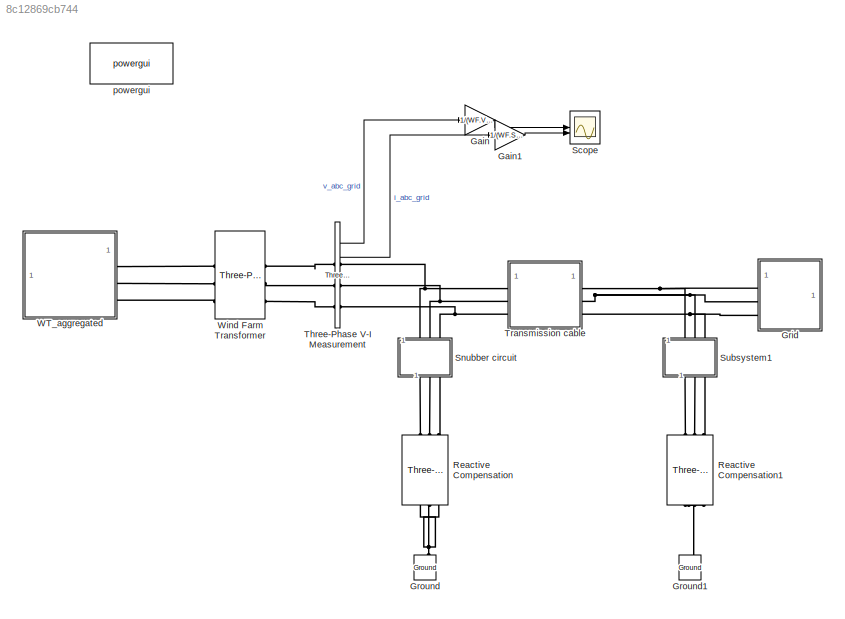
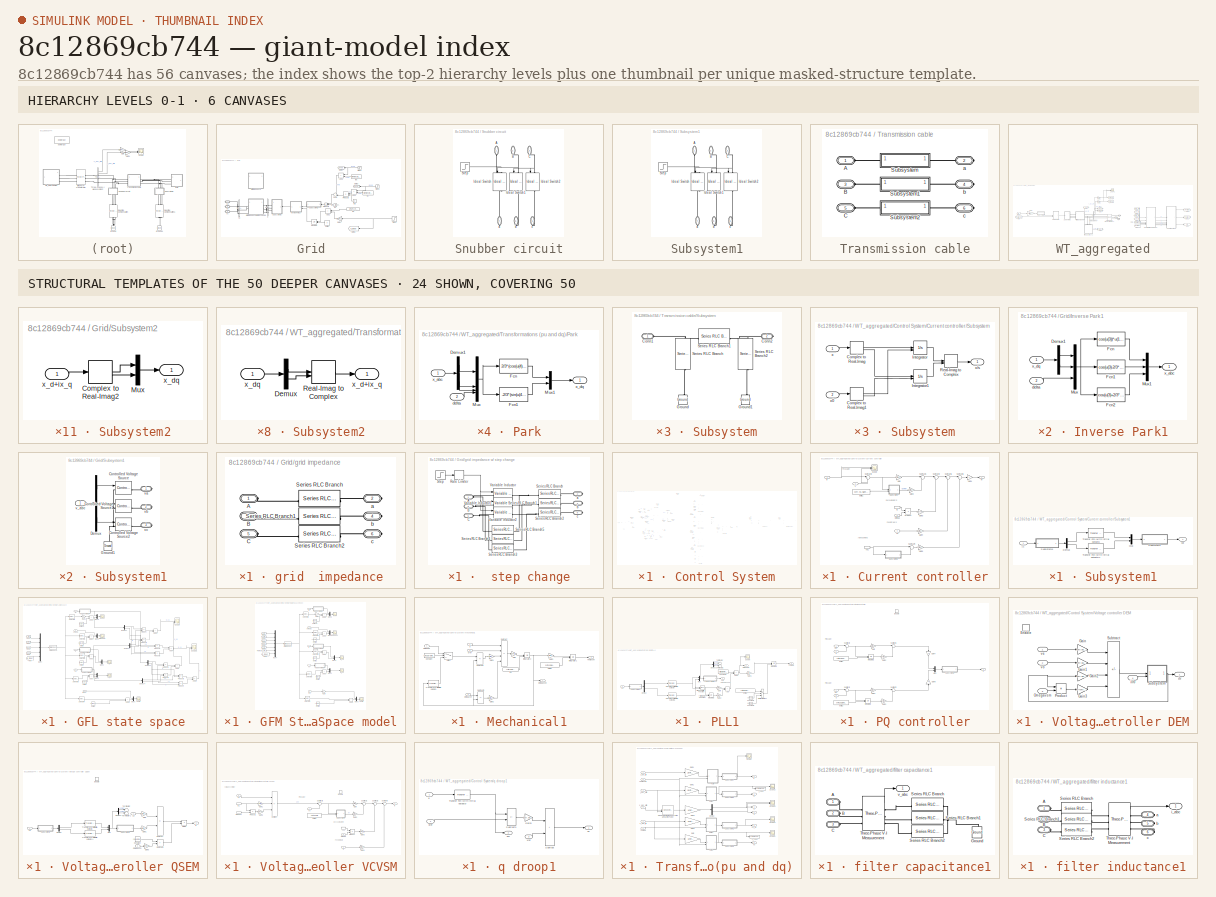
[diagram: thumbnail index - top-2 hierarchy levels (6 canvases) + 24 structural-template representatives of the remaining 50 canvases]
MODEL slx_8c12869cb744
KIND model
CONFIG AbsTol = auto
CONFIG EnableMultiTasking = off
CONFIG FixedStep = auto
CONFIG MaxStep = auto
CONFIG MinStep = auto
CONFIG RelTol = 1e-3
CONFIG SampleTimeConstraint = Unconstrained
CONFIG SolverName = VariableStepAuto
CONFIG StartTime = 0
CONFIG StopTime = 1
BLOCK [Gain] Gain
  Gain = 1/(WF.V_trans*sqrt(2/3))
BLOCK [Gain] Gain1
  Gain = 1/(WF.Sb_WF/(WF.V_trans*sqrt(3/2)))
BLOCK [SubSystem] Grid
  NameLocation = top
BLOCK [Reference] Grid/1  REF=spsThreePhaseVIMeasurementLib/Three-Phase
V-I Measurement
  SourceBlock = spsThreePhaseVIMeasurementLib/Three-Phase\nV-I Measurement
  SourceType = Three-Phase VI Measurement
BLOCK [Reference] Grid/40  REF=spsThreePhaseVIMeasurementLib/Three-Phase
V-I Measurement
  SourceBlock = spsThreePhaseVIMeasurementLib/Three-Phase\nV-I Measurement
  SourceType = Three-Phase VI Measurement
BLOCK [Sum] Grid/Add2
  IconShape = rectangular
BLOCK [Sum] Grid/Add4
  IconShape = rectangular
  NameLocation = top
BLOCK [Sum] Grid/Add5
  IconShape = rectangular
  NameLocation = top
BLOCK [Gain] Grid/Gain1
  Gain = WF.WT.cvtr_agg.pu.Omegab
BLOCK [Goto] Grid/Goto1
  Commented = on
  GotoTag = d_input
  NameLocation = top
  TagVisibility = global
BLOCK [Goto] Grid/Goto3
  Commented = on
  GotoTag = dvnq
  NameLocation = top
  TagVisibility = global
BLOCK [Goto] Grid/Goto4
  Commented = on
  GotoTag = dvnd
  NameLocation = top
  TagVisibility = global
BLOCK [Integrator] Grid/Integrator2
  InitialConditionSource = external
BLOCK [SubSystem] Grid/Inverse Park1
BLOCK [Demux] Grid/Inverse Park1/Demux1
  Outputs = 2
BLOCK [Fcn] Grid/Inverse Park1/Fcn
  Expr = cos(u(3))*u(1)-sin(u(3))*u(2)
BLOCK [Fcn] Grid/Inverse Park1/Fcn1
  Expr = cos(u(3)-2/3*pi)*u(1)-sin(u(3)-2/3*pi)*u(2)
BLOCK [Fcn] Grid/Inverse Park1/Fcn2
  Expr = cos(u(3)+2/3*pi)*u(1)-sin(u(3)+2/3*pi)*u(2)
BLOCK [Mux] Grid/Inverse Park1/Mux
  DisplayOption = bar
  Inputs = 3
BLOCK [Mux] Grid/Inverse Park1/Mux1
  DisplayOption = bar
  Inputs = 3
BLOCK [Inport] Grid/Inverse Park1/delta
  Port = 2
BLOCK [Outport] Grid/Inverse Park1/x_abc
BLOCK [Inport] Grid/Inverse Park1/x_dq
BLOCK [Product] Grid/Product2
  NameLocation = top
BLOCK [Product] Grid/Product3
  NameLocation = top
BLOCK [Step] Grid/Step1
  After = 1e-4
  Commented = on
  NameLocation = top
  SampleTime = 0
  Time = 0.1
BLOCK [Step] Grid/Step2
  After = 0.01
  Commented = on
  NameLocation = top
  SampleTime = 0
  Time = 0.1
BLOCK [Step] Grid/Step3
  After = 0.01
  Commented = on
  NameLocation = top
  SampleTime = 0
  Time = 0.1
BLOCK [SubSystem] Grid/Subsystem1
BLOCK [Reference] Grid/Subsystem1/Controlled Voltage Source  REF=spsControlledVoltageSourceLib/Controlled Voltage Source
  SourceBlock = spsControlledVoltageSourceLib/Controlled Voltage Source
  SourceType = Controlled Voltage Source
BLOCK [Reference] Grid/Subsystem1/Controlled Voltage Source1  REF=spsControlledVoltageSourceLib/Controlled Voltage Source
  SourceBlock = spsControlledVoltageSourceLib/Controlled Voltage Source
  SourceType = Controlled Voltage Source
BLOCK [Reference] Grid/Subsystem1/Controlled Voltage Source2  REF=spsControlledVoltageSourceLib/Controlled Voltage Source
  SourceBlock = spsControlledVoltageSourceLib/Controlled Voltage Source
  SourceType = Controlled Voltage Source
BLOCK [Demux] Grid/Subsystem1/Demux
  Outputs = 3
BLOCK [Reference] Grid/Subsystem1/Ground1  REF=spsGroundLib/Ground
  NameLocation = right
  SourceBlock = spsGroundLib/Ground
  SourceType = Ground
BLOCK [Inport] Grid/Subsystem1/v_abc
BLOCK [PMIOPort] Grid/Subsystem1/va
  Side = Right
BLOCK [PMIOPort] Grid/Subsystem1/vb
  Port = 2
  Side = Right
BLOCK [PMIOPort] Grid/Subsystem1/vc
  Port = 3
  Side = Right
BLOCK [SubSystem] Grid/Subsystem2
BLOCK [ComplexToRealImag] Grid/Subsystem2/Complex to Real-Imag2
BLOCK [Mux] Grid/Subsystem2/Mux
  DisplayOption = bar
  Inputs = 2
BLOCK [Inport] Grid/Subsystem2/x_d+ix_q
BLOCK [Outport] Grid/Subsystem2/x_dq
BLOCK [Sum] Grid/Sum2
  Inputs = ++|
  NameLocation = top
BLOCK [Constant] Grid/delta1
  Value = 0
BLOCK [SubSystem] Grid/grid  impedance
  Commented = on
BLOCK [PMIOPort] Grid/grid  impedance/A
  Side = Left
BLOCK [PMIOPort] Grid/grid  impedance/B
  Port = 3
  Side = Left
BLOCK [PMIOPort] Grid/grid  impedance/C
  Port = 5
  Side = Left
BLOCK [Reference] Grid/grid  impedance/Series RLC Branch  REF=spsSeriesRLCBranchLib/Series RLC Branch
  SourceBlock = spsSeriesRLCBranchLib/Series RLC Branch
  SourceType = Series RLC Branch
BLOCK [Reference] Grid/grid  impedance/Series RLC Branch1  REF=spsSeriesRLCBranchLib/Series RLC Branch
  SourceBlock = spsSeriesRLCBranchLib/Series RLC Branch
  SourceType = Series RLC Branch
BLOCK [Reference] Grid/grid  impedance/Series RLC Branch2  REF=spsSeriesRLCBranchLib/Series RLC Branch
  SourceBlock = spsSeriesRLCBranchLib/Series RLC Branch
  SourceType = Series RLC Branch
BLOCK [PMIOPort] Grid/grid  impedance/a
  Port = 2
  Side = Right
BLOCK [PMIOPort] Grid/grid  impedance/b
  Port = 4
  Side = Right
BLOCK [PMIOPort] Grid/grid  impedance/c
  Port = 6
  Side = Right
BLOCK [SubSystem] Grid/grid impedance w// step change
BLOCK [PMIOPort] Grid/grid impedance w// step change/A
  Side = Left
BLOCK [PMIOPort] Grid/grid impedance w// step change/B
  Port = 3
  Side = Left
BLOCK [PMIOPort] Grid/grid impedance w// step change/C
  Port = 5
  Side = Left
BLOCK [RateLimiter] Grid/grid impedance w// step change/Rate Limiter
  SampleTimeMode = inherited
BLOCK [Reference] Grid/grid impedance w// step change/Series RLC Branch  REF=spsSeriesRLCBranchLib/Series RLC Branch
  SourceBlock = spsSeriesRLCBranchLib/Series RLC Branch
  SourceType = Series RLC Branch
BLOCK [Reference] Grid/grid impedance w// step change/Series RLC Branch1  REF=spsSeriesRLCBranchLib/Series RLC Branch
  SourceBlock = spsSeriesRLCBranchLib/Series RLC Branch
  SourceType = Series RLC Branch
BLOCK [Reference] Grid/grid impedance w// step change/Series RLC Branch2  REF=spsSeriesRLCBranchLib/Series RLC Branch
  SourceBlock = spsSeriesRLCBranchLib/Series RLC Branch
  SourceType = Series RLC Branch
BLOCK [Reference] Grid/grid impedance w// step change/Series RLC Branch3  REF=spsSeriesRLCBranchLib/Series RLC Branch
  SourceBlock = spsSeriesRLCBranchLib/Series RLC Branch
  SourceType = Series RLC Branch
BLOCK [Reference] Grid/grid impedance w// step change/Series RLC Branch4  REF=spsSeriesRLCBranchLib/Series RLC Branch
  SourceBlock = spsSeriesRLCBranchLib/Series RLC Branch
  SourceType = Series RLC Branch
BLOCK [Reference] Grid/grid impedance w// step change/Series RLC Branch5  REF=spsSeriesRLCBranchLib/Series RLC Branch
  SourceBlock = spsSeriesRLCBranchLib/Series RLC Branch
  SourceType = Series RLC Branch
BLOCK [Step] Grid/grid impedance w// step change/Step
  After = WF.Trans.lg*(WF.Imp.Z_b_G/(2*pi*WF.f1))
  Before = WF.Trans.lg*0.5*(WF.Imp.Z_b_G/(2*pi*WF.f1))
  SampleTime = 0
  Time = 0.2
BLOCK [Reference] Grid/grid impedance w// step change/Variable Inductor  REF=spsVariableInductorLib/Variable Inductor
  LibrarySourceBlock = sps_lib/Passives/Variable Inductor
  SourceBlock = spsVariableInductorLib/Variable Inductor
  SourceType = Variable Inductor
BLOCK [Reference] Grid/grid impedance w// step change/Variable Inductor1  REF=spsVariableInductorLib/Variable Inductor
  LibrarySourceBlock = sps_lib/Passives/Variable Inductor
  SourceBlock = spsVariableInductorLib/Variable Inductor
  SourceType = Variable Inductor
BLOCK [Reference] Grid/grid impedance w// step change/Variable Inductor2  REF=spsVariableInductorLib/Variable Inductor
  LibrarySourceBlock = sps_lib/Passives/Variable Inductor
  SourceBlock = spsVariableInductorLib/Variable Inductor
  SourceType = Variable Inductor
BLOCK [PMIOPort] Grid/grid impedance w// step change/a
  Port = 2
  Side = Right
BLOCK [PMIOPort] Grid/grid impedance w// step change/b
  Port = 4
  Side = Right
BLOCK [PMIOPort] Grid/grid impedance w// step change/c
  Port = 6
  Side = Right
BLOCK [Constant] Grid/io5
  Value = WF.WT.cvtr_agg.ss.vnd0
BLOCK [Constant] Grid/io6
  Value = WF.V_trans*sqrt(2/3)
BLOCK [Constant] Grid/io7
  Value = WF.WT.cvtr_agg.ss.vnq0
BLOCK [Constant] Grid/io8
  Value = 1i
BLOCK [PMIOPort] Grid/va
  Side = Right
BLOCK [PMIOPort] Grid/vb
  Port = 2
  Side = Right
BLOCK [PMIOPort] Grid/vc
  Port = 3
  Side = Right
BLOCK [Constant] Grid/w1
  Value = WF.WT.cvtr_agg.parameters.Omegag*WF.WT.cvtr_agg.pu.Omegab
BLOCK [Reference] Ground  REF=spsGroundLib/Ground
  LibrarySourceBlock = sps_lib/Utilities/Ground
  NameLocation = right
  SourceBlock = spsGroundLib/Ground
  SourceType = Ground
BLOCK [Reference] Ground1  REF=spsGroundLib/Ground
  LibrarySourceBlock = sps_lib/Utilities/Ground
  NameLocation = right
  SourceBlock = spsGroundLib/Ground
  SourceType = Ground
BLOCK [Reference] Reactive Compensation  REF=spsThreePhaseSeriesRLCBranchLib/Three-Phase
Series RLC Branch
  AttributesFormatString = \n
  LibrarySourceBlock = sps_lib/Passives/Three-Phase\nSeries RLC Branch
  NameLocation = right
  SourceBlock = spsThreePhaseSeriesRLCBranchLib/Three-Phase\nSeries RLC Branch
  SourceType = Three-Phase Series RLC Branch
BLOCK [Reference] Reactive Compensation1  REF=spsThreePhaseSeriesRLCBranchLib/Three-Phase
Series RLC Branch
  AttributesFormatString = \n
  LibrarySourceBlock = sps_lib/Passives/Three-Phase\nSeries RLC Branch
  NameLocation = right
  SourceBlock = spsThreePhaseSeriesRLCBranchLib/Three-Phase\nSeries RLC Branch
  SourceType = Three-Phase Series RLC Branch
BLOCK [Scope] Scope
  Floating = off
  NumInputPorts = 2
  ScopeSpecificationString = Simulink.scopes.TimeScopeBlockCfg('CurrentConfiguration', extmgr.ConfigurationSet(extmgr.Configuration('Core','General UI',true,'FigureColor',[1 1 1]),extmgr.Configuration('Core','Source UI',true),extmgr.Configuration('Sources','WiredSimulink',true,'DataLoggingVariableName','ScopeData1'),extmgr.Configuration('Visuals','Time Domain',true,'SerializedDisplays',{struct('MinYLimReal','-1.76808','MaxYLi...<+2845ch>
BLOCK [SubSystem] Snubber circuit
  NameLocation = left
BLOCK [PMIOPort] Snubber circuit/  a
  NameLocation = left
  Port = 4
  Side = Right
BLOCK [PMIOPort] Snubber circuit/  b
  NameLocation = left
  Port = 5
  Side = Right
BLOCK [PMIOPort] Snubber circuit/  c
  NameLocation = left
  Port = 6
  Side = Right
BLOCK [PMIOPort] Snubber circuit/ A
  NameLocation = left
  Side = Left
BLOCK [PMIOPort] Snubber circuit/ B
  NameLocation = left
  Port = 2
  Side = Left
BLOCK [PMIOPort] Snubber circuit/ C
  NameLocation = left
  Port = 3
  Side = Left
BLOCK [Reference] Snubber circuit/Ideal Switch  REF=spsIdealSwitchLib/Ideal Switch
  LibrarySourceBlock = sps_lib/Power Electronics/Ideal Switch
  NameLocation = left
  SourceBlock = spsIdealSwitchLib/Ideal Switch
  SourceType = Ideal Switch
BLOCK [Reference] Snubber circuit/Ideal Switch1  REF=spsIdealSwitchLib/Ideal Switch
  LibrarySourceBlock = sps_lib/Power Electronics/Ideal Switch
  NameLocation = left
  SourceBlock = spsIdealSwitchLib/Ideal Switch
  SourceType = Ideal Switch
BLOCK [Reference] Snubber circuit/Ideal Switch2  REF=spsIdealSwitchLib/Ideal Switch
  LibrarySourceBlock = sps_lib/Power Electronics/Ideal Switch
  NameLocation = left
  SourceBlock = spsIdealSwitchLib/Ideal Switch
  SourceType = Ideal Switch
BLOCK [Step] Snubber circuit/Step
  SampleTime = 0
  Time = 0.5
BLOCK [SubSystem] Subsystem1
  NameLocation = left
BLOCK [PMIOPort] Subsystem1/  a
  NameLocation = left
  Port = 4
  Side = Right
BLOCK [PMIOPort] Subsystem1/  b
  NameLocation = left
  Port = 5
  Side = Right
BLOCK [PMIOPort] Subsystem1/  c
  NameLocation = left
  Port = 6
  Side = Right
BLOCK [PMIOPort] Subsystem1/ A
  NameLocation = left
  Side = Left
BLOCK [PMIOPort] Subsystem1/ B
  NameLocation = left
  Port = 2
  Side = Left
BLOCK [PMIOPort] Subsystem1/ C
  NameLocation = left
  Port = 3
  Side = Left
BLOCK [Reference] Subsystem1/Ideal Switch  REF=spsIdealSwitchLib/Ideal Switch
  LibrarySourceBlock = sps_lib/Power Electronics/Ideal Switch
  NameLocation = left
  SourceBlock = spsIdealSwitchLib/Ideal Switch
  SourceType = Ideal Switch
BLOCK [Reference] Subsystem1/Ideal Switch1  REF=spsIdealSwitchLib/Ideal Switch
  LibrarySourceBlock = sps_lib/Power Electronics/Ideal Switch
  NameLocation = left
  SourceBlock = spsIdealSwitchLib/Ideal Switch
  SourceType = Ideal Switch
BLOCK [Reference] Subsystem1/Ideal Switch2  REF=spsIdealSwitchLib/Ideal Switch
  LibrarySourceBlock = sps_lib/Power Electronics/Ideal Switch
  NameLocation = left
  SourceBlock = spsIdealSwitchLib/Ideal Switch
  SourceType = Ideal Switch
BLOCK [Step] Subsystem1/Step
  SampleTime = 0
  Time = 0.5
BLOCK [Reference] Three-Phase V-I Measurement  REF=spsThreePhaseVIMeasurementLib/Three-Phase
V-I Measurement
  SourceBlock = spsThreePhaseVIMeasurementLib/Three-Phase\nV-I Measurement
  SourceType = Three-Phase VI Measurement
BLOCK [SubSystem] Transmission cable
BLOCK [PMIOPort] Transmission cable/A
  Side = Left
BLOCK [PMIOPort] Transmission cable/B
  Port = 3
  Side = Left
BLOCK [PMIOPort] Transmission cable/C
  Port = 5
  Side = Left
BLOCK [SubSystem] Transmission cable/Subsystem
BLOCK [PMIOPort] Transmission cable/Subsystem/Conn1
  Side = Left
BLOCK [PMIOPort] Transmission cable/Subsystem/Conn2
  NameLocation = top
  Port = 2
  Side = Right
BLOCK [Reference] Transmission cable/Subsystem/Ground  REF=spsGroundLib/Ground
  LibrarySourceBlock = sps_lib/Utilities/Ground
  NameLocation = right
  SourceBlock = spsGroundLib/Ground
  SourceType = Ground
BLOCK [Reference] Transmission cable/Subsystem/Ground1  REF=spsGroundLib/Ground
  LibrarySourceBlock = sps_lib/Utilities/Ground
  NameLocation = right
  SourceBlock = spsGroundLib/Ground
  SourceType = Ground
BLOCK [Reference] Transmission cable/Subsystem/Series RLC Branch  REF=spsSeriesRLCBranchLib/Series RLC Branch
  LibrarySourceBlock = sps_lib/Passives/Series RLC Branch
  NameLocation = left
  SourceBlock = spsSeriesRLCBranchLib/Series RLC Branch
  SourceType = Series RLC Branch
BLOCK [Reference] Transmission cable/Subsystem/Series RLC Branch1  REF=spsSeriesRLCBranchLib/Series RLC Branch
  LibrarySourceBlock = sps_lib/Passives/Series RLC Branch
  NameLocation = top
  SourceBlock = spsSeriesRLCBranchLib/Series RLC Branch
  SourceType = Series RLC Branch
BLOCK [Reference] Transmission cable/Subsystem/Series RLC Branch2  REF=spsSeriesRLCBranchLib/Series RLC Branch
  LibrarySourceBlock = sps_lib/Passives/Series RLC Branch
  NameLocation = left
  SourceBlock = spsSeriesRLCBranchLib/Series RLC Branch
  SourceType = Series RLC Branch
BLOCK [SubSystem] Transmission cable/Subsystem1
BLOCK [PMIOPort] Transmission cable/Subsystem1/Conn1
  Side = Left
BLOCK [PMIOPort] Transmission cable/Subsystem1/Conn2
  NameLocation = top
  Port = 2
  Side = Right
BLOCK [Reference] Transmission cable/Subsystem1/Ground  REF=spsGroundLib/Ground
  LibrarySourceBlock = sps_lib/Utilities/Ground
  NameLocation = right
  SourceBlock = spsGroundLib/Ground
  SourceType = Ground
BLOCK [Reference] Transmission cable/Subsystem1/Ground1  REF=spsGroundLib/Ground
  LibrarySourceBlock = sps_lib/Utilities/Ground
  NameLocation = right
  SourceBlock = spsGroundLib/Ground
  SourceType = Ground
BLOCK [Reference] Transmission cable/Subsystem1/Series RLC Branch  REF=spsSeriesRLCBranchLib/Series RLC Branch
  LibrarySourceBlock = sps_lib/Passives/Series RLC Branch
  NameLocation = left
  SourceBlock = spsSeriesRLCBranchLib/Series RLC Branch
  SourceType = Series RLC Branch
BLOCK [Reference] Transmission cable/Subsystem1/Series RLC Branch1  REF=spsSeriesRLCBranchLib/Series RLC Branch
  LibrarySourceBlock = sps_lib/Passives/Series RLC Branch
  NameLocation = top
  SourceBlock = spsSeriesRLCBranchLib/Series RLC Branch
  SourceType = Series RLC Branch
BLOCK [Reference] Transmission cable/Subsystem1/Series RLC Branch2  REF=spsSeriesRLCBranchLib/Series RLC Branch
  LibrarySourceBlock = sps_lib/Passives/Series RLC Branch
  NameLocation = left
  SourceBlock = spsSeriesRLCBranchLib/Series RLC Branch
  SourceType = Series RLC Branch
BLOCK [SubSystem] Transmission cable/Subsystem2
BLOCK [PMIOPort] Transmission cable/Subsystem2/Conn1
  Side = Left
BLOCK [PMIOPort] Transmission cable/Subsystem2/Conn2
  NameLocation = top
  Port = 2
  Side = Right
BLOCK [Reference] Transmission cable/Subsystem2/Ground  REF=spsGroundLib/Ground
  LibrarySourceBlock = sps_lib/Utilities/Ground
  NameLocation = right
  SourceBlock = spsGroundLib/Ground
  SourceType = Ground
BLOCK [Reference] Transmission cable/Subsystem2/Ground1  REF=spsGroundLib/Ground
  LibrarySourceBlock = sps_lib/Utilities/Ground
  NameLocation = right
  SourceBlock = spsGroundLib/Ground
  SourceType = Ground
BLOCK [Reference] Transmission cable/Subsystem2/Series RLC Branch  REF=spsSeriesRLCBranchLib/Series RLC Branch
  LibrarySourceBlock = sps_lib/Passives/Series RLC Branch
  NameLocation = left
  SourceBlock = spsSeriesRLCBranchLib/Series RLC Branch
  SourceType = Series RLC Branch
BLOCK [Reference] Transmission cable/Subsystem2/Series RLC Branch1  REF=spsSeriesRLCBranchLib/Series RLC Branch
  LibrarySourceBlock = sps_lib/Passives/Series RLC Branch
  NameLocation = top
  SourceBlock = spsSeriesRLCBranchLib/Series RLC Branch
  SourceType = Series RLC Branch
BLOCK [Reference] Transmission cable/Subsystem2/Series RLC Branch2  REF=spsSeriesRLCBranchLib/Series RLC Branch
  LibrarySourceBlock = sps_lib/Passives/Series RLC Branch
  NameLocation = left
  SourceBlock = spsSeriesRLCBranchLib/Series RLC Branch
  SourceType = Series RLC Branch
BLOCK [PMIOPort] Transmission cable/a
  Port = 2
  Side = Right
BLOCK [PMIOPort] Transmission cable/b
  Port = 4
  Side = Right
BLOCK [PMIOPort] Transmission cable/c
  Port = 6
  Side = Right
BLOCK [SubSystem] WT_aggregated
  NameLocation = left
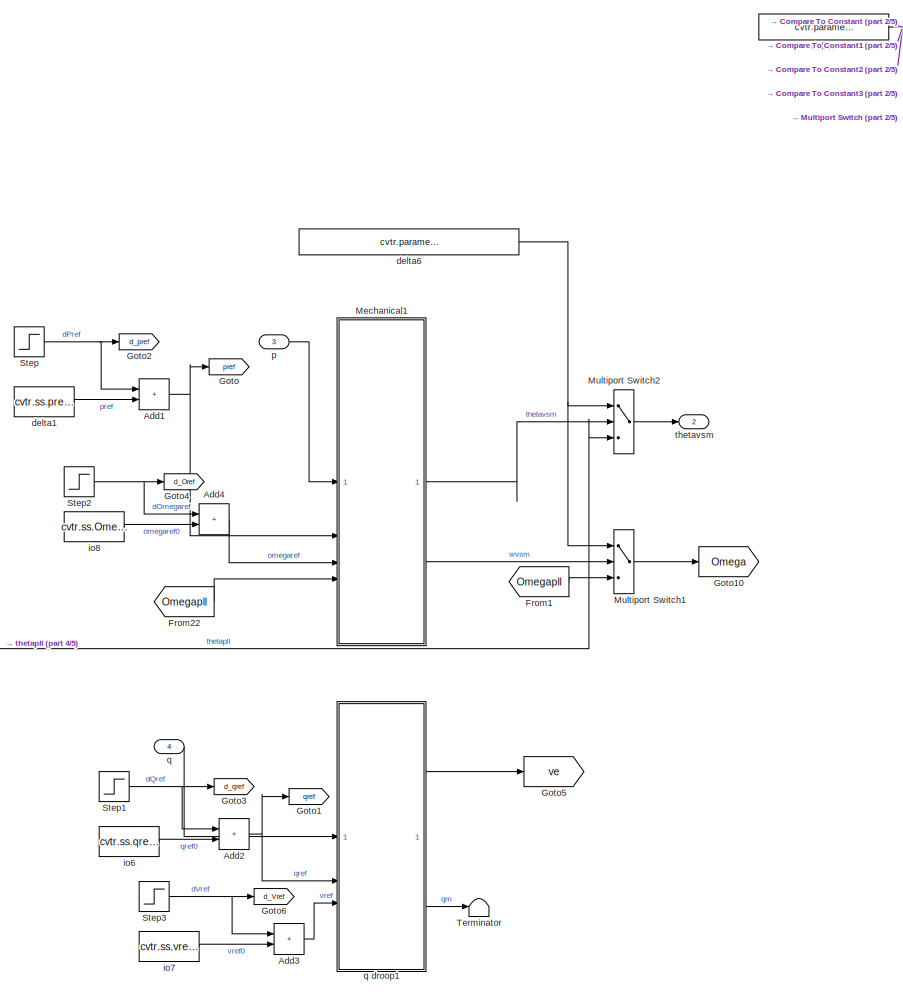
[diagram: WT_aggregated/Control System - part 1/5, middle left region]
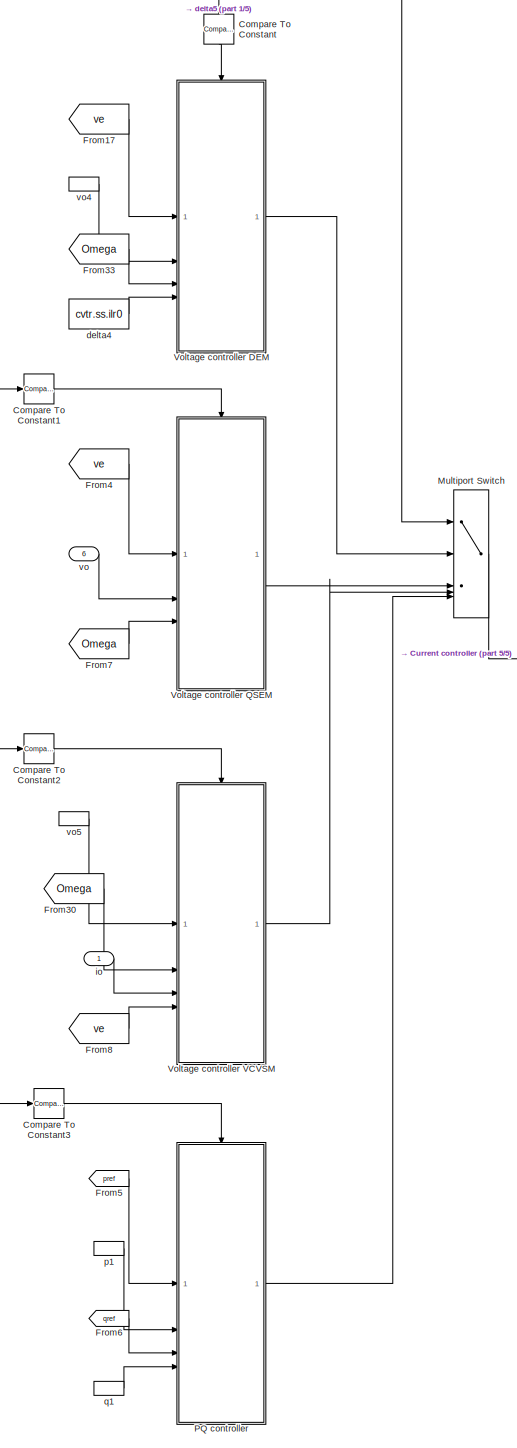
[diagram: WT_aggregated/Control System - part 2/5, center side, full height]
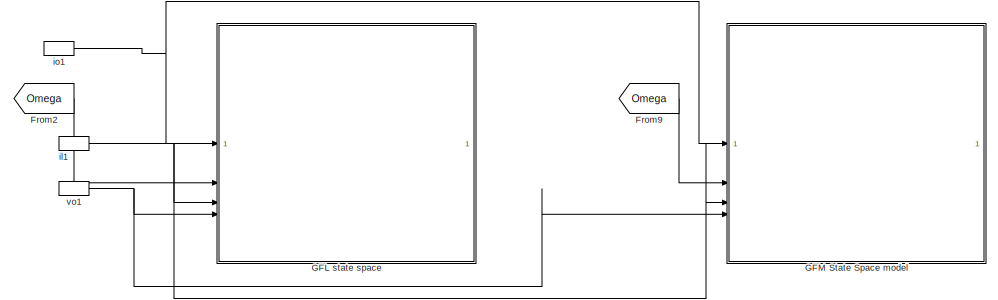
[diagram: WT_aggregated/Control System - part 3/5, middle right region]
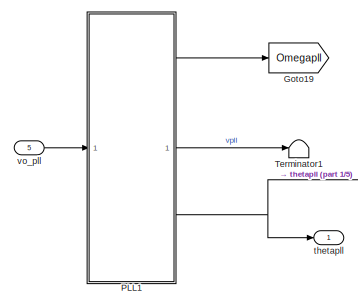
[diagram: WT_aggregated/Control System - part 4/5, middle left region]
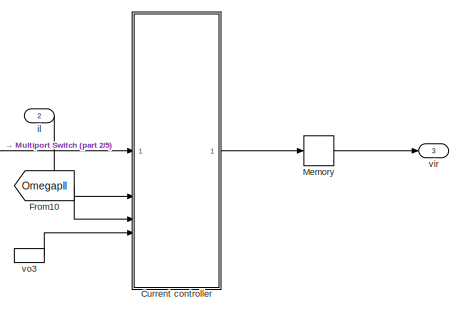
[diagram: WT_aggregated/Control System - part 5/5, central region]
BLOCK [SubSystem] WT_aggregated/Control System
BLOCK [Sum] WT_aggregated/Control System/Add1
  IconShape = rectangular
BLOCK [Sum] WT_aggregated/Control System/Add2
  IconShape = rectangular
BLOCK [Sum] WT_aggregated/Control System/Add3
  IconShape = rectangular
BLOCK [Sum] WT_aggregated/Control System/Add4
  IconShape = rectangular
BLOCK [Reference] WT_aggregated/Control System/Compare To Constant  REF=simulink/Logic and Bit
Operations/Compare
To Constant
  NameLocation = left
  SourceBlock = simulink/Logic and Bit\nOperations/Compare\nTo Constant
  SourceType = Compare To Constant
BLOCK [Reference] WT_aggregated/Control System/Compare To Constant1  REF=simulink/Logic and Bit
Operations/Compare
To Constant
  SourceBlock = simulink/Logic and Bit\nOperations/Compare\nTo Constant
  SourceType = Compare To Constant
BLOCK [Reference] WT_aggregated/Control System/Compare To Constant2  REF=simulink/Logic and Bit
Operations/Compare
To Constant
  SourceBlock = simulink/Logic and Bit\nOperations/Compare\nTo Constant
  SourceType = Compare To Constant
BLOCK [Reference] WT_aggregated/Control System/Compare To Constant3  REF=simulink/Logic and Bit
Operations/Compare
To Constant
  SourceBlock = simulink/Logic and Bit\nOperations/Compare\nTo Constant
  SourceType = Compare To Constant
BLOCK [SubSystem] WT_aggregated/Control System/Current controller
BLOCK [Gain] WT_aggregated/Control System/Current controller/Gain
  Gain = cvtr.parameters.kpc
BLOCK [Gain] WT_aggregated/Control System/Current controller/Gain1
BLOCK [Gain] WT_aggregated/Control System/Current controller/Gain2
  Gain = cvtr.parameters.kic
BLOCK [Gain] WT_aggregated/Control System/Current controller/Gain3
  Gain = 1i*cvtr.parameters.lf
BLOCK [Gain] WT_aggregated/Control System/Current controller/Gain4
  Gain = cvtr.parameters.kffv
BLOCK [Gain] WT_aggregated/Control System/Current controller/Gain5
  Gain = cvtr.parameters.kad
BLOCK [Inport] WT_aggregated/Control System/Current controller/Omega
  Port = 3
BLOCK [Product] WT_aggregated/Control System/Current controller/Product
  RndMeth = Zero
BLOCK [Scope] WT_aggregated/Control System/Current controller/Scope
  Commented = on
  Floating = off
  NumInputPorts = 2
  ScopeSpecificationString = Simulink.scopes.TimeScopeBlockCfg('CurrentConfiguration', extmgr.ConfigurationSet(extmgr.Configuration('Core','General UI',true),extmgr.Configuration('Core','Source UI',true),extmgr.Configuration('Sources','WiredSimulink',true,'DataLoggingVariableName','ScopeData5'),extmgr.Configuration('Visuals','Time Domain',true,'SerializedDisplays',{struct('MinYLimReal','-0.81284','MaxYLimReal','1.77353','YLab...<+1687ch>
BLOCK [SubSystem] WT_aggregated/Control System/Current controller/Subsystem
BLOCK [ComplexToRealImag] WT_aggregated/Control System/Current controller/Subsystem/Complex to Real-Imag
BLOCK [ComplexToRealImag] WT_aggregated/Control System/Current controller/Subsystem/Complex to Real-Imag1
BLOCK [Integrator] WT_aggregated/Control System/Current controller/Subsystem/Integrator
  AbsoluteTolerance = 1e-10
  InitialConditionSource = external
BLOCK [Integrator] WT_aggregated/Control System/Current controller/Subsystem/Integrator1
  AbsoluteTolerance = 1e-15
  InitialConditionSource = external
BLOCK [RealImagToComplex] WT_aggregated/Control System/Current controller/Subsystem/Real-Imag to Complex
BLOCK [Inport] WT_aggregated/Control System/Current controller/Subsystem/x
BLOCK [Outport] WT_aggregated/Control System/Current controller/Subsystem/x//s
BLOCK [Inport] WT_aggregated/Control System/Current controller/Subsystem/x0
  Port = 2
BLOCK [SubSystem] WT_aggregated/Control System/Current controller/Subsystem1
BLOCK [Demux] WT_aggregated/Control System/Current controller/Subsystem1/Demux
  Outputs = 2
BLOCK [Mux] WT_aggregated/Control System/Current controller/Subsystem1/Mux
  DisplayOption = bar
  Inputs = 2
BLOCK [SubSystem] WT_aggregated/Control System/Current controller/Subsystem1/Subsystem3
BLOCK [Demux] WT_aggregated/Control System/Current controller/Subsystem1/Subsystem3/Demux
  Outputs = 2
BLOCK [RealImagToComplex] WT_aggregated/Control System/Current controller/Subsystem1/Subsystem3/Real-Imag to Complex
BLOCK [Outport] WT_aggregated/Control System/Current controller/Subsystem1/Subsystem3/x_d+ix_q
BLOCK [Inport] WT_aggregated/Control System/Current controller/Subsystem1/Subsystem3/x_dq
BLOCK [SubSystem] WT_aggregated/Control System/Current controller/Subsystem1/Subsystem6
BLOCK [ComplexToRealImag] WT_aggregated/Control System/Current controller/Subsystem1/Subsystem6/Complex to Real-Imag2
BLOCK [Mux] WT_aggregated/Control System/Current controller/Subsystem1/Subsystem6/Mux
  DisplayOption = bar
  Inputs = 2
BLOCK [Inport] WT_aggregated/Control System/Current controller/Subsystem1/Subsystem6/x_d+ix_q
BLOCK [Outport] WT_aggregated/Control System/Current controller/Subsystem1/Subsystem6/x_dq
BLOCK [Reference] WT_aggregated/Control System/Current controller/Subsystem1/Transfer Fcn (with initial outputs)  REF=simulink_extras/Additional
Linear/Transfer Fcn
(with initial outputs)
  SourceBlock = simulink_extras/Additional\nLinear/Transfer Fcn\n(with initial outputs)
  SourceType = Transfer Function with Initial Outputs
BLOCK [Reference] WT_aggregated/Control System/Current controller/Subsystem1/Transfer Fcn (with initial outputs)1  REF=simulink_extras/Additional
Linear/Transfer Fcn
(with initial outputs)
  SourceBlock = simulink_extras/Additional\nLinear/Transfer Fcn\n(with initial outputs)
  SourceType = Transfer Function with Initial Outputs
BLOCK [Inport] WT_aggregated/Control System/Current controller/Subsystem1/in
BLOCK [Outport] WT_aggregated/Control System/Current controller/Subsystem1/out
BLOCK [Sum] WT_aggregated/Control System/Current controller/Subtract1
  Inputs = |++
BLOCK [Sum] WT_aggregated/Control System/Current controller/Subtract2
  Inputs = |++
BLOCK [Sum] WT_aggregated/Control System/Current controller/Subtract3
  Inputs = |+-
BLOCK [Sum] WT_aggregated/Control System/Current controller/Subtract4
  Inputs = |+-
BLOCK [Sum] WT_aggregated/Control System/Current controller/Subtract5
  Inputs = |++
BLOCK [Sum] WT_aggregated/Control System/Current controller/Subtract6
  Inputs = |+-
BLOCK [Constant] WT_aggregated/Control System/Current controller/delta1
  Value = cvtr.ss.Gamma0
BLOCK [Inport] WT_aggregated/Control System/Current controller/il
  Port = 2
BLOCK [InportShadow] WT_aggregated/Control System/Current controller/il1
  Port = 2
BLOCK [Inport] WT_aggregated/Control System/Current controller/ilr
BLOCK [Outport] WT_aggregated/Control System/Current controller/vir
BLOCK [Inport] WT_aggregated/Control System/Current controller/vo
  Port = 4
BLOCK [InportShadow] WT_aggregated/Control System/Current controller/vo1
  Port = 4
BLOCK [From] WT_aggregated/Control System/From1
  GotoTag = Omegapll
BLOCK [From] WT_aggregated/Control System/From10
  GotoTag = Omegapll
BLOCK [From] WT_aggregated/Control System/From17
  GotoTag = ve
BLOCK [From] WT_aggregated/Control System/From2
  GotoTag = Omega
BLOCK [From] WT_aggregated/Control System/From22
  GotoTag = Omegapll
BLOCK [From] WT_aggregated/Control System/From30
  GotoTag = Omega
BLOCK [From] WT_aggregated/Control System/From33
  GotoTag = Omega
BLOCK [From] WT_aggregated/Control System/From4
  GotoTag = ve
BLOCK [From] WT_aggregated/Control System/From5
  GotoTag = pref
BLOCK [From] WT_aggregated/Control System/From6
  GotoTag = qref
BLOCK [From] WT_aggregated/Control System/From7
  GotoTag = Omega
BLOCK [From] WT_aggregated/Control System/From8
  GotoTag = ve
BLOCK [From] WT_aggregated/Control System/From9
  GotoTag = Omega
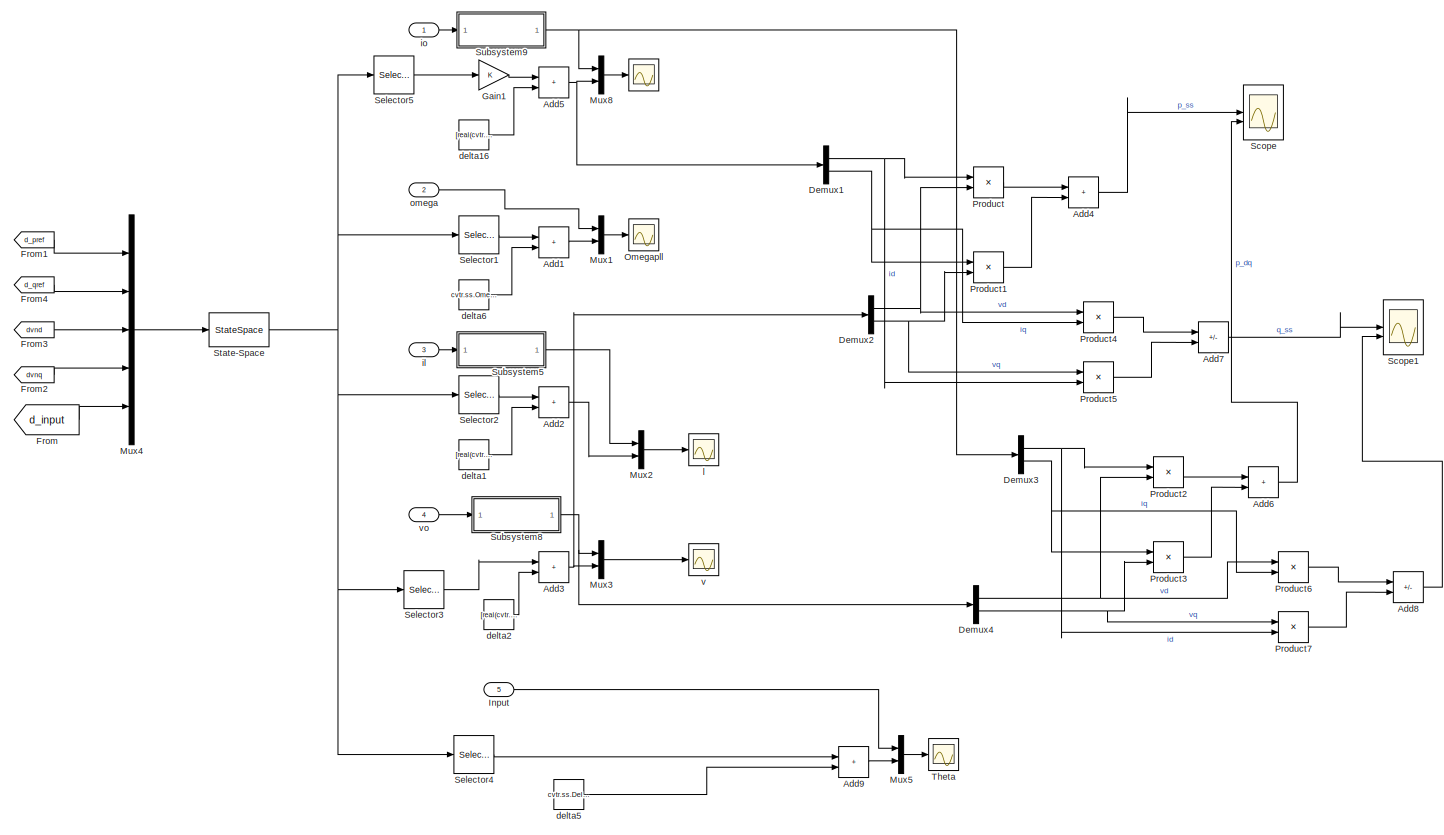
[diagram: WT_aggregated/Control System/GFL state space - part 1/2, most of the canvas]
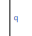
[diagram: WT_aggregated/Control System/GFL state space - part 2/2, middle right region]
BLOCK [SubSystem] WT_aggregated/Control System/GFL state space
  Commented = on
BLOCK [Scope] WT_aggregated/Control System/GFL state space/ 
  Floating = off
  NumInputPorts = 1
  ScopeSpecificationString = Simulink.scopes.TimeScopeBlockCfg('CurrentConfiguration', extmgr.ConfigurationSet(extmgr.Configuration('Core','General UI',true,'FigureColor',[1 1 1]),extmgr.Configuration('Core','Source UI',true),extmgr.Configuration('Sources','WiredSimulink',true,'DataLoggingVariableName','io','DataLoggingSaveFormat','StructureWithTime','DataLoggingDecimation','1','DataLoggingDecimateData',true),extmgr.Configura...<+2353ch>
BLOCK [Scope] WT_aggregated/Control System/GFL state space/ l
  Floating = off
  NumInputPorts = 1
  ScopeSpecificationString = Simulink.scopes.TimeScopeBlockCfg('CurrentConfiguration', extmgr.ConfigurationSet(extmgr.Configuration('Core','General UI',true),extmgr.Configuration('Core','Source UI',true),extmgr.Configuration('Sources','WiredSimulink',true,'DataLoggingVariableName','ScopeData23','DataLoggingSaveFormat','StructureWithTime','DataLoggingDecimation','1','DataLoggingDecimateData',true),extmgr.Configuration('Visuals...<+1796ch>
BLOCK [Sum] WT_aggregated/Control System/GFL state space/Add1
  IconShape = rectangular
BLOCK [Sum] WT_aggregated/Control System/GFL state space/Add2
  IconShape = rectangular
BLOCK [Sum] WT_aggregated/Control System/GFL state space/Add3
  IconShape = rectangular
BLOCK [Sum] WT_aggregated/Control System/GFL state space/Add4
  IconShape = rectangular
BLOCK [Sum] WT_aggregated/Control System/GFL state space/Add5
  IconShape = rectangular
BLOCK [Sum] WT_aggregated/Control System/GFL state space/Add6
  IconShape = rectangular
BLOCK [Sum] WT_aggregated/Control System/GFL state space/Add7
  IconShape = rectangular
  Inputs = -+
BLOCK [Sum] WT_aggregated/Control System/GFL state space/Add8
  IconShape = rectangular
  Inputs = -+
BLOCK [Sum] WT_aggregated/Control System/GFL state space/Add9
  IconShape = rectangular
BLOCK [Demux] WT_aggregated/Control System/GFL state space/Demux1
  Outputs = 2
BLOCK [Demux] WT_aggregated/Control System/GFL state space/Demux2
  Outputs = 2
BLOCK [Demux] WT_aggregated/Control System/GFL state space/Demux3
  Outputs = 2
BLOCK [Demux] WT_aggregated/Control System/GFL state space/Demux4
  Outputs = 2
BLOCK [From] WT_aggregated/Control System/GFL state space/From
  GotoTag = d_input
  NameLocation = top
  TagVisibility = global
BLOCK [From] WT_aggregated/Control System/GFL state space/From1
  GotoTag = d_pref
BLOCK [From] WT_aggregated/Control System/GFL state space/From2
  GotoTag = dvnq
  NameLocation = top
  TagVisibility = global
BLOCK [From] WT_aggregated/Control System/GFL state space/From3
  GotoTag = dvnd
  NameLocation = top
  TagVisibility = global
BLOCK [From] WT_aggregated/Control System/GFL state space/From4
  GotoTag = d_qref
BLOCK [Gain] WT_aggregated/Control System/GFL state space/Gain1
BLOCK [Inport] WT_aggregated/Control System/GFL state space/Input
  Port = 5
BLOCK [Mux] WT_aggregated/Control System/GFL state space/Mux1
  DisplayOption = bar
  Inputs = 2
BLOCK [Mux] WT_aggregated/Control System/GFL state space/Mux2
  DisplayOption = bar
  Inputs = 2
BLOCK [Mux] WT_aggregated/Control System/GFL state space/Mux3
  DisplayOption = bar
  Inputs = 2
BLOCK [Mux] WT_aggregated/Control System/GFL state space/Mux4
  DisplayOption = bar
  Inputs = 5
BLOCK [Mux] WT_aggregated/Control System/GFL state space/Mux5
  DisplayOption = bar
  Inputs = 2
BLOCK [Mux] WT_aggregated/Control System/GFL state space/Mux8
  DisplayOption = bar
  Inputs = 2
BLOCK [Scope] WT_aggregated/Control System/GFL state space/Omegapll
  Floating = off
  NumInputPorts = 1
  ScopeSpecificationString = Simulink.scopes.TimeScopeBlockCfg('CurrentConfiguration', extmgr.ConfigurationSet(extmgr.Configuration('Core','General UI',true),extmgr.Configuration('Core','Source UI',true),extmgr.Configuration('Sources','WiredSimulink',true,'DataLoggingVariableName','ScopeData9','DataLoggingSaveFormat','StructureWithTime','DataLoggingDecimation','1','DataLoggingDecimateData',true),extmgr.Configuration('Visuals'...<+1897ch>
BLOCK [Product] WT_aggregated/Control System/GFL state space/Product
BLOCK [Product] WT_aggregated/Control System/GFL state space/Product1
BLOCK [Product] WT_aggregated/Control System/GFL state space/Product2
BLOCK [Product] WT_aggregated/Control System/GFL state space/Product3
BLOCK [Product] WT_aggregated/Control System/GFL state space/Product4
BLOCK [Product] WT_aggregated/Control System/GFL state space/Product5
BLOCK [Product] WT_aggregated/Control System/GFL state space/Product6
BLOCK [Product] WT_aggregated/Control System/GFL state space/Product7
BLOCK [Scope] WT_aggregated/Control System/GFL state space/Scope
  Floating = off
  NumInputPorts = 2
  ScopeSpecificationString = Simulink.scopes.TimeScopeBlockCfg('CurrentConfiguration', extmgr.ConfigurationSet(extmgr.Configuration('Core','General UI',true,'FigureColor',[1 1 1]),extmgr.Configuration('Core','Source UI',true),extmgr.Configuration('Sources','WiredSimulink',true,'DataLoggingVariableName','ScopeData2'),extmgr.Configuration('Visuals','Time Domain',true,'SerializedDisplays',{struct('MinYLimReal','0.9611','MaxYLimR...<+1853ch>
BLOCK [Scope] WT_aggregated/Control System/GFL state space/Scope1
  Floating = off
  NumInputPorts = 2
  ScopeSpecificationString = Simulink.scopes.TimeScopeBlockCfg('CurrentConfiguration', extmgr.ConfigurationSet(extmgr.Configuration('Core','General UI',true),extmgr.Configuration('Core','Source UI',true),extmgr.Configuration('Sources','WiredSimulink',true,'DataLoggingVariableName','ScopeData1'),extmgr.Configuration('Visuals','Time Domain',true,'SerializedDisplays',{struct('MinYLimReal','-0.01165','MaxYLimReal','0.02305','YLab...<+1533ch>
BLOCK [Selector] WT_aggregated/Control System/GFL state space/Selector1
  IndexOptions = Index vector (dialog)
  Indices = 15
  OutputSizes = 1
BLOCK [Selector] WT_aggregated/Control System/GFL state space/Selector2
  IndexOptions = Index vector (dialog)
  Indices = [1,2]
  OutputSizes = 1
BLOCK [Selector] WT_aggregated/Control System/GFL state space/Selector3
  IndexOptions = Index vector (dialog)
  Indices = [3,4]
  OutputSizes = 1
BLOCK [Selector] WT_aggregated/Control System/GFL state space/Selector4
  IndexOptions = Index vector (dialog)
  Indices = 16
  OutputSizes = 1
BLOCK [Selector] WT_aggregated/Control System/GFL state space/Selector5
  IndexOptions = Index vector (dialog)
  Indices = [5,6]
  OutputSizes = 1
BLOCK [StateSpace] WT_aggregated/Control System/GFL state space/State-Space
  A = cvtr.A
  B = cvtr.B
  C = eye(size(cvtr.A))
  D = zeros(size(cvtr.B))
  InitialCondition = 0
BLOCK [SubSystem] WT_aggregated/Control System/GFL state space/Subsystem5
BLOCK [ComplexToRealImag] WT_aggregated/Control System/GFL state space/Subsystem5/Complex to Real-Imag2
BLOCK [Mux] WT_aggregated/Control System/GFL state space/Subsystem5/Mux
  DisplayOption = bar
  Inputs = 2
BLOCK [Inport] WT_aggregated/Control System/GFL state space/Subsystem5/x_d+ix_q
BLOCK [Outport] WT_aggregated/Control System/GFL state space/Subsystem5/x_dq
BLOCK [SubSystem] WT_aggregated/Control System/GFL state space/Subsystem8
BLOCK [ComplexToRealImag] WT_aggregated/Control System/GFL state space/Subsystem8/Complex to Real-Imag2
BLOCK [Mux] WT_aggregated/Control System/GFL state space/Subsystem8/Mux
  DisplayOption = bar
  Inputs = 2
BLOCK [Inport] WT_aggregated/Control System/GFL state space/Subsystem8/x_d+ix_q
BLOCK [Outport] WT_aggregated/Control System/GFL state space/Subsystem8/x_dq
BLOCK [SubSystem] WT_aggregated/Control System/GFL state space/Subsystem9
BLOCK [ComplexToRealImag] WT_aggregated/Control System/GFL state space/Subsystem9/Complex to Real-Imag2
BLOCK [Mux] WT_aggregated/Control System/GFL state space/Subsystem9/Mux
  DisplayOption = bar
  Inputs = 2
BLOCK [Inport] WT_aggregated/Control System/GFL state space/Subsystem9/x_d+ix_q
BLOCK [Outport] WT_aggregated/Control System/GFL state space/Subsystem9/x_dq
BLOCK [Scope] WT_aggregated/Control System/GFL state space/Theta
  Floating = off
  NumInputPorts = 1
  ScopeSpecificationString = Simulink.scopes.TimeScopeBlockCfg('CurrentConfiguration', extmgr.ConfigurationSet(extmgr.Configuration('Core','General UI',true),extmgr.Configuration('Core','Source UI',true),extmgr.Configuration('Sources','WiredSimulink',true,'DataLoggingVariableName','ScopeData9','DataLoggingSaveFormat','StructureWithTime','DataLoggingDecimation','1','DataLoggingDecimateData',true),extmgr.Configuration('Visuals'...<+1796ch>
BLOCK [Constant] WT_aggregated/Control System/GFL state space/delta1
  Value = [real(cvtr.ss.il0),imag(cvtr.ss.il0)]
BLOCK [Constant] WT_aggregated/Control System/GFL state space/delta16
  Value = [real(cvtr.ss.io0),imag(cvtr.ss.io0)]
BLOCK [Constant] WT_aggregated/Control System/GFL state space/delta2
  Value = [real(cvtr.ss.vo0),imag(cvtr.ss.vo0)]
BLOCK [Constant] WT_aggregated/Control System/GFL state space/delta5
  Value = cvtr.ss.DeltaThetapll0
BLOCK [Constant] WT_aggregated/Control System/GFL state space/delta6
  Value = cvtr.ss.Omegapll0
BLOCK [Inport] WT_aggregated/Control System/GFL state space/il
  Port = 3
BLOCK [Inport] WT_aggregated/Control System/GFL state space/io
BLOCK [Inport] WT_aggregated/Control System/GFL state space/omega
  Port = 2
BLOCK [Scope] WT_aggregated/Control System/GFL state space/v
  Floating = off
  NumInputPorts = 1
  ScopeSpecificationString = Simulink.scopes.TimeScopeBlockCfg('CurrentConfiguration', extmgr.ConfigurationSet(extmgr.Configuration('Core','General UI',true),extmgr.Configuration('Core','Source UI',true),extmgr.Configuration('Sources','WiredSimulink',true,'DataLoggingVariableName','ScopeData22','DataLoggingSaveFormat','StructureWithTime','DataLoggingDecimation','1','DataLoggingDecimateData',true),extmgr.Configuration('Visuals...<+2261ch>
BLOCK [Inport] WT_aggregated/Control System/GFL state space/vo
  Port = 4
BLOCK [SubSystem] WT_aggregated/Control System/GFM State Space model
  Commented = on
BLOCK [Scope] WT_aggregated/Control System/GFM State Space model/ 
  Floating = off
  NumInputPorts = 1
  ScopeSpecificationString = Simulink.scopes.TimeScopeBlockCfg('CurrentConfiguration', extmgr.ConfigurationSet(extmgr.Configuration('Core','General UI',true),extmgr.Configuration('Core','Source UI',true),extmgr.Configuration('Sources','WiredSimulink',true,'DataLoggingVariableName','io','DataLoggingSaveFormat','StructureWithTime','DataLoggingDecimation','1','DataLoggingDecimateData',true,'DataLogging',true),extmgr.Configuratio...<+1812ch>
BLOCK [Scope] WT_aggregated/Control System/GFM State Space model/ l
  Floating = off
  NumInputPorts = 1
  ScopeSpecificationString = Simulink.scopes.TimeScopeBlockCfg('CurrentConfiguration', extmgr.ConfigurationSet(extmgr.Configuration('Core','General UI',true),extmgr.Configuration('Core','Source UI',true),extmgr.Configuration('Sources','WiredSimulink',true,'DataLoggingVariableName','ScopeData23','DataLoggingSaveFormat','StructureWithTime','DataLoggingDecimation','1','DataLoggingDecimateData',true),extmgr.Configuration('Visuals...<+1796ch>
BLOCK [Sum] WT_aggregated/Control System/GFM State Space model/Add1
  IconShape = rectangular
BLOCK [Sum] WT_aggregated/Control System/GFM State Space model/Add2
  IconShape = rectangular
BLOCK [Sum] WT_aggregated/Control System/GFM State Space model/Add3
  IconShape = rectangular
BLOCK [Sum] WT_aggregated/Control System/GFM State Space model/Add5
  IconShape = rectangular
BLOCK [Sum] WT_aggregated/Control System/GFM State Space model/Add9
  IconShape = rectangular
BLOCK [From] WT_aggregated/Control System/GFM State Space model/From
  GotoTag = d_input
  NameLocation = top
  TagVisibility = global
BLOCK [From] WT_aggregated/Control System/GFM State Space model/From1
  GotoTag = d_pref
BLOCK [From] WT_aggregated/Control System/GFM State Space model/From2
  GotoTag = dvnq
  NameLocation = top
  TagVisibility = global
BLOCK [From] WT_aggregated/Control System/GFM State Space model/From3
  GotoTag = dvnd
  NameLocation = top
  TagVisibility = global
BLOCK [From] WT_aggregated/Control System/GFM State Space model/From4
  GotoTag = d_qref
BLOCK [From] WT_aggregated/Control System/GFM State Space model/From5
  GotoTag = d_Oref
  NameLocation = top
BLOCK [From] WT_aggregated/Control System/GFM State Space model/From6
  GotoTag = d_Vref
  NameLocation = top
BLOCK [Gain] WT_aggregated/Control System/GFM State Space model/Gain
  Gain = -1
BLOCK [Gain] WT_aggregated/Control System/GFM State Space model/Gain1
BLOCK [Inport] WT_aggregated/Control System/GFM State Space model/In5
  Port = 5
BLOCK [Mux] WT_aggregated/Control System/GFM State Space model/Mux1
  DisplayOption = bar
  Inputs = 2
BLOCK [Mux] WT_aggregated/Control System/GFM State Space model/Mux2
  DisplayOption = bar
  Inputs = 2
BLOCK [Mux] WT_aggregated/Control System/GFM State Space model/Mux3
  DisplayOption = bar
  Inputs = 2
BLOCK [Mux] WT_aggregated/Control System/GFM State Space model/Mux4
  DisplayOption = bar
  Inputs = 7
BLOCK [Mux] WT_aggregated/Control System/GFM State Space model/Mux5
  DisplayOption = bar
  Inputs = 2
BLOCK [Mux] WT_aggregated/Control System/GFM State Space model/Mux8
  DisplayOption = bar
  Inputs = 2
BLOCK [Scope] WT_aggregated/Control System/GFM State Space model/Omegapll
  Floating = off
  NumInputPorts = 1
  ScopeSpecificationString = Simulink.scopes.TimeScopeBlockCfg('CurrentConfiguration', extmgr.ConfigurationSet(extmgr.Configuration('Core','General UI',true),extmgr.Configuration('Core','Source UI',true),extmgr.Configuration('Sources','WiredSimulink',true,'DataLoggingVariableName','ScopeData9','DataLoggingSaveFormat','StructureWithTime','DataLoggingDecimation','1','DataLoggingDecimateData',true),extmgr.Configuration('Visuals'...<+1897ch>
BLOCK [Selector] WT_aggregated/Control System/GFM State Space model/Selector1
  IndexOptions = Index vector (dialog)
  Indices = 12
  OutputSizes = 1
BLOCK [Selector] WT_aggregated/Control System/GFM State Space model/Selector2
  IndexOptions = Index vector (dialog)
  Indices = [1,2]
  OutputSizes = 1
BLOCK [Selector] WT_aggregated/Control System/GFM State Space model/Selector3
  IndexOptions = Index vector (dialog)
  Indices = [3,4]
  OutputSizes = 1
BLOCK [Selector] WT_aggregated/Control System/GFM State Space model/Selector4
  IndexOptions = Index vector (dialog)
  Indices = 13
  OutputSizes = 1
BLOCK [Selector] WT_aggregated/Control System/GFM State Space model/Selector5
  IndexOptions = Index vector (dialog)
  Indices = [5,6]
  OutputSizes = 1
BLOCK [StateSpace] WT_aggregated/Control System/GFM State Space model/State-Space
  A = cvtr.A
  B = cvtr.B
  C = eye(size(cvtr.A))
  D = zeros(size(cvtr.B))
  InitialCondition = 0
BLOCK [SubSystem] WT_aggregated/Control System/GFM State Space model/Subsystem5
BLOCK [ComplexToRealImag] WT_aggregated/Control System/GFM State Space model/Subsystem5/Complex to Real-Imag2
BLOCK [Mux] WT_aggregated/Control System/GFM State Space model/Subsystem5/Mux
  DisplayOption = bar
  Inputs = 2
BLOCK [Inport] WT_aggregated/Control System/GFM State Space model/Subsystem5/x_d+ix_q
BLOCK [Outport] WT_aggregated/Control System/GFM State Space model/Subsystem5/x_dq
BLOCK [SubSystem] WT_aggregated/Control System/GFM State Space model/Subsystem8
BLOCK [ComplexToRealImag] WT_aggregated/Control System/GFM State Space model/Subsystem8/Complex to Real-Imag2
BLOCK [Mux] WT_aggregated/Control System/GFM State Space model/Subsystem8/Mux
  DisplayOption = bar
  Inputs = 2
BLOCK [Inport] WT_aggregated/Control System/GFM State Space model/Subsystem8/x_d+ix_q
BLOCK [Outport] WT_aggregated/Control System/GFM State Space model/Subsystem8/x_dq
BLOCK [SubSystem] WT_aggregated/Control System/GFM State Space model/Subsystem9
BLOCK [ComplexToRealImag] WT_aggregated/Control System/GFM State Space model/Subsystem9/Complex to Real-Imag2
BLOCK [Mux] WT_aggregated/Control System/GFM State Space model/Subsystem9/Mux
  DisplayOption = bar
  Inputs = 2
BLOCK [Inport] WT_aggregated/Control System/GFM State Space model/Subsystem9/x_d+ix_q
BLOCK [Outport] WT_aggregated/Control System/GFM State Space model/Subsystem9/x_dq
BLOCK [Scope] WT_aggregated/Control System/GFM State Space model/Theta
  Floating = off
  NumInputPorts = 1
  ScopeSpecificationString = Simulink.scopes.TimeScopeBlockCfg('CurrentConfiguration', extmgr.ConfigurationSet(extmgr.Configuration('Core','General UI',true),extmgr.Configuration('Core','Source UI',true),extmgr.Configuration('Sources','WiredSimulink',true,'DataLoggingVariableName','ScopeData9','DataLoggingSaveFormat','StructureWithTime','DataLoggingDecimation','1','DataLoggingDecimateData',true),extmgr.Configuration('Visuals'...<+1797ch>
BLOCK [Constant] WT_aggregated/Control System/GFM State Space model/delta1
  Value = [real(cvtr.ss.il0),imag(cvtr.ss.il0)]
BLOCK [Constant] WT_aggregated/Control System/GFM State Space model/delta16
  Value = [real(cvtr.ss.io0),imag(cvtr.ss.io0)]
BLOCK [Constant] WT_aggregated/Control System/GFM State Space model/delta2
  Value = [real(cvtr.ss.vo0),imag(cvtr.ss.vo0)]
BLOCK [Constant] WT_aggregated/Control System/GFM State Space model/delta5
  Value = cvtr.ss.DeltaThetavsm0
BLOCK [Constant] WT_aggregated/Control System/GFM State Space model/delta6
  Value = cvtr.ss.Omegapll0
BLOCK [Inport] WT_aggregated/Control System/GFM State Space model/il
  Port = 3
BLOCK [Inport] WT_aggregated/Control System/GFM State Space model/io
BLOCK [Inport] WT_aggregated/Control System/GFM State Space model/omega
  Port = 2
BLOCK [Scope] WT_aggregated/Control System/GFM State Space model/v
  Floating = off
  NumInputPorts = 1
  ScopeSpecificationString = Simulink.scopes.TimeScopeBlockCfg('CurrentConfiguration', extmgr.ConfigurationSet(extmgr.Configuration('Core','General UI',true),extmgr.Configuration('Core','Source UI',true),extmgr.Configuration('Sources','WiredSimulink',true,'DataLoggingVariableName','ScopeData22','DataLoggingSaveFormat','StructureWithTime','DataLoggingDecimation','1','DataLoggingDecimateData',true),extmgr.Configuration('Visuals...<+1905ch>
BLOCK [Inport] WT_aggregated/Control System/GFM State Space model/vo
  Port = 4
BLOCK [Goto] WT_aggregated/Control System/Goto
  GotoTag = pref
BLOCK [Goto] WT_aggregated/Control System/Goto1
  GotoTag = qref
BLOCK [Goto] WT_aggregated/Control System/Goto10
  GotoTag = Omega
BLOCK [Goto] WT_aggregated/Control System/Goto19
  GotoTag = Omegapll
BLOCK [Goto] WT_aggregated/Control System/Goto2
  Commented = on
  GotoTag = d_pref
  TagVisibility = global
BLOCK [Goto] WT_aggregated/Control System/Goto3
  Commented = on
  GotoTag = d_qref
  TagVisibility = global
BLOCK [Goto] WT_aggregated/Control System/Goto4
  Commented = on
  GotoTag = d_Oref
  TagVisibility = global
BLOCK [Goto] WT_aggregated/Control System/Goto5
  GotoTag = ve
BLOCK [Goto] WT_aggregated/Control System/Goto6
  Commented = on
  GotoTag = d_Vref
  TagVisibility = global
BLOCK [SubSystem] WT_aggregated/Control System/Mechanical1
BLOCK [Constant] WT_aggregated/Control System/Mechanical1/Constant
  Value = cvtr.parameters.enable_pll
BLOCK [Gain] WT_aggregated/Control System/Mechanical1/Gain
  Gain = 1/cvtr.parameters.ta
BLOCK [Gain] WT_aggregated/Control System/Mechanical1/Gain1
  Gain = cvtr.parameters.kd
BLOCK [Gain] WT_aggregated/Control System/Mechanical1/Gain2
  Gain = cvtr.parameters.kdrpOmega
BLOCK [Gain] WT_aggregated/Control System/Mechanical1/Gain3
  Gain = cvtr.pu.Omegab
BLOCK [Integrator] WT_aggregated/Control System/Mechanical1/Integrator1
  InitialConditionSource = external
  NameLocation = top
BLOCK [Integrator] WT_aggregated/Control System/Mechanical1/Integrator2
  InitialConditionSource = external
  NameLocation = top
BLOCK [Inport] WT_aggregated/Control System/Mechanical1/Omegapll
  Port = 4
BLOCK [Inport] WT_aggregated/Control System/Mechanical1/Omegaref
  Port = 3
BLOCK [Outport] WT_aggregated/Control System/Mechanical1/Omegavsm
  Port = 2
BLOCK [Sum] WT_aggregated/Control System/Mechanical1/Subtract
  IconShape = rectangular
  Inputs = -+--
BLOCK [Sum] WT_aggregated/Control System/Mechanical1/Subtract1
  IconShape = rectangular
  Inputs = -+
BLOCK [Sum] WT_aggregated/Control System/Mechanical1/Subtract2
  IconShape = rectangular
  Inputs = -+
BLOCK [Switch] WT_aggregated/Control System/Mechanical1/Switch
  Criteria = u2 > Threshold
  InputSameDT = off
  SaturateOnIntegerOverflow = off
BLOCK [Outport] WT_aggregated/Control System/Mechanical1/Thetavsm
BLOCK [Reference] WT_aggregated/Control System/Mechanical1/Transfer Fcn (with initial outputs)  REF=simulink_extras/Additional
Linear/Transfer Fcn
(with initial outputs)
  SourceBlock = simulink_extras/Additional\nLinear/Transfer Fcn\n(with initial outputs)
  SourceType = Transfer Function with Initial Outputs
BLOCK [Constant] WT_aggregated/Control System/Mechanical1/delta2
  Value = cvtr.ss.DeltaThetavsm_mech0
BLOCK [Constant] WT_aggregated/Control System/Mechanical1/io5
  Value = cvtr.ss.Omegavsm0
BLOCK [Inport] WT_aggregated/Control System/Mechanical1/p
BLOCK [Inport] WT_aggregated/Control System/Mechanical1/pref
  Port = 2
BLOCK [Memory] WT_aggregated/Control System/Memory
  InitialCondition = cvtr.ss.vir0
BLOCK [MultiPortSwitch] WT_aggregated/Control System/Multiport Switch
  DataPortOrder = Zero-based contiguous
  InputSameDT = off
  Inputs = 4
  SaturateOnIntegerOverflow = off
  zeroidx = on
BLOCK [MultiPortSwitch] WT_aggregated/Control System/Multiport Switch1
  DataPortOrder = Zero-based contiguous
  InputSameDT = off
  Inputs = 2
  SaturateOnIntegerOverflow = off
  zeroidx = on
BLOCK [MultiPortSwitch] WT_aggregated/Control System/Multiport Switch2
  DataPortOrder = Zero-based contiguous
  InputSameDT = off
  Inputs = 2
  SaturateOnIntegerOverflow = off
  zeroidx = on
BLOCK [SubSystem] WT_aggregated/Control System/PLL1
BLOCK [Sum] WT_aggregated/Control System/PLL1/Add
  IconShape = rectangular
BLOCK [Sum] WT_aggregated/Control System/PLL1/Add3
  IconShape = rectangular
BLOCK [Constant] WT_aggregated/Control System/PLL1/Constant
  Value = cvtr.ss.Epsilonpll0
BLOCK [Constant] WT_aggregated/Control System/PLL1/Constant1
  Value = cvtr.ss.DeltaThetapll0
BLOCK [Constant] WT_aggregated/Control System/PLL1/Constant3
  Value = -cvtr.ss.DeltaThetapll0
BLOCK [Constant] WT_aggregated/Control System/PLL1/Constant4
  Value = cvtr.parameters.Omegan
BLOCK [Demux] WT_aggregated/Control System/PLL1/Demux
  Outputs = 2
BLOCK [Demux] WT_aggregated/Control System/PLL1/Demux1
  Outputs = 2
BLOCK [Gain] WT_aggregated/Control System/PLL1/Gain
  Gain = cvtr.parameters.kppll
BLOCK [Gain] WT_aggregated/Control System/PLL1/Gain1
  Gain = cvtr.pu.Omegab
BLOCK [Gain] WT_aggregated/Control System/PLL1/Gain2
  Gain = cvtr.parameters.kipll
BLOCK [Integrator] WT_aggregated/Control System/PLL1/Integrator1
  InitialConditionSource = external
  NameLocation = top
BLOCK [Integrator] WT_aggregated/Control System/PLL1/Integrator2
  InitialConditionSource = external
  NameLocation = top
BLOCK [MultiPortSwitch] WT_aggregated/Control System/PLL1/Multiport Switch1
  DataPortOrder = Zero-based contiguous
  InputSameDT = off
  Inputs = 2
  SaturateOnIntegerOverflow = off
  zeroidx = on
BLOCK [Mux] WT_aggregated/Control System/PLL1/Mux
  DisplayOption = bar
  Inputs = 2
BLOCK [Outport] WT_aggregated/Control System/PLL1/Omegapll
BLOCK [Scope] WT_aggregated/Control System/PLL1/Scope
  Commented = on
  Floating = off
  NumInputPorts = 1
  ScopeSpecificationString = Simulink.scopes.TimeScopeBlockCfg('CurrentConfiguration', extmgr.ConfigurationSet(extmgr.Configuration('Core','General UI',true),extmgr.Configuration('Core','Source UI',true),extmgr.Configuration('Sources','WiredSimulink',true,'DataLoggingVariableName','ScopeData6'),extmgr.Configuration('Visuals','Time Domain',true,'SerializedDisplays',{struct('MinYLimReal','0.97139','MaxYLimReal','1.04992','YLabe...<+1855ch>
BLOCK [SubSystem] WT_aggregated/Control System/PLL1/Subsystem1
BLOCK [ComplexToRealImag] WT_aggregated/Control System/PLL1/Subsystem1/Complex to Real-Imag2
BLOCK [Mux] WT_aggregated/Control System/PLL1/Subsystem1/Mux
  DisplayOption = bar
  Inputs = 2
BLOCK [Inport] WT_aggregated/Control System/PLL1/Subsystem1/x_d+ix_q
BLOCK [Outport] WT_aggregated/Control System/PLL1/Subsystem1/x_dq
BLOCK [SubSystem] WT_aggregated/Control System/PLL1/Subsystem3
BLOCK [Demux] WT_aggregated/Control System/PLL1/Subsystem3/Demux
  Outputs = 2
BLOCK [RealImagToComplex] WT_aggregated/Control System/PLL1/Subsystem3/Real-Imag to Complex
BLOCK [Outport] WT_aggregated/Control System/PLL1/Subsystem3/x_d+ix_q
BLOCK [Inport] WT_aggregated/Control System/PLL1/Subsystem3/x_dq
BLOCK [Terminator] WT_aggregated/Control System/PLL1/Terminator
BLOCK [Terminator] WT_aggregated/Control System/PLL1/Terminator1
BLOCK [Outport] WT_aggregated/Control System/PLL1/Thetapll
  Port = 3
BLOCK [Reference] WT_aggregated/Control System/PLL1/Transfer Fcn (with initial outputs)  REF=simulink_extras/Additional
Linear/Transfer Fcn
(with initial outputs)
  SourceBlock = simulink_extras/Additional\nLinear/Transfer Fcn\n(with initial outputs)
  SourceType = Transfer Function with Initial Outputs
BLOCK [Reference] WT_aggregated/Control System/PLL1/Transfer Fcn (with initial outputs)1  REF=simulink_extras/Additional
Linear/Transfer Fcn
(with initial outputs)
  SourceBlock = simulink_extras/Additional\nLinear/Transfer Fcn\n(with initial outputs)
  SourceType = Transfer Function with Initial Outputs
BLOCK [Trigonometry] WT_aggregated/Control System/PLL1/Trigonometric Function
  Operator = atan2
BLOCK [Constant] WT_aggregated/Control System/PLL1/delta6
  Value = cvtr.parameters.selector_omega_reference
BLOCK [Inport] WT_aggregated/Control System/PLL1/vo
BLOCK [Outport] WT_aggregated/Control System/PLL1/vpll
  Port = 2
BLOCK [SubSystem] WT_aggregated/Control System/PQ controller
BLOCK [EnablePort] WT_aggregated/Control System/PQ controller/Enable
BLOCK [Gain] WT_aggregated/Control System/PQ controller/Gain
  Gain = cvtr.parameters.kpp
BLOCK [Gain] WT_aggregated/Control System/PQ controller/Gain1
  Gain = cvtr.parameters.kpq
BLOCK [Gain] WT_aggregated/Control System/PQ controller/Gain2
  Gain = cvtr.parameters.kip
BLOCK [Gain] WT_aggregated/Control System/PQ controller/Gain3
  Gain = cvtr.parameters.kiq
BLOCK [Gain] WT_aggregated/Control System/PQ controller/Gain4
  NameLocation = left
BLOCK [Gain] WT_aggregated/Control System/PQ controller/Gain5
  Gain = -1
  NameLocation = right
BLOCK [Integrator] WT_aggregated/Control System/PQ controller/Integrator1
  InitialConditionSource = external
BLOCK [Integrator] WT_aggregated/Control System/PQ controller/Integrator2
  InitialConditionSource = external
BLOCK [Mux] WT_aggregated/Control System/PQ controller/Mux
  DisplayOption = bar
  Inputs = 2
BLOCK [SubSystem] WT_aggregated/Control System/PQ controller/Subsystem3
BLOCK [Demux] WT_aggregated/Control System/PQ controller/Subsystem3/Demux
  Outputs = 2
BLOCK [RealImagToComplex] WT_aggregated/Control System/PQ controller/Subsystem3/Real-Imag to Complex
BLOCK [Outport] WT_aggregated/Control System/PQ controller/Subsystem3/x_d+ix_q
BLOCK [Inport] WT_aggregated/Control System/PQ controller/Subsystem3/x_dq
BLOCK [Sum] WT_aggregated/Control System/PQ controller/Subtract1
  Inputs = |++
BLOCK [Sum] WT_aggregated/Control System/PQ controller/Subtract2
  Inputs = |++
BLOCK [Sum] WT_aggregated/Control System/PQ controller/Subtract3
  Inputs = |+-
BLOCK [Sum] WT_aggregated/Control System/PQ controller/Subtract4
  Inputs = |+-
BLOCK [Constant] WT_aggregated/Control System/PQ controller/delta1
  Value = cvtr.ss.GammaSd0
BLOCK [Constant] WT_aggregated/Control System/PQ controller/delta2
  Value = cvtr.ss.GammaSq0
BLOCK [Outport] WT_aggregated/Control System/PQ controller/ir
BLOCK [Inport] WT_aggregated/Control System/PQ controller/p
  Port = 2
BLOCK [Inport] WT_aggregated/Control System/PQ controller/pref
BLOCK [Inport] WT_aggregated/Control System/PQ controller/q
  Port = 4
BLOCK [Inport] WT_aggregated/Control System/PQ controller/qref
  Port = 3
BLOCK [Step] WT_aggregated/Control System/Step
  After = -0.05
  Commented = on
  SampleTime = 0
  Time = 2
BLOCK [Step] WT_aggregated/Control System/Step1
  After = 0.03
  Commented = on
  SampleTime = 0
  Time = 1.5
BLOCK [Step] WT_aggregated/Control System/Step2
  After = 0.001
  Commented = on
  SampleTime = 0
  Time = 2
BLOCK [Step] WT_aggregated/Control System/Step3
  After = 0.001
  Commented = on
  SampleTime = 0
  Time = 2
BLOCK [Terminator] WT_aggregated/Control System/Terminator
BLOCK [Terminator] WT_aggregated/Control System/Terminator1
BLOCK [SubSystem] WT_aggregated/Control System/Voltage controller DEM
BLOCK [EnablePort] WT_aggregated/Control System/Voltage controller DEM/Enable
BLOCK [Gain] WT_aggregated/Control System/Voltage controller DEM/Gain
  Gain = cvtr.pu.Omegab/cvtr.parameters.ls
BLOCK [Gain] WT_aggregated/Control System/Voltage controller DEM/Gain1
  Gain = cvtr.pu.Omegab/cvtr.parameters.ls
BLOCK [Gain] WT_aggregated/Control System/Voltage controller DEM/Gain2
  Gain = cvtr.pu.Omegab*cvtr.parameters.rs/cvtr.parameters.ls
BLOCK [Gain] WT_aggregated/Control System/Voltage controller DEM/Gain3
  Gain = 1i*cvtr.pu.Omegab
BLOCK [Inport] WT_aggregated/Control System/Voltage controller DEM/Omegavsm
  Port = 3
BLOCK [Product] WT_aggregated/Control System/Voltage controller DEM/Product
  RndMeth = Zero
BLOCK [SubSystem] WT_aggregated/Control System/Voltage controller DEM/Subsystem
BLOCK [ComplexToRealImag] WT_aggregated/Control System/Voltage controller DEM/Subsystem/Complex to Real-Imag
BLOCK [ComplexToRealImag] WT_aggregated/Control System/Voltage controller DEM/Subsystem/Complex to Real-Imag1
BLOCK [Integrator] WT_aggregated/Control System/Voltage controller DEM/Subsystem/Integrator
  InitialConditionSource = external
BLOCK [Integrator] WT_aggregated/Control System/Voltage controller DEM/Subsystem/Integrator1
  InitialConditionSource = external
BLOCK [RealImagToComplex] WT_aggregated/Control System/Voltage controller DEM/Subsystem/Real-Imag to Complex
BLOCK [Inport] WT_aggregated/Control System/Voltage controller DEM/Subsystem/x
BLOCK [Outport] WT_aggregated/Control System/Voltage controller DEM/Subsystem/x//s
BLOCK [Inport] WT_aggregated/Control System/Voltage controller DEM/Subsystem/x0
  Port = 2
BLOCK [Sum] WT_aggregated/Control System/Voltage controller DEM/Subtract
  IconShape = rectangular
  Inputs = +---
BLOCK [Outport] WT_aggregated/Control System/Voltage controller DEM/ilr
BLOCK [Inport] WT_aggregated/Control System/Voltage controller DEM/ilr0
  Port = 4
BLOCK [Inport] WT_aggregated/Control System/Voltage controller DEM/ve
BLOCK [Inport] WT_aggregated/Control System/Voltage controller DEM/vo
  Port = 2
BLOCK [SubSystem] WT_aggregated/Control System/Voltage controller QSEM
BLOCK [Constant] WT_aggregated/Control System/Voltage controller QSEM/Constant
  Value = cvtr.pu.Omegab*cvtr.parameters.rs/cvtr.parameters.ls
BLOCK [Demux] WT_aggregated/Control System/Voltage controller QSEM/Demux
  Outputs = 2
BLOCK [Demux] WT_aggregated/Control System/Voltage controller QSEM/Demux1
  Outputs = 2
BLOCK [Product] WT_aggregated/Control System/Voltage controller QSEM/Divide
  Inputs = */
BLOCK [EnablePort] WT_aggregated/Control System/Voltage controller QSEM/Enable
BLOCK [Gain] WT_aggregated/Control System/Voltage controller QSEM/Gain
  Gain = cvtr.pu.Omegab/cvtr.parameters.ls
BLOCK [Gain] WT_aggregated/Control System/Voltage controller QSEM/Gain1
  Gain = cvtr.pu.Omegab/cvtr.parameters.ls
BLOCK [Gain] WT_aggregated/Control System/Voltage controller QSEM/Gain3
  Gain = 1i*cvtr.pu.Omegab
BLOCK [Mux] WT_aggregated/Control System/Voltage controller QSEM/Mux
  DisplayOption = bar
  Inputs = 2
BLOCK [Inport] WT_aggregated/Control System/Voltage controller QSEM/Omegavsm
  Port = 3
BLOCK [SubSystem] WT_aggregated/Control System/Voltage controller QSEM/Subsystem2
BLOCK [ComplexToRealImag] WT_aggregated/Control System/Voltage controller QSEM/Subsystem2/Complex to Real-Imag2
BLOCK [Mux] WT_aggregated/Control System/Voltage controller QSEM/Subsystem2/Mux
  DisplayOption = bar
  Inputs = 2
BLOCK [Inport] WT_aggregated/Control System/Voltage controller QSEM/Subsystem2/x_d+ix_q
BLOCK [Outport] WT_aggregated/Control System/Voltage controller QSEM/Subsystem2/x_dq
BLOCK [SubSystem] WT_aggregated/Control System/Voltage controller QSEM/Subsystem3
BLOCK [Demux] WT_aggregated/Control System/Voltage controller QSEM/Subsystem3/Demux
  Outputs = 2
BLOCK [RealImagToComplex] WT_aggregated/Control System/Voltage controller QSEM/Subsystem3/Real-Imag to Complex
BLOCK [Outport] WT_aggregated/Control System/Voltage controller QSEM/Subsystem3/x_d+ix_q
BLOCK [Inport] WT_aggregated/Control System/Voltage controller QSEM/Subsystem3/x_dq
BLOCK [Sum] WT_aggregated/Control System/Voltage controller QSEM/Subtract
  IconShape = rectangular
  Inputs = +-
BLOCK [Sum] WT_aggregated/Control System/Voltage controller QSEM/Subtract1
  IconShape = rectangular
BLOCK [Terminator] WT_aggregated/Control System/Voltage controller QSEM/Terminator
BLOCK [Terminator] WT_aggregated/Control System/Voltage controller QSEM/Terminator1
BLOCK [Reference] WT_aggregated/Control System/Voltage controller QSEM/Transfer Fcn (with initial outputs)  REF=simulink_extras/Additional
Linear/Transfer Fcn
(with initial outputs)
  SourceBlock = simulink_extras/Additional\nLinear/Transfer Fcn\n(with initial outputs)
  SourceType = Transfer Function with Initial Outputs
BLOCK [Reference] WT_aggregated/Control System/Voltage controller QSEM/Transfer Fcn (with initial outputs)1  REF=simulink_extras/Additional
Linear/Transfer Fcn
(with initial outputs)
  SourceBlock = simulink_extras/Additional\nLinear/Transfer Fcn\n(with initial outputs)
  SourceType = Transfer Function with Initial Outputs
BLOCK [Outport] WT_aggregated/Control System/Voltage controller QSEM/ilr
BLOCK [Inport] WT_aggregated/Control System/Voltage controller QSEM/ve
BLOCK [Inport] WT_aggregated/Control System/Voltage controller QSEM/vo
  Port = 2
BLOCK [SubSystem] WT_aggregated/Control System/Voltage controller VCVSM
BLOCK [EnablePort] WT_aggregated/Control System/Voltage controller VCVSM/Enable
BLOCK [Gain] WT_aggregated/Control System/Voltage controller VCVSM/Gain
  Gain = cvtr.parameters.kpv
BLOCK [Gain] WT_aggregated/Control System/Voltage controller VCVSM/Gain1
  Gain = cvtr.parameters.rs
BLOCK [Gain] WT_aggregated/Control System/Voltage controller VCVSM/Gain2
  Gain = cvtr.parameters.kiv
BLOCK [Gain] WT_aggregated/Control System/Voltage controller VCVSM/Gain3
  Gain = 1i*cvtr.parameters.cf
BLOCK [Gain] WT_aggregated/Control System/Voltage controller VCVSM/Gain4
  Gain = cvtr.parameters.kffi
BLOCK [Gain] WT_aggregated/Control System/Voltage controller VCVSM/Gain5
  Gain = 1i*cvtr.parameters.ls
BLOCK [Inport] WT_aggregated/Control System/Voltage controller VCVSM/Omega
  Port = 2
BLOCK [InportShadow] WT_aggregated/Control System/Voltage controller VCVSM/Omega1
  Port = 2
BLOCK [Product] WT_aggregated/Control System/Voltage controller VCVSM/Product
  RndMeth = Zero
BLOCK [Product] WT_aggregated/Control System/Voltage controller VCVSM/Product1
BLOCK [SubSystem] WT_aggregated/Control System/Voltage controller VCVSM/Subsystem
BLOCK [ComplexToRealImag] WT_aggregated/Control System/Voltage controller VCVSM/Subsystem/Complex to Real-Imag
BLOCK [ComplexToRealImag] WT_aggregated/Control System/Voltage controller VCVSM/Subsystem/Complex to Real-Imag1
BLOCK [Integrator] WT_aggregated/Control System/Voltage controller VCVSM/Subsystem/Integrator
  InitialConditionSource = external
BLOCK [Integrator] WT_aggregated/Control System/Voltage controller VCVSM/Subsystem/Integrator1
  InitialConditionSource = external
BLOCK [RealImagToComplex] WT_aggregated/Control System/Voltage controller VCVSM/Subsystem/Real-Imag to Complex
BLOCK [Inport] WT_aggregated/Control System/Voltage controller VCVSM/Subsystem/x
BLOCK [Outport] WT_aggregated/Control System/Voltage controller VCVSM/Subsystem/x//s
BLOCK [Inport] WT_aggregated/Control System/Voltage controller VCVSM/Subsystem/x0
  Port = 2
BLOCK [Sum] WT_aggregated/Control System/Voltage controller VCVSM/Subtract
  IconShape = rectangular
  Inputs = +--
BLOCK [Sum] WT_aggregated/Control System/Voltage controller VCVSM/Subtract1
  Inputs = |++
BLOCK [Sum] WT_aggregated/Control System/Voltage controller VCVSM/Subtract2
  Inputs = |++
BLOCK [Sum] WT_aggregated/Control System/Voltage controller VCVSM/Subtract3
  Inputs = |+-
BLOCK [Sum] WT_aggregated/Control System/Voltage controller VCVSM/Subtract5
  Inputs = |++
BLOCK [Constant] WT_aggregated/Control System/Voltage controller VCVSM/delta1
  Value = cvtr.ss.Xi0
BLOCK [Outport] WT_aggregated/Control System/Voltage controller VCVSM/ilr
BLOCK [Inport] WT_aggregated/Control System/Voltage controller VCVSM/io
  Port = 3
BLOCK [InportShadow] WT_aggregated/Control System/Voltage controller VCVSM/io1
  Port = 3
BLOCK [Inport] WT_aggregated/Control System/Voltage controller VCVSM/ve
  Port = 4
BLOCK [Inport] WT_aggregated/Control System/Voltage controller VCVSM/vo
BLOCK [InportShadow] WT_aggregated/Control System/Voltage controller VCVSM/vo1
BLOCK [Constant] WT_aggregated/Control System/delta1
  Value = cvtr.ss.pref0
BLOCK [Constant] WT_aggregated/Control System/delta4
  Value = cvtr.ss.ilr0
BLOCK [Constant] WT_aggregated/Control System/delta5
  Value = cvtr.parameters.selector_current_reference
BLOCK [Constant] WT_aggregated/Control System/delta6
  Value = cvtr.parameters.selector_omega_reference
BLOCK [Inport] WT_aggregated/Control System/il
  Port = 2
BLOCK [InportShadow] WT_aggregated/Control System/il1
  Port = 2
BLOCK [Inport] WT_aggregated/Control System/io
BLOCK [InportShadow] WT_aggregated/Control System/io1
BLOCK [Constant] WT_aggregated/Control System/io6
  Value = cvtr.ss.qref0
BLOCK [Constant] WT_aggregated/Control System/io7
  Value = cvtr.ss.vref0
BLOCK [Constant] WT_aggregated/Control System/io8
  Value = cvtr.ss.Omegaref0
BLOCK [Inport] WT_aggregated/Control System/p
  Port = 3
BLOCK [InportShadow] WT_aggregated/Control System/p1
  Port = 3
BLOCK [Inport] WT_aggregated/Control System/q
  Port = 4
BLOCK [SubSystem] WT_aggregated/Control System/q droop1
BLOCK [Gain] WT_aggregated/Control System/q droop1/Gain3
  Gain = cvtr.parameters.kdrpq
BLOCK [Sum] WT_aggregated/Control System/q droop1/Subtract
  IconShape = rectangular
BLOCK [Sum] WT_aggregated/Control System/q droop1/Subtract3
  IconShape = rectangular
  Inputs = -+
BLOCK [Reference] WT_aggregated/Control System/q droop1/Transfer Fcn (with initial outputs)  REF=simulink_extras/Additional
Linear/Transfer Fcn
(with initial outputs)
  SourceBlock = simulink_extras/Additional\nLinear/Transfer Fcn\n(with initial outputs)
  SourceType = Transfer Function with Initial Outputs
BLOCK [Inport] WT_aggregated/Control System/q droop1/q
BLOCK [Outport] WT_aggregated/Control System/q droop1/qm
  Port = 2
BLOCK [Inport] WT_aggregated/Control System/q droop1/qref
  Port = 2
BLOCK [Outport] WT_aggregated/Control System/q droop1/ve
  SignalType = real
BLOCK [Inport] WT_aggregated/Control System/q droop1/vref
  Port = 3
BLOCK [InportShadow] WT_aggregated/Control System/q1
  Port = 4
BLOCK [Outport] WT_aggregated/Control System/thetapll
BLOCK [Outport] WT_aggregated/Control System/thetavsm
  Port = 2
BLOCK [Outport] WT_aggregated/Control System/vir
  Port = 3
BLOCK [Inport] WT_aggregated/Control System/vo
  Port = 6
BLOCK [InportShadow] WT_aggregated/Control System/vo1
  Port = 6
BLOCK [InportShadow] WT_aggregated/Control System/vo3
  Port = 6
BLOCK [InportShadow] WT_aggregated/Control System/vo4
  Port = 6
BLOCK [InportShadow] WT_aggregated/Control System/vo5
  Port = 6
BLOCK [Inport] WT_aggregated/Control System/vo_pll
  Port = 5
BLOCK [From] WT_aggregated/From
  GotoTag = Thetavsm
BLOCK [From] WT_aggregated/From1
  GotoTag = Thetavsm
BLOCK [From] WT_aggregated/From2
  GotoTag = v_abc_grid
BLOCK [From] WT_aggregated/From3
  GotoTag = v_abc_filt
BLOCK [From] WT_aggregated/From37
  GotoTag = Thetapll
BLOCK [From] WT_aggregated/From4
  GotoTag = i_abc_filt
BLOCK [From] WT_aggregated/From5
  GotoTag = vir
BLOCK [From] WT_aggregated/From6
  GotoTag = i_abc_grid
BLOCK [Gain] WT_aggregated/Gain1
  Gain = 1/cvtr.pu.Vb
BLOCK [Gain] WT_aggregated/Gain2
  Gain = 1/cvtr.pu.Ib
BLOCK [Gain] WT_aggregated/Gain5
  Gain = cvtr.pu.Vb
BLOCK [Goto] WT_aggregated/Goto
  GotoTag = i_abc_grid
BLOCK [Goto] WT_aggregated/Goto1
  GotoTag = i_abc_filt
BLOCK [Goto] WT_aggregated/Goto12
  GotoTag = Thetavsm
BLOCK [Goto] WT_aggregated/Goto2
  GotoTag = v_abc_grid
BLOCK [Goto] WT_aggregated/Goto3
  GotoTag = v_abc_filt
BLOCK [Goto] WT_aggregated/Goto8
  GotoTag = Thetapll
BLOCK [Goto] WT_aggregated/Goto9
  GotoTag = vir
BLOCK [ToWorkspace] WT_aggregated/I_conv
  FixptAsFi = on
  MaxDataPoints = 1000000
  SampleTime = -1
  SaveFormat = Structure With Time
  VariableName = I_conv
BLOCK [SubSystem] WT_aggregated/Inverse Park1
BLOCK [Demux] WT_aggregated/Inverse Park1/Demux1
  Outputs = 2
BLOCK [Fcn] WT_aggregated/Inverse Park1/Fcn
  Expr = cos(u(3))*u(1)-sin(u(3))*u(2)
BLOCK [Fcn] WT_aggregated/Inverse Park1/Fcn1
  Expr = cos(u(3)-2/3*pi)*u(1)-sin(u(3)-2/3*pi)*u(2)
BLOCK [Fcn] WT_aggregated/Inverse Park1/Fcn2
  Expr = cos(u(3)+2/3*pi)*u(1)-sin(u(3)+2/3*pi)*u(2)
BLOCK [Mux] WT_aggregated/Inverse Park1/Mux
  DisplayOption = bar
  Inputs = 3
BLOCK [Mux] WT_aggregated/Inverse Park1/Mux1
  DisplayOption = bar
  Inputs = 3
BLOCK [Inport] WT_aggregated/Inverse Park1/delta
  Port = 2
BLOCK [Outport] WT_aggregated/Inverse Park1/x_abc
BLOCK [Inport] WT_aggregated/Inverse Park1/x_dq
BLOCK [Scope] WT_aggregated/Scope2
  Floating = off
  NumInputPorts = 2
  ScopeSpecificationString = Simulink.scopes.TimeScopeBlockCfg('CurrentConfiguration', extmgr.ConfigurationSet(extmgr.Configuration('Core','General UI',true),extmgr.Configuration('Core','Source UI',true),extmgr.Configuration('Sources','WiredSimulink',true,'DataLoggingVariableName','ScopeData1'),extmgr.Configuration('Visuals','Time Domain',true,'SerializedDisplays',{struct('MinYLimReal','-1.60442','MaxYLimReal','2.36022','YLab...<+2658ch>
BLOCK [SubSystem] WT_aggregated/Subsystem1
BLOCK [Reference] WT_aggregated/Subsystem1/Controlled Voltage Source  REF=spsControlledVoltageSourceLib/Controlled Voltage Source
  SourceBlock = spsControlledVoltageSourceLib/Controlled Voltage Source
  SourceType = Controlled Voltage Source
BLOCK [Reference] WT_aggregated/Subsystem1/Controlled Voltage Source1  REF=spsControlledVoltageSourceLib/Controlled Voltage Source
  SourceBlock = spsControlledVoltageSourceLib/Controlled Voltage Source
  SourceType = Controlled Voltage Source
BLOCK [Reference] WT_aggregated/Subsystem1/Controlled Voltage Source2  REF=spsControlledVoltageSourceLib/Controlled Voltage Source
  SourceBlock = spsControlledVoltageSourceLib/Controlled Voltage Source
  SourceType = Controlled Voltage Source
BLOCK [Demux] WT_aggregated/Subsystem1/Demux
  Outputs = 3
BLOCK [Reference] WT_aggregated/Subsystem1/Ground  REF=spsGroundLib/Ground
  NameLocation = right
  SourceBlock = spsGroundLib/Ground
  SourceType = Ground
BLOCK [Inport] WT_aggregated/Subsystem1/v_abc
BLOCK [PMIOPort] WT_aggregated/Subsystem1/va1
  Side = Right
BLOCK [PMIOPort] WT_aggregated/Subsystem1/vb1
  Port = 2
  Side = Right
BLOCK [PMIOPort] WT_aggregated/Subsystem1/vc1
  Port = 3
  Side = Right
BLOCK [SubSystem] WT_aggregated/Subsystem6
BLOCK [ComplexToRealImag] WT_aggregated/Subsystem6/Complex to Real-Imag2
BLOCK [Mux] WT_aggregated/Subsystem6/Mux
  DisplayOption = bar
  Inputs = 2
BLOCK [Inport] WT_aggregated/Subsystem6/x_d+ix_q
BLOCK [Outport] WT_aggregated/Subsystem6/x_dq
BLOCK [Reference] WT_aggregated/Three-Phase Transformer (Two Windings)  REF=spsThreePhaseTransformerTwoWindingsLib/Three-Phase
Transformer
(Two Windings)
  LibrarySourceBlock = sps_lib/Power Grid Elements/Three-Phase\nTransformer\n(Two Windings)
  SourceBlock = spsThreePhaseTransformerTwoWindingsLib/Three-Phase\nTransformer\n(Two Windings)
  SourceType = Three-Phase Transformer (Two Windings)
BLOCK [Reference] WT_aggregated/Three-Phase V-I Measurement  REF=spsThreePhaseVIMeasurementLib/Three-Phase
V-I Measurement
  SourceBlock = spsThreePhaseVIMeasurementLib/Three-Phase\nV-I Measurement
  SourceType = Three-Phase VI Measurement
BLOCK [SubSystem] WT_aggregated/Transformations (pu and dq)
BLOCK [Reference] WT_aggregated/Transformations (pu and dq)/3-phase Instantaneous Active & Reactive Power  REF=powerlib_extras/Measurements/3-phase 
Instantaneous 
Active & Reactive Power
  SourceBlock = powerlib_extras/Measurements/3-phase \nInstantaneous \nActive & Reactive Power
  SourceType = 3-phase instantaneous active and reactive power
BLOCK [Demux] WT_aggregated/Transformations (pu and dq)/Demux
  Outputs = 2
BLOCK [Gain] WT_aggregated/Transformations (pu and dq)/Gain
  Gain = 1/cvtr.pu.Vb
BLOCK [Gain] WT_aggregated/Transformations (pu and dq)/Gain1
  Gain = 1/cvtr.pu.Ib
BLOCK [Gain] WT_aggregated/Transformations (pu and dq)/Gain2
  Gain = 1/cvtr.pu.Sb
BLOCK [Gain] WT_aggregated/Transformations (pu and dq)/Gain4
  Gain = 1/cvtr.pu.Ib
BLOCK [Gain] WT_aggregated/Transformations (pu and dq)/Gain6
  Gain = 1/cvtr.pu.Vb
BLOCK [ToWorkspace] WT_aggregated/Transformations (pu and dq)/I_conv
  FixptAsFi = on
  MaxDataPoints = 1000000
  SampleTime = -1
  SaveFormat = Structure With Time
  VariableName = I_dq
BLOCK [SubSystem] WT_aggregated/Transformations (pu and dq)/Park
BLOCK [Demux] WT_aggregated/Transformations (pu and dq)/Park/Demux1
  Outputs = 3
BLOCK [Fcn] WT_aggregated/Transformations (pu and dq)/Park/Fcn
  Expr = 2/3*(cos(u(4))*u(1)+cos(u(4)-2/3*pi)*u(2)+cos(u(4)+2/3*pi)*u(3))
BLOCK [Fcn] WT_aggregated/Transformations (pu and dq)/Park/Fcn1
  Expr = -2/3*(sin(u(4))*u(1)+sin(u(4)-2/3*pi)*u(2)+sin(u(4)+2/3*pi)*u(3))
BLOCK [Mux] WT_aggregated/Transformations (pu and dq)/Park/Mux
  DisplayOption = bar
BLOCK [Mux] WT_aggregated/Transformations (pu and dq)/Park/Mux1
  DisplayOption = bar
  Inputs = 2
BLOCK [Inport] WT_aggregated/Transformations (pu and dq)/Park/delta
  Port = 2
BLOCK [Inport] WT_aggregated/Transformations (pu and dq)/Park/x_abc
BLOCK [Outport] WT_aggregated/Transformations (pu and dq)/Park/x_dq
BLOCK [SubSystem] WT_aggregated/Transformations (pu and dq)/Park1
BLOCK [Demux] WT_aggregated/Transformations (pu and dq)/Park1/Demux1
  Outputs = 3
BLOCK [Fcn] WT_aggregated/Transformations (pu and dq)/Park1/Fcn
  Expr = 2/3*(cos(u(4))*u(1)+cos(u(4)-2/3*pi)*u(2)+cos(u(4)+2/3*pi)*u(3))
BLOCK [Fcn] WT_aggregated/Transformations (pu and dq)/Park1/Fcn1
  Expr = -2/3*(sin(u(4))*u(1)+sin(u(4)-2/3*pi)*u(2)+sin(u(4)+2/3*pi)*u(3))
BLOCK [Mux] WT_aggregated/Transformations (pu and dq)/Park1/Mux
  DisplayOption = bar
BLOCK [Mux] WT_aggregated/Transformations (pu and dq)/Park1/Mux1
  DisplayOption = bar
  Inputs = 2
BLOCK [Inport] WT_aggregated/Transformations (pu and dq)/Park1/delta
  Port = 2
BLOCK [Inport] WT_aggregated/Transformations (pu and dq)/Park1/x_abc
BLOCK [Outport] WT_aggregated/Transformations (pu and dq)/Park1/x_dq
BLOCK [SubSystem] WT_aggregated/Transformations (pu and dq)/Park2
BLOCK [Demux] WT_aggregated/Transformations (pu and dq)/Park2/Demux1
  Outputs = 3
BLOCK [Fcn] WT_aggregated/Transformations (pu and dq)/Park2/Fcn
  Expr = 2/3*(cos(u(4))*u(1)+cos(u(4)-2/3*pi)*u(2)+cos(u(4)+2/3*pi)*u(3))
BLOCK [Fcn] WT_aggregated/Transformations (pu and dq)/Park2/Fcn1
  Expr = -2/3*(sin(u(4))*u(1)+sin(u(4)-2/3*pi)*u(2)+sin(u(4)+2/3*pi)*u(3))
BLOCK [Mux] WT_aggregated/Transformations (pu and dq)/Park2/Mux
  DisplayOption = bar
BLOCK [Mux] WT_aggregated/Transformations (pu and dq)/Park2/Mux1
  DisplayOption = bar
  Inputs = 2
BLOCK [Inport] WT_aggregated/Transformations (pu and dq)/Park2/delta
  Port = 2
BLOCK [Inport] WT_aggregated/Transformations (pu and dq)/Park2/x_abc
BLOCK [Outport] WT_aggregated/Transformations (pu and dq)/Park2/x_dq
BLOCK [SubSystem] WT_aggregated/Transformations (pu and dq)/Park4
BLOCK [Demux] WT_aggregated/Transformations (pu and dq)/Park4/Demux1
  Outputs = 3
BLOCK [Fcn] WT_aggregated/Transformations (pu and dq)/Park4/Fcn
  Expr = 2/3*(cos(u(4))*u(1)+cos(u(4)-2/3*pi)*u(2)+cos(u(4)+2/3*pi)*u(3))
BLOCK [Fcn] WT_aggregated/Transformations (pu and dq)/Park4/Fcn1
  Expr = -2/3*(sin(u(4))*u(1)+sin(u(4)-2/3*pi)*u(2)+sin(u(4)+2/3*pi)*u(3))
BLOCK [Mux] WT_aggregated/Transformations (pu and dq)/Park4/Mux
  DisplayOption = bar
BLOCK [Mux] WT_aggregated/Transformations (pu and dq)/Park4/Mux1
  DisplayOption = bar
  Inputs = 2
BLOCK [Inport] WT_aggregated/Transformations (pu and dq)/Park4/delta
  Port = 2
BLOCK [Inport] WT_aggregated/Transformations (pu and dq)/Park4/x_abc
BLOCK [Outport] WT_aggregated/Transformations (pu and dq)/Park4/x_dq
BLOCK [Scope] WT_aggregated/Transformations (pu and dq)/Scope
  Commented = on
  Floating = off
  NumInputPorts = 1
  ScopeSpecificationString = Simulink.scopes.TimeScopeBlockCfg('CurrentConfiguration', extmgr.ConfigurationSet(extmgr.Configuration('Core','General UI',true),extmgr.Configuration('Core','Source UI',true),extmgr.Configuration('Sources','WiredSimulink',true,'DataLoggingVariableName','ScopeData3'),extmgr.Configuration('Visuals','Time Domain',true,'SerializedDisplays',{struct('MinYLimReal','-0.43399','MaxYLimReal','1.43785','YLab...<+1559ch>
BLOCK [Scope] WT_aggregated/Transformations (pu and dq)/Scope1
  Floating = off
  NumInputPorts = 1
  ScopeSpecificationString = Simulink.scopes.TimeScopeBlockCfg('CurrentConfiguration', extmgr.ConfigurationSet(extmgr.Configuration('Core','General UI',true),extmgr.Configuration('Core','Source UI',true),extmgr.Configuration('Sources','WiredSimulink',true,'DataLoggingVariableName','io_data1','DataLoggingSaveFormat','StructureWithTime'),extmgr.Configuration('Visuals','Time Domain',true,'SerializedDisplays',{struct('MinYLimReal...<+1981ch>
BLOCK [Scope] WT_aggregated/Transformations (pu and dq)/Scope2
  Floating = off
  NumInputPorts = 1
  ScopeSpecificationString = Simulink.scopes.TimeScopeBlockCfg('CurrentConfiguration', extmgr.ConfigurationSet(extmgr.Configuration('Core','General UI',true),extmgr.Configuration('Core','Source UI',true),extmgr.Configuration('Sources','WiredSimulink',true,'DataLoggingVariableName','io_data','DataLoggingSaveFormat','StructureWithTime'),extmgr.Configuration('Visuals','Time Domain',true,'SerializedDisplays',{struct('MinYLimReal'...<+1922ch>
BLOCK [Scope] WT_aggregated/Transformations (pu and dq)/Scope3
  Floating = off
  NumInputPorts = 2
  ScopeSpecificationString = Simulink.scopes.TimeScopeBlockCfg('CurrentConfiguration', extmgr.ConfigurationSet(extmgr.Configuration('Core','General UI',true),extmgr.Configuration('Core','Source UI',true),extmgr.Configuration('Sources','WiredSimulink',true,'DataLoggingVariableName','ScopeData1','DataLoggingSaveFormat','StructureWithTime'),extmgr.Configuration('Visuals','Time Domain',true,'SerializedDisplays',{struct('MinYLimRe...<+2313ch>
BLOCK [Scope] WT_aggregated/Transformations (pu and dq)/Scope4
  Commented = on
  Floating = off
  NumInputPorts = 1
  ScopeSpecificationString = Simulink.scopes.TimeScopeBlockCfg('CurrentConfiguration', extmgr.ConfigurationSet(extmgr.Configuration('Core','General UI',true),extmgr.Configuration('Core','Source UI',true),extmgr.Configuration('Sources','WiredSimulink',true,'DataLoggingVariableName','ScopeData1','DataLoggingSaveFormat','StructureWithTime'),extmgr.Configuration('Visuals','Time Domain',true,'SerializedDisplays',{struct('MinYLimRe...<+1628ch>
BLOCK [SubSystem] WT_aggregated/Transformations (pu and dq)/Subsystem2
BLOCK [Demux] WT_aggregated/Transformations (pu and dq)/Subsystem2/Demux
  Outputs = 2
BLOCK [RealImagToComplex] WT_aggregated/Transformations (pu and dq)/Subsystem2/Real-Imag to Complex
BLOCK [Outport] WT_aggregated/Transformations (pu and dq)/Subsystem2/x_d+ix_q
BLOCK [Inport] WT_aggregated/Transformations (pu and dq)/Subsystem2/x_dq
BLOCK [SubSystem] WT_aggregated/Transformations (pu and dq)/Subsystem3
BLOCK [Demux] WT_aggregated/Transformations (pu and dq)/Subsystem3/Demux
  Outputs = 2
BLOCK [RealImagToComplex] WT_aggregated/Transformations (pu and dq)/Subsystem3/Real-Imag to Complex
BLOCK [Outport] WT_aggregated/Transformations (pu and dq)/Subsystem3/x_d+ix_q
BLOCK [Inport] WT_aggregated/Transformations (pu and dq)/Subsystem3/x_dq
BLOCK [SubSystem] WT_aggregated/Transformations (pu and dq)/Subsystem4
BLOCK [Demux] WT_aggregated/Transformations (pu and dq)/Subsystem4/Demux
  Outputs = 2
BLOCK [RealImagToComplex] WT_aggregated/Transformations (pu and dq)/Subsystem4/Real-Imag to Complex
BLOCK [Outport] WT_aggregated/Transformations (pu and dq)/Subsystem4/x_d+ix_q
BLOCK [Inport] WT_aggregated/Transformations (pu and dq)/Subsystem4/x_dq
BLOCK [SubSystem] WT_aggregated/Transformations (pu and dq)/Subsystem7
BLOCK [Demux] WT_aggregated/Transformations (pu and dq)/Subsystem7/Demux
  Outputs = 2
BLOCK [RealImagToComplex] WT_aggregated/Transformations (pu and dq)/Subsystem7/Real-Imag to Complex
BLOCK [Outport] WT_aggregated/Transformations (pu and dq)/Subsystem7/x_d+ix_q
BLOCK [Inport] WT_aggregated/Transformations (pu and dq)/Subsystem7/x_dq
BLOCK [Inport] WT_aggregated/Transformations (pu and dq)/Thetapll
  Port = 6
BLOCK [Inport] WT_aggregated/Transformations (pu and dq)/Thetavsm
  Port = 5
BLOCK [ToWorkspace] WT_aggregated/Transformations (pu and dq)/V_conv
  FixptAsFi = on
  MaxDataPoints = 1000000
  SampleTime = -1
  SaveFormat = Structure With Time
  VariableName = V_dq
BLOCK [Inport] WT_aggregated/Transformations (pu and dq)/i_abc_filt
  Port = 2
BLOCK [Inport] WT_aggregated/Transformations (pu and dq)/i_abc_grid
BLOCK [Outport] WT_aggregated/Transformations (pu and dq)/il
  Port = 2
BLOCK [Outport] WT_aggregated/Transformations (pu and dq)/io
BLOCK [Outport] WT_aggregated/Transformations (pu and dq)/p
  Port = 3
BLOCK [Outport] WT_aggregated/Transformations (pu and dq)/q
  Port = 4
BLOCK [Inport] WT_aggregated/Transformations (pu and dq)/v_abc_filt
  Port = 4
BLOCK [Inport] WT_aggregated/Transformations (pu and dq)/v_abc_grid
  Port = 3
BLOCK [Outport] WT_aggregated/Transformations (pu and dq)/vo
  Port = 6
BLOCK [Outport] WT_aggregated/Transformations (pu and dq)/vo_pll
  Port = 5
BLOCK [ToWorkspace] WT_aggregated/V_conv
  FixptAsFi = on
  MaxDataPoints = 1000000
  SampleTime = -1
  SaveFormat = Structure With Time
  VariableName = V_conv
BLOCK [PMIOPort] WT_aggregated/a
  NameLocation = left
  Side = Right
BLOCK [PMIOPort] WT_aggregated/b
  Port = 2
  Side = Right
BLOCK [PMIOPort] WT_aggregated/c
  Port = 3
  Side = Right
BLOCK [SubSystem] WT_aggregated/filter capacitance1
  NameLocation = left
  PortSchema = {"entries":[{"content":{"sides":[{"content":{"connectorIds":["LConn1","LConn2","LConn3"]},"type":"ConnectorPlacement.EquallySpacedRectSide","uuid":"e81be3d5-6303-4565-8ca3-afc618f21d70"},{"content":{"connectorIds":[],"side":"RIGHT"},"type":"ConnectorPlacement.EquallySpacedRectSide","uuid":"458d9030-e614-487d-87de-3e53be7c7da4"},{"content":{"connectorIds":[],"side":"TOP"},"type":"ConnectorPlacement...<+405ch>
BLOCK [PMIOPort] WT_aggregated/filter capacitance1/A
  Side = Left
BLOCK [PMIOPort] WT_aggregated/filter capacitance1/B
  Port = 2
  Side = Left
BLOCK [PMIOPort] WT_aggregated/filter capacitance1/C
  Port = 3
  Side = Left
BLOCK [Reference] WT_aggregated/filter capacitance1/Ground  REF=spsGroundLib/Ground
  NameLocation = right
  SourceBlock = spsGroundLib/Ground
  SourceType = Ground
BLOCK [Reference] WT_aggregated/filter capacitance1/Series RLC Branch  REF=spsSeriesRLCBranchLib/Series RLC Branch
  SourceBlock = spsSeriesRLCBranchLib/Series RLC Branch
  SourceType = Series RLC Branch
BLOCK [Reference] WT_aggregated/filter capacitance1/Series RLC Branch1  REF=spsSeriesRLCBranchLib/Series RLC Branch
  SourceBlock = spsSeriesRLCBranchLib/Series RLC Branch
  SourceType = Series RLC Branch
BLOCK [Reference] WT_aggregated/filter capacitance1/Series RLC Branch2  REF=spsSeriesRLCBranchLib/Series RLC Branch
  SourceBlock = spsSeriesRLCBranchLib/Series RLC Branch
  SourceType = Series RLC Branch
BLOCK [Reference] WT_aggregated/filter capacitance1/Three-Phase V-I Measurement  REF=spsThreePhaseVIMeasurementLib/Three-Phase
V-I Measurement
  SourceBlock = spsThreePhaseVIMeasurementLib/Three-Phase\nV-I Measurement
  SourceType = Three-Phase VI Measurement
BLOCK [Outport] WT_aggregated/filter capacitance1/v_abc
BLOCK [SubSystem] WT_aggregated/filter inductance1
  PortSchema = {"entries":[{"content":{"sides":[{"content":{"connectorIds":["LConn1","LConn2","LConn3"]},"type":"ConnectorPlacement.EquallySpacedRectSide","uuid":"d3d60048-9578-4fa3-8d11-9c8a66a4b1f9"},{"content":{"connectorIds":["RConn1","RConn2","RConn3"],"side":"RIGHT"},"type":"ConnectorPlacement.EquallySpacedRectSide","uuid":"184a2c1d-36ab-46d1-99e4-db01aa31ec94"},{"content":{"connectorIds":["Out1"],"side":"...<+287ch>
BLOCK [PMIOPort] WT_aggregated/filter inductance1/A
  Side = Left
BLOCK [PMIOPort] WT_aggregated/filter inductance1/B
  Port = 2
  Side = Left
BLOCK [PMIOPort] WT_aggregated/filter inductance1/C
  Port = 3
  Side = Left
BLOCK [Reference] WT_aggregated/filter inductance1/Series RLC Branch  REF=spsSeriesRLCBranchLib/Series RLC Branch
  SourceBlock = spsSeriesRLCBranchLib/Series RLC Branch
  SourceType = Series RLC Branch
BLOCK [Reference] WT_aggregated/filter inductance1/Series RLC Branch1  REF=spsSeriesRLCBranchLib/Series RLC Branch
  SourceBlock = spsSeriesRLCBranchLib/Series RLC Branch
  SourceType = Series RLC Branch
BLOCK [Reference] WT_aggregated/filter inductance1/Series RLC Branch2  REF=spsSeriesRLCBranchLib/Series RLC Branch
  SourceBlock = spsSeriesRLCBranchLib/Series RLC Branch
  SourceType = Series RLC Branch
BLOCK [Reference] WT_aggregated/filter inductance1/Three-Phase V-I Measurement  REF=spsThreePhaseVIMeasurementLib/Three-Phase
V-I Measurement
  SourceBlock = spsThreePhaseVIMeasurementLib/Three-Phase\nV-I Measurement
  SourceType = Three-Phase VI Measurement
BLOCK [PMIOPort] WT_aggregated/filter inductance1/a
  Port = 4
  Side = Right
BLOCK [PMIOPort] WT_aggregated/filter inductance1/b
  Port = 5
  Side = Right
BLOCK [PMIOPort] WT_aggregated/filter inductance1/c
  Port = 6
  Side = Right
BLOCK [Outport] WT_aggregated/filter inductance1/i_abc
BLOCK [Reference] Wind Farm Transformer  REF=spsThreePhaseTransformerTwoWindingsLib/Three-Phase
Transformer
(Two Windings)
  LibrarySourceBlock = sps_lib/Power Grid Elements/Three-Phase\nTransformer\n(Two Windings)
  SourceBlock = spsThreePhaseTransformerTwoWindingsLib/Three-Phase\nTransformer\n(Two Windings)
  SourceType = Three-Phase Transformer (Two Windings)
BLOCK [Reference] powergui  REF=spspowerguiLib/powergui
  Priority = 2
  SourceBlock = spspowerguiLib/powergui
  SourceType = PSB option menu block
ANNOTATION WT_aggregated/Control System/Current controller: Active damping
ANNOTATION WT_aggregated/Control System/Current controller: Decoupling term
ANNOTATION WT_aggregated/Control System/Current controller: Feedforward
ANNOTATION WT_aggregated/Control System/Current controller: PI regulator
ANNOTATION WT_aggregated/Control System/PLL1: DeltaOmegapll
ANNOTATION WT_aggregated/Control System/PQ controller: PI regulator
ANNOTATION WT_aggregated/Control System/Voltage controller VCVSM: Decoupling term
ANNOTATION WT_aggregated/Control System/Voltage controller VCVSM: Feedforward
ANNOTATION WT_aggregated/Control System/Voltage controller VCVSM: PI regulator
ANNOTATION WT_aggregated/Control System/Voltage controller VCVSM: Voltage controller
LINE Gain1:1 -> Scope:2
LINE Gain:1 -> Scope:1
LINE Grid/Add2:1 -> Grid/Integrator2:1
LINE Grid/Add4:1 -> Grid/Product3:1
LINE Grid/Add5:1 -> Grid/Sum2:1
LINE Grid/Gain1:1 -> Grid/Add2:2
LINE Grid/Integrator2:1 -> Grid/Inverse Park1:2
LINE Grid/Inverse Park1/Demux1:1 -> Grid/Inverse Park1/Mux:1
LINE Grid/Inverse Park1/Demux1:2 -> Grid/Inverse Park1/Mux:2
LINE Grid/Inverse Park1/Fcn1:1 -> Grid/Inverse Park1/Mux1:2
LINE Grid/Inverse Park1/Fcn2:1 -> Grid/Inverse Park1/Mux1:3
LINE Grid/Inverse Park1/Fcn:1 -> Grid/Inverse Park1/Mux1:1
LINE Grid/Inverse Park1/Mux1:1 -> Grid/Inverse Park1/x_abc:1
NET Grid/Inverse Park1/Mux:1 -> Grid/Inverse Park1/Fcn1:1, Grid/Inverse Park1/Fcn2:1, Grid/Inverse Park1/Fcn:1
LINE Grid/Inverse Park1/delta:1 -> Grid/Inverse Park1/Mux:3
LINE Grid/Inverse Park1/x_dq:1 -> Grid/Inverse Park1/Demux1:1
LINE Grid/Inverse Park1:1 -> Grid/Subsystem1:1
LINE Grid/Product2:1 -> Grid/Subsystem2:1
LINE Grid/Product3:1 -> Grid/Sum2:2
NET Grid/Step1:1 -> Grid/Gain1:1, Grid/Goto1:1
NET Grid/Step2:1 -> Grid/Add5:1, Grid/Goto4:1
NET Grid/Step3:1 -> Grid/Add4:1, Grid/Goto3:1
LINE Grid/Subsystem1/Demux:1 -> Grid/Subsystem1/Controlled Voltage Source:1
LINE Grid/Subsystem1/Demux:2 -> Grid/Subsystem1/Controlled Voltage Source1:1
LINE Grid/Subsystem1/Demux:3 -> Grid/Subsystem1/Controlled Voltage Source2:1
LINE Grid/Subsystem1/v_abc:1 -> Grid/Subsystem1/Demux:1
LINE Grid/Subsystem2/Complex to Real-Imag2:1 -> Grid/Subsystem2/Mux:1
LINE Grid/Subsystem2/Complex to Real-Imag2:2 -> Grid/Subsystem2/Mux:2
LINE Grid/Subsystem2/Mux:1 -> Grid/Subsystem2/x_dq:1
LINE Grid/Subsystem2/x_d+ix_q:1 -> Grid/Subsystem2/Complex to Real-Imag2:1
LINE Grid/Subsystem2:1 -> Grid/Inverse Park1:1
LINE Grid/Sum2:1 -> Grid/Product2:1
LINE Grid/delta1:1 -> Grid/Integrator2:2
NET Grid/grid impedance w// step change/Rate Limiter:1 -> Grid/grid impedance w// step change/Variable Inductor1:1, Grid/grid impedance w// step change/Variable Inductor2:1, Grid/grid impedance w// step change/Variable Inductor:1
LINE Grid/grid impedance w// step change/Step:1 -> Grid/grid impedance w// step change/Rate Limiter:1
LINE Grid/io5:1 -> Grid/Add5:2
LINE Grid/io6:1 -> Grid/Product2:2
LINE Grid/io7:1 -> Grid/Add4:2
LINE Grid/io8:1 -> Grid/Product3:2
LINE Grid/w1:1 -> Grid/Add2:1
NET Snubber circuit/Step:1 -> Snubber circuit/Ideal Switch1:1, Snubber circuit/Ideal Switch2:1, Snubber circuit/Ideal Switch:1
NET Subsystem1/Step:1 -> Subsystem1/Ideal Switch1:1, Subsystem1/Ideal Switch2:1, Subsystem1/Ideal Switch:1
LINE Three-Phase V-I Measurement:1 -> Gain:1
LINE Three-Phase V-I Measurement:2 -> Gain1:1
NET WT_aggregated/Control System/Add1:1 -> WT_aggregated/Control System/Goto:1, WT_aggregated/Control System/Mechanical1:2
NET WT_aggregated/Control System/Add2:1 -> WT_aggregated/Control System/Goto1:1, WT_aggregated/Control System/q droop1:2
LINE WT_aggregated/Control System/Add3:1 -> WT_aggregated/Control System/q droop1:3
LINE WT_aggregated/Control System/Add4:1 -> WT_aggregated/Control System/Mechanical1:3
LINE WT_aggregated/Control System/Compare To Constant1:1 -> WT_aggregated/Control System/Voltage controller QSEM:enable
LINE WT_aggregated/Control System/Compare To Constant2:1 -> WT_aggregated/Control System/Voltage controller VCVSM:enable
LINE WT_aggregated/Control System/Compare To Constant3:1 -> WT_aggregated/Control System/PQ controller:enable
LINE WT_aggregated/Control System/Compare To Constant:1 -> WT_aggregated/Control System/Voltage controller DEM:enable
LINE WT_aggregated/Control System/Current controller/Gain1:1 -> WT_aggregated/Control System/Current controller/vir:1
LINE WT_aggregated/Control System/Current controller/Gain2:1 -> WT_aggregated/Control System/Current controller/Subtract1:2
LINE WT_aggregated/Control System/Current controller/Gain3:1 -> WT_aggregated/Control System/Current controller/Subtract2:2
LINE WT_aggregated/Control System/Current controller/Gain4:1 -> WT_aggregated/Control System/Current controller/Subtract5:2
LINE WT_aggregated/Control System/Current controller/Gain5:1 -> WT_aggregated/Control System/Current controller/Subtract6:2
LINE WT_aggregated/Control System/Current controller/Gain:1 -> WT_aggregated/Control System/Current controller/Subtract1:1
LINE WT_aggregated/Control System/Current controller/Omega:1 -> WT_aggregated/Control System/Current controller/Product:2
LINE WT_aggregated/Control System/Current controller/Product:1 -> WT_aggregated/Control System/Current controller/Gain3:1
LINE WT_aggregated/Control System/Current controller/Subsystem/Complex to Real-Imag1:1 -> WT_aggregated/Control System/Current controller/Subsystem/Integrator:2
LINE WT_aggregated/Control System/Current controller/Subsystem/Complex to Real-Imag1:2 -> WT_aggregated/Control System/Current controller/Subsystem/Integrator1:2
LINE WT_aggregated/Control System/Current controller/Subsystem/Complex to Real-Imag:1 -> WT_aggregated/Control System/Current controller/Subsystem/Integrator:1
LINE WT_aggregated/Control System/Current controller/Subsystem/Complex to Real-Imag:2 -> WT_aggregated/Control System/Current controller/Subsystem/Integrator1:1
LINE WT_aggregated/Control System/Current controller/Subsystem/Integrator1:1 -> WT_aggregated/Control System/Current controller/Subsystem/Real-Imag to Complex:2
LINE WT_aggregated/Control System/Current controller/Subsystem/Integrator:1 -> WT_aggregated/Control System/Current controller/Subsystem/Real-Imag to Complex:1
LINE WT_aggregated/Control System/Current controller/Subsystem/Real-Imag to Complex:1 -> WT_aggregated/Control System/Current controller/Subsystem/x//s:1
LINE WT_aggregated/Control System/Current controller/Subsystem/x0:1 -> WT_aggregated/Control System/Current controller/Subsystem/Complex to Real-Imag1:1
LINE WT_aggregated/Control System/Current controller/Subsystem/x:1 -> WT_aggregated/Control System/Current controller/Subsystem/Complex to Real-Imag:1
LINE WT_aggregated/Control System/Current controller/Subsystem1/Demux:1 -> WT_aggregated/Control System/Current controller/Subsystem1/Transfer Fcn (with initial outputs):1
LINE WT_aggregated/Control System/Current controller/Subsystem1/Demux:2 -> WT_aggregated/Control System/Current controller/Subsystem1/Transfer Fcn (with initial outputs)1:1
LINE WT_aggregated/Control System/Current controller/Subsystem1/Mux:1 -> WT_aggregated/Control System/Current controller/Subsystem1/Subsystem3:1
LINE WT_aggregated/Control System/Current controller/Subsystem1/Subsystem3/Demux:1 -> WT_aggregated/Control System/Current controller/Subsystem1/Subsystem3/Real-Imag to Complex:1
LINE WT_aggregated/Control System/Current controller/Subsystem1/Subsystem3/Demux:2 -> WT_aggregated/Control System/Current controller/Subsystem1/Subsystem3/Real-Imag to Complex:2
LINE WT_aggregated/Control System/Current controller/Subsystem1/Subsystem3/Real-Imag to Complex:1 -> WT_aggregated/Control System/Current controller/Subsystem1/Subsystem3/x_d+ix_q:1
LINE WT_aggregated/Control System/Current controller/Subsystem1/Subsystem3/x_dq:1 -> WT_aggregated/Control System/Current controller/Subsystem1/Subsystem3/Demux:1
LINE WT_aggregated/Control System/Current controller/Subsystem1/Subsystem3:1 -> WT_aggregated/Control System/Current controller/Subsystem1/out:1
LINE WT_aggregated/Control System/Current controller/Subsystem1/Subsystem6/Complex to Real-Imag2:1 -> WT_aggregated/Control System/Current controller/Subsystem1/Subsystem6/Mux:1
LINE WT_aggregated/Control System/Current controller/Subsystem1/Subsystem6/Complex to Real-Imag2:2 -> WT_aggregated/Control System/Current controller/Subsystem1/Subsystem6/Mux:2
LINE WT_aggregated/Control System/Current controller/Subsystem1/Subsystem6/Mux:1 -> WT_aggregated/Control System/Current controller/Subsystem1/Subsystem6/x_dq:1
LINE WT_aggregated/Control System/Current controller/Subsystem1/Subsystem6/x_d+ix_q:1 -> WT_aggregated/Control System/Current controller/Subsystem1/Subsystem6/Complex to Real-Imag2:1
LINE WT_aggregated/Control System/Current controller/Subsystem1/Subsystem6:1 -> WT_aggregated/Control System/Current controller/Subsystem1/Demux:1
LINE WT_aggregated/Control System/Current controller/Subsystem1/Transfer Fcn (with initial outputs)1:1 -> WT_aggregated/Control System/Current controller/Subsystem1/Mux:2
LINE WT_aggregated/Control System/Current controller/Subsystem1/Transfer Fcn (with initial outputs):1 -> WT_aggregated/Control System/Current controller/Subsystem1/Mux:1
LINE WT_aggregated/Control System/Current controller/Subsystem1/in:1 -> WT_aggregated/Control System/Current controller/Subsystem1/Subsystem6:1
LINE WT_aggregated/Control System/Current controller/Subsystem1:1 -> WT_aggregated/Control System/Current controller/Subtract4:2
LINE WT_aggregated/Control System/Current controller/Subsystem:1 -> WT_aggregated/Control System/Current controller/Gain2:1
LINE WT_aggregated/Control System/Current controller/Subtract1:1 -> WT_aggregated/Control System/Current controller/Subtract2:1
LINE WT_aggregated/Control System/Current controller/Subtract2:1 -> WT_aggregated/Control System/Current controller/Subtract5:1
NET WT_aggregated/Control System/Current controller/Subtract3:1 -> WT_aggregated/Control System/Current controller/Gain:1, WT_aggregated/Control System/Current controller/Subsystem:1
LINE WT_aggregated/Control System/Current controller/Subtract4:1 -> WT_aggregated/Control System/Current controller/Gain5:1
LINE WT_aggregated/Control System/Current controller/Subtract5:1 -> WT_aggregated/Control System/Current controller/Subtract6:1
LINE WT_aggregated/Control System/Current controller/Subtract6:1 -> WT_aggregated/Control System/Current controller/Gain1:1
LINE WT_aggregated/Control System/Current controller/delta1:1 -> WT_aggregated/Control System/Current controller/Subsystem:2
LINE WT_aggregated/Control System/Current controller/il1:1 -> WT_aggregated/Control System/Current controller/Product:1
NET WT_aggregated/Control System/Current controller/il:1 -> WT_aggregated/Control System/Current controller/Scope:2, WT_aggregated/Control System/Current controller/Subtract3:2
NET WT_aggregated/Control System/Current controller/ilr:1 -> WT_aggregated/Control System/Current controller/Scope:1, WT_aggregated/Control System/Current controller/Subtract3:1
NET WT_aggregated/Control System/Current controller/vo1:1 -> WT_aggregated/Control System/Current controller/Subsystem1:1, WT_aggregated/Control System/Current controller/Subtract4:1
LINE WT_aggregated/Control System/Current controller/vo:1 -> WT_aggregated/Control System/Current controller/Gain4:1
LINE WT_aggregated/Control System/Current controller:1 -> WT_aggregated/Control System/Memory:1
LINE WT_aggregated/Control System/From10:1 -> WT_aggregated/Control System/Current controller:3
LINE WT_aggregated/Control System/From17:1 -> WT_aggregated/Control System/Voltage controller DEM:1
LINE WT_aggregated/Control System/From1:1 -> WT_aggregated/Control System/Multiport Switch1:3
LINE WT_aggregated/Control System/From22:1 -> WT_aggregated/Control System/Mechanical1:4
LINE WT_aggregated/Control System/From2:1 -> WT_aggregated/Control System/GFL state space:2
LINE WT_aggregated/Control System/From30:1 -> WT_aggregated/Control System/Voltage controller VCVSM:2
LINE WT_aggregated/Control System/From33:1 -> WT_aggregated/Control System/Voltage controller DEM:3
LINE WT_aggregated/Control System/From4:1 -> WT_aggregated/Control System/Voltage controller QSEM:1
LINE WT_aggregated/Control System/From5:1 -> WT_aggregated/Control System/PQ controller:1
LINE WT_aggregated/Control System/From6:1 -> WT_aggregated/Control System/PQ controller:3
LINE WT_aggregated/Control System/From7:1 -> WT_aggregated/Control System/Voltage controller QSEM:3
LINE WT_aggregated/Control System/From8:1 -> WT_aggregated/Control System/Voltage controller VCVSM:4
LINE WT_aggregated/Control System/From9:1 -> WT_aggregated/Control System/GFM State Space model:2
LINE WT_aggregated/Control System/GFL state space/Add1:1 -> WT_aggregated/Control System/GFL state space/Mux1:2
LINE WT_aggregated/Control System/GFL state space/Add2:1 -> WT_aggregated/Control System/GFL state space/Mux2:2
NET WT_aggregated/Control System/GFL state space/Add3:1 -> WT_aggregated/Control System/GFL state space/Demux2:1, WT_aggregated/Control System/GFL state space/Mux3:2
LINE WT_aggregated/Control System/GFL state space/Add4:1 -> WT_aggregated/Control System/GFL state space/Scope:1
NET WT_aggregated/Control System/GFL state space/Add5:1 -> WT_aggregated/Control System/GFL state space/Demux1:1, WT_aggregated/Control System/GFL state space/Mux8:2
LINE WT_aggregated/Control System/GFL state space/Add6:1 -> WT_aggregated/Control System/GFL state space/Scope:2
LINE WT_aggregated/Control System/GFL state space/Add7:1 -> WT_aggregated/Control System/GFL state space/Scope1:1
LINE WT_aggregated/Control System/GFL state space/Add8:1 -> WT_aggregated/Control System/GFL state space/Scope1:2
LINE WT_aggregated/Control System/GFL state space/Add9:1 -> WT_aggregated/Control System/GFL state space/Mux5:2
NET WT_aggregated/Control System/GFL state space/Demux1:1 -> WT_aggregated/Control System/GFL state space/Product5:2, WT_aggregated/Control System/GFL state space/Product:1
NET WT_aggregated/Control System/GFL state space/Demux1:2 -> WT_aggregated/Control System/GFL state space/Product1:1, WT_aggregated/Control System/GFL state space/Product4:2
NET WT_aggregated/Control System/GFL state space/Demux2:1 -> WT_aggregated/Control System/GFL state space/Product4:1, WT_aggregated/Control System/GFL state space/Product:2
NET WT_aggregated/Control System/GFL state space/Demux2:2 -> WT_aggregated/Control System/GFL state space/Product1:2, WT_aggregated/Control System/GFL state space/Product5:1
NET WT_aggregated/Control System/GFL state space/Demux3:1 -> WT_aggregated/Control System/GFL state space/Product2:1, WT_aggregated/Control System/GFL state space/Product7:2
NET WT_aggregated/Control System/GFL state space/Demux3:2 -> WT_aggregated/Control System/GFL state space/Product3:1, WT_aggregated/Control System/GFL state space/Product6:2
NET WT_aggregated/Control System/GFL state space/Demux4:1 -> WT_aggregated/Control System/GFL state space/Product2:2, WT_aggregated/Control System/GFL state space/Product6:1
NET WT_aggregated/Control System/GFL state space/Demux4:2 -> WT_aggregated/Control System/GFL state space/Product3:2, WT_aggregated/Control System/GFL state space/Product7:1
LINE WT_aggregated/Control System/GFL state space/From1:1 -> WT_aggregated/Control System/GFL state space/Mux4:1
LINE WT_aggregated/Control System/GFL state space/From2:1 -> WT_aggregated/Control System/GFL state space/Mux4:4
LINE WT_aggregated/Control System/GFL state space/From3:1 -> WT_aggregated/Control System/GFL state space/Mux4:3
LINE WT_aggregated/Control System/GFL state space/From4:1 -> WT_aggregated/Control System/GFL state space/Mux4:2
LINE WT_aggregated/Control System/GFL state space/From:1 -> WT_aggregated/Control System/GFL state space/Mux4:5
LINE WT_aggregated/Control System/GFL state space/Gain1:1 -> WT_aggregated/Control System/GFL state space/Add5:1
LINE WT_aggregated/Control System/GFL state space/Input:1 -> WT_aggregated/Control System/GFL state space/Mux5:1
LINE WT_aggregated/Control System/GFL state space/Mux1:1 -> WT_aggregated/Control System/GFL state space/Omegapll:1
LINE WT_aggregated/Control System/GFL state space/Mux2:1 -> WT_aggregated/Control System/GFL state space/ l:1
LINE WT_aggregated/Control System/GFL state space/Mux3:1 -> WT_aggregated/Control System/GFL state space/v:1
LINE WT_aggregated/Control System/GFL state space/Mux4:1 -> WT_aggregated/Control System/GFL state space/State-Space:1
LINE WT_aggregated/Control System/GFL state space/Mux5:1 -> WT_aggregated/Control System/GFL state space/Theta:1
LINE WT_aggregated/Control System/GFL state space/Mux8:1 -> WT_aggregated/Control System/GFL state space/ :1
LINE WT_aggregated/Control System/GFL state space/Product1:1 -> WT_aggregated/Control System/GFL state space/Add4:2
LINE WT_aggregated/Control System/GFL state space/Product2:1 -> WT_aggregated/Control System/GFL state space/Add6:1
LINE WT_aggregated/Control System/GFL state space/Product3:1 -> WT_aggregated/Control System/GFL state space/Add6:2
LINE WT_aggregated/Control System/GFL state space/Product4:1 -> WT_aggregated/Control System/GFL state space/Add7:1
LINE WT_aggregated/Control System/GFL state space/Product5:1 -> WT_aggregated/Control System/GFL state space/Add7:2
LINE WT_aggregated/Control System/GFL state space/Product6:1 -> WT_aggregated/Control System/GFL state space/Add8:1
LINE WT_aggregated/Control System/GFL state space/Product7:1 -> WT_aggregated/Control System/GFL state space/Add8:2
LINE WT_aggregated/Control System/GFL state space/Product:1 -> WT_aggregated/Control System/GFL state space/Add4:1
LINE WT_aggregated/Control System/GFL state space/Selector1:1 -> WT_aggregated/Control System/GFL state space/Add1:1
LINE WT_aggregated/Control System/GFL state space/Selector2:1 -> WT_aggregated/Control System/GFL state space/Add2:1
LINE WT_aggregated/Control System/GFL state space/Selector3:1 -> WT_aggregated/Control System/GFL state space/Add3:1
LINE WT_aggregated/Control System/GFL state space/Selector4:1 -> WT_aggregated/Control System/GFL state space/Add9:1
LINE WT_aggregated/Control System/GFL state space/Selector5:1 -> WT_aggregated/Control System/GFL state space/Gain1:1
NET WT_aggregated/Control System/GFL state space/State-Space:1 -> WT_aggregated/Control System/GFL state space/Selector1:1, WT_aggregated/Control System/GFL state space/Selector2:1, WT_aggregated/Control System/GFL state space/Selector3:1, WT_aggregated/Control System/GFL state space/Selector4:1, WT_aggregated/Control System/GFL state space/Selector5:1
LINE WT_aggregated/Control System/GFL state space/Subsystem5/Complex to Real-Imag2:1 -> WT_aggregated/Control System/GFL state space/Subsystem5/Mux:1
LINE WT_aggregated/Control System/GFL state space/Subsystem5/Complex to Real-Imag2:2 -> WT_aggregated/Control System/GFL state space/Subsystem5/Mux:2
LINE WT_aggregated/Control System/GFL state space/Subsystem5/Mux:1 -> WT_aggregated/Control System/GFL state space/Subsystem5/x_dq:1
LINE WT_aggregated/Control System/GFL state space/Subsystem5/x_d+ix_q:1 -> WT_aggregated/Control System/GFL state space/Subsystem5/Complex to Real-Imag2:1
LINE WT_aggregated/Control System/GFL state space/Subsystem5:1 -> WT_aggregated/Control System/GFL state space/Mux2:1
LINE WT_aggregated/Control System/GFL state space/Subsystem8/Complex to Real-Imag2:1 -> WT_aggregated/Control System/GFL state space/Subsystem8/Mux:1
LINE WT_aggregated/Control System/GFL state space/Subsystem8/Complex to Real-Imag2:2 -> WT_aggregated/Control System/GFL state space/Subsystem8/Mux:2
LINE WT_aggregated/Control System/GFL state space/Subsystem8/Mux:1 -> WT_aggregated/Control System/GFL state space/Subsystem8/x_dq:1
LINE WT_aggregated/Control System/GFL state space/Subsystem8/x_d+ix_q:1 -> WT_aggregated/Control System/GFL state space/Subsystem8/Complex to Real-Imag2:1
NET WT_aggregated/Control System/GFL state space/Subsystem8:1 -> WT_aggregated/Control System/GFL state space/Demux4:1, WT_aggregated/Control System/GFL state space/Mux3:1
LINE WT_aggregated/Control System/GFL state space/Subsystem9/Complex to Real-Imag2:1 -> WT_aggregated/Control System/GFL state space/Subsystem9/Mux:1
LINE WT_aggregated/Control System/GFL state space/Subsystem9/Complex to Real-Imag2:2 -> WT_aggregated/Control System/GFL state space/Subsystem9/Mux:2
LINE WT_aggregated/Control System/GFL state space/Subsystem9/Mux:1 -> WT_aggregated/Control System/GFL state space/Subsystem9/x_dq:1
LINE WT_aggregated/Control System/GFL state space/Subsystem9/x_d+ix_q:1 -> WT_aggregated/Control System/GFL state space/Subsystem9/Complex to Real-Imag2:1
NET WT_aggregated/Control System/GFL state space/Subsystem9:1 -> WT_aggregated/Control System/GFL state space/Demux3:1, WT_aggregated/Control System/GFL state space/Mux8:1
LINE WT_aggregated/Control System/GFL state space/delta16:1 -> WT_aggregated/Control System/GFL state space/Add5:2
LINE WT_aggregated/Control System/GFL state space/delta1:1 -> WT_aggregated/Control System/GFL state space/Add2:2
LINE WT_aggregated/Control System/GFL state space/delta2:1 -> WT_aggregated/Control System/GFL state space/Add3:2
LINE WT_aggregated/Control System/GFL state space/delta5:1 -> WT_aggregated/Control System/GFL state space/Add9:2
LINE WT_aggregated/Control System/GFL state space/delta6:1 -> WT_aggregated/Control System/GFL state space/Add1:2
LINE WT_aggregated/Control System/GFL state space/il:1 -> WT_aggregated/Control System/GFL state space/Subsystem5:1
LINE WT_aggregated/Control System/GFL state space/io:1 -> WT_aggregated/Control System/GFL state space/Subsystem9:1
LINE WT_aggregated/Control System/GFL state space/omega:1 -> WT_aggregated/Control System/GFL state space/Mux1:1
LINE WT_aggregated/Control System/GFL state space/vo:1 -> WT_aggregated/Control System/GFL state space/Subsystem8:1
LINE WT_aggregated/Control System/GFM State Space model/Add1:1 -> WT_aggregated/Control System/GFM State Space model/Mux1:2
LINE WT_aggregated/Control System/GFM State Space model/Add2:1 -> WT_aggregated/Control System/GFM State Space model/Mux2:2
LINE WT_aggregated/Control System/GFM State Space model/Add3:1 -> WT_aggregated/Control System/GFM State Space model/Mux3:2
LINE WT_aggregated/Control System/GFM State Space model/Add5:1 -> WT_aggregated/Control System/GFM State Space model/Mux8:2
LINE WT_aggregated/Control System/GFM State Space model/Add9:1 -> WT_aggregated/Control System/GFM State Space model/Mux5:2
LINE WT_aggregated/Control System/GFM State Space model/From1:1 -> WT_aggregated/Control System/GFM State Space model/Mux4:1
LINE WT_aggregated/Control System/GFM State Space model/From2:1 -> WT_aggregated/Control System/GFM State Space model/Mux4:4
LINE WT_aggregated/Control System/GFM State Space model/From3:1 -> WT_aggregated/Control System/GFM State Space model/Mux4:3
LINE WT_aggregated/Control System/GFM State Space model/From4:1 -> WT_aggregated/Control System/GFM State Space model/Mux4:2
LINE WT_aggregated/Control System/GFM State Space model/From5:1 -> WT_aggregated/Control System/GFM State Space model/Mux4:6
LINE WT_aggregated/Control System/GFM State Space model/From6:1 -> WT_aggregated/Control System/GFM State Space model/Mux4:5
LINE WT_aggregated/Control System/GFM State Space model/From:1 -> WT_aggregated/Control System/GFM State Space model/Mux4:7
LINE WT_aggregated/Control System/GFM State Space model/Gain1:1 -> WT_aggregated/Control System/GFM State Space model/Add5:1
LINE WT_aggregated/Control System/GFM State Space model/Gain:1 -> WT_aggregated/Control System/GFM State Space model/Mux5:1
LINE WT_aggregated/Control System/GFM State Space model/In5:1 -> WT_aggregated/Control System/GFM State Space model/Gain:1
LINE WT_aggregated/Control System/GFM State Space model/Mux1:1 -> WT_aggregated/Control System/GFM State Space model/Omegapll:1
LINE WT_aggregated/Control System/GFM State Space model/Mux2:1 -> WT_aggregated/Control System/GFM State Space model/ l:1
LINE WT_aggregated/Control System/GFM State Space model/Mux3:1 -> WT_aggregated/Control System/GFM State Space model/v:1
LINE WT_aggregated/Control System/GFM State Space model/Mux4:1 -> WT_aggregated/Control System/GFM State Space model/State-Space:1
LINE WT_aggregated/Control System/GFM State Space model/Mux5:1 -> WT_aggregated/Control System/GFM State Space model/Theta:1
LINE WT_aggregated/Control System/GFM State Space model/Mux8:1 -> WT_aggregated/Control System/GFM State Space model/ :1
LINE WT_aggregated/Control System/GFM State Space model/Selector1:1 -> WT_aggregated/Control System/GFM State Space model/Add1:1
LINE WT_aggregated/Control System/GFM State Space model/Selector2:1 -> WT_aggregated/Control System/GFM State Space model/Add2:1
LINE WT_aggregated/Control System/GFM State Space model/Selector3:1 -> WT_aggregated/Control System/GFM State Space model/Add3:1
LINE WT_aggregated/Control System/GFM State Space model/Selector4:1 -> WT_aggregated/Control System/GFM State Space model/Add9:1
LINE WT_aggregated/Control System/GFM State Space model/Selector5:1 -> WT_aggregated/Control System/GFM State Space model/Gain1:1
NET WT_aggregated/Control System/GFM State Space model/State-Space:1 -> WT_aggregated/Control System/GFM State Space model/Selector1:1, WT_aggregated/Control System/GFM State Space model/Selector2:1, WT_aggregated/Control System/GFM State Space model/Selector3:1, WT_aggregated/Control System/GFM State Space model/Selector4:1, WT_aggregated/Control System/GFM State Space model/Selector5:1
LINE WT_aggregated/Control System/GFM State Space model/Subsystem5/Complex to Real-Imag2:1 -> WT_aggregated/Control System/GFM State Space model/Subsystem5/Mux:1
LINE WT_aggregated/Control System/GFM State Space model/Subsystem5/Complex to Real-Imag2:2 -> WT_aggregated/Control System/GFM State Space model/Subsystem5/Mux:2
LINE WT_aggregated/Control System/GFM State Space model/Subsystem5/Mux:1 -> WT_aggregated/Control System/GFM State Space model/Subsystem5/x_dq:1
LINE WT_aggregated/Control System/GFM State Space model/Subsystem5/x_d+ix_q:1 -> WT_aggregated/Control System/GFM State Space model/Subsystem5/Complex to Real-Imag2:1
LINE WT_aggregated/Control System/GFM State Space model/Subsystem5:1 -> WT_aggregated/Control System/GFM State Space model/Mux2:1
LINE WT_aggregated/Control System/GFM State Space model/Subsystem8/Complex to Real-Imag2:1 -> WT_aggregated/Control System/GFM State Space model/Subsystem8/Mux:1
LINE WT_aggregated/Control System/GFM State Space model/Subsystem8/Complex to Real-Imag2:2 -> WT_aggregated/Control System/GFM State Space model/Subsystem8/Mux:2
LINE WT_aggregated/Control System/GFM State Space model/Subsystem8/Mux:1 -> WT_aggregated/Control System/GFM State Space model/Subsystem8/x_dq:1
LINE WT_aggregated/Control System/GFM State Space model/Subsystem8/x_d+ix_q:1 -> WT_aggregated/Control System/GFM State Space model/Subsystem8/Complex to Real-Imag2:1
LINE WT_aggregated/Control System/GFM State Space model/Subsystem8:1 -> WT_aggregated/Control System/GFM State Space model/Mux3:1
LINE WT_aggregated/Control System/GFM State Space model/Subsystem9/Complex to Real-Imag2:1 -> WT_aggregated/Control System/GFM State Space model/Subsystem9/Mux:1
LINE WT_aggregated/Control System/GFM State Space model/Subsystem9/Complex to Real-Imag2:2 -> WT_aggregated/Control System/GFM State Space model/Subsystem9/Mux:2
LINE WT_aggregated/Control System/GFM State Space model/Subsystem9/Mux:1 -> WT_aggregated/Control System/GFM State Space model/Subsystem9/x_dq:1
LINE WT_aggregated/Control System/GFM State Space model/Subsystem9/x_d+ix_q:1 -> WT_aggregated/Control System/GFM State Space model/Subsystem9/Complex to Real-Imag2:1
LINE WT_aggregated/Control System/GFM State Space model/Subsystem9:1 -> WT_aggregated/Control System/GFM State Space model/Mux8:1
LINE WT_aggregated/Control System/GFM State Space model/delta16:1 -> WT_aggregated/Control System/GFM State Space model/Add5:2
LINE WT_aggregated/Control System/GFM State Space model/delta1:1 -> WT_aggregated/Control System/GFM State Space model/Add2:2
LINE WT_aggregated/Control System/GFM State Space model/delta2:1 -> WT_aggregated/Control System/GFM State Space model/Add3:2
LINE WT_aggregated/Control System/GFM State Space model/delta5:1 -> WT_aggregated/Control System/GFM State Space model/Add9:2
LINE WT_aggregated/Control System/GFM State Space model/delta6:1 -> WT_aggregated/Control System/GFM State Space model/Add1:2
LINE WT_aggregated/Control System/GFM State Space model/il:1 -> WT_aggregated/Control System/GFM State Space model/Subsystem5:1
LINE WT_aggregated/Control System/GFM State Space model/io:1 -> WT_aggregated/Control System/GFM State Space model/Subsystem9:1
LINE WT_aggregated/Control System/GFM State Space model/omega:1 -> WT_aggregated/Control System/GFM State Space model/Mux1:1
LINE WT_aggregated/Control System/GFM State Space model/vo:1 -> WT_aggregated/Control System/GFM State Space model/Subsystem8:1
LINE WT_aggregated/Control System/Mechanical1/Constant:1 -> WT_aggregated/Control System/Mechanical1/Switch:2
LINE WT_aggregated/Control System/Mechanical1/Gain1:1 -> WT_aggregated/Control System/Mechanical1/Subtract:3
LINE WT_aggregated/Control System/Mechanical1/Gain2:1 -> WT_aggregated/Control System/Mechanical1/Subtract:4
LINE WT_aggregated/Control System/Mechanical1/Gain3:1 -> WT_aggregated/Control System/Mechanical1/Integrator1:1
LINE WT_aggregated/Control System/Mechanical1/Gain:1 -> WT_aggregated/Control System/Mechanical1/Integrator2:1
LINE WT_aggregated/Control System/Mechanical1/Integrator1:1 -> WT_aggregated/Control System/Mechanical1/Thetavsm:1
NET WT_aggregated/Control System/Mechanical1/Integrator2:1 -> WT_aggregated/Control System/Mechanical1/Gain3:1, WT_aggregated/Control System/Mechanical1/Omegavsm:1, WT_aggregated/Control System/Mechanical1/Subtract1:2, WT_aggregated/Control System/Mechanical1/Subtract2:2, WT_aggregated/Control System/Mechanical1/Transfer Fcn (with initial outputs):1
LINE WT_aggregated/Control System/Mechanical1/Omegapll:1 -> WT_aggregated/Control System/Mechanical1/Switch:1
LINE WT_aggregated/Control System/Mechanical1/Omegaref:1 -> WT_aggregated/Control System/Mechanical1/Subtract2:1
LINE WT_aggregated/Control System/Mechanical1/Subtract1:1 -> WT_aggregated/Control System/Mechanical1/Gain1:1
LINE WT_aggregated/Control System/Mechanical1/Subtract2:1 -> WT_aggregated/Control System/Mechanical1/Gain2:1
LINE WT_aggregated/Control System/Mechanical1/Subtract:1 -> WT_aggregated/Control System/Mechanical1/Gain:1
LINE WT_aggregated/Control System/Mechanical1/Switch:1 -> WT_aggregated/Control System/Mechanical1/Subtract1:1
LINE WT_aggregated/Control System/Mechanical1/Transfer Fcn (with initial outputs):1 -> WT_aggregated/Control System/Mechanical1/Switch:3
LINE WT_aggregated/Control System/Mechanical1/delta2:1 -> WT_aggregated/Control System/Mechanical1/Integrator1:2
LINE WT_aggregated/Control System/Mechanical1/io5:1 -> WT_aggregated/Control System/Mechanical1/Integrator2:2
LINE WT_aggregated/Control System/Mechanical1/p:1 -> WT_aggregated/Control System/Mechanical1/Subtract:1
LINE WT_aggregated/Control System/Mechanical1/pref:1 -> WT_aggregated/Control System/Mechanical1/Subtract:2
LINE WT_aggregated/Control System/Mechanical1:1 -> WT_aggregated/Control System/Multiport Switch2:2
LINE WT_aggregated/Control System/Mechanical1:2 -> WT_aggregated/Control System/Multiport Switch1:2
LINE WT_aggregated/Control System/Memory:1 -> WT_aggregated/Control System/vir:1
LINE WT_aggregated/Control System/Multiport Switch1:1 -> WT_aggregated/Control System/Goto10:1
LINE WT_aggregated/Control System/Multiport Switch2:1 -> WT_aggregated/Control System/thetavsm:1
LINE WT_aggregated/Control System/Multiport Switch:1 -> WT_aggregated/Control System/Current controller:1
NET WT_aggregated/Control System/PLL1/Add3:1 -> WT_aggregated/Control System/PLL1/Gain1:1, WT_aggregated/Control System/PLL1/Omegapll:1, WT_aggregated/Control System/PLL1/Scope:1
LINE WT_aggregated/Control System/PLL1/Add:1 -> WT_aggregated/Control System/PLL1/Add3:2
LINE WT_aggregated/Control System/PLL1/Constant1:1 -> WT_aggregated/Control System/PLL1/Multiport Switch1:2
LINE WT_aggregated/Control System/PLL1/Constant3:1 -> WT_aggregated/Control System/PLL1/Multiport Switch1:3
LINE WT_aggregated/Control System/PLL1/Constant4:1 -> WT_aggregated/Control System/PLL1/Add3:1
LINE WT_aggregated/Control System/PLL1/Constant:1 -> WT_aggregated/Control System/PLL1/Integrator2:2
LINE WT_aggregated/Control System/PLL1/Demux1:1 -> WT_aggregated/Control System/PLL1/Terminator:1
LINE WT_aggregated/Control System/PLL1/Demux1:2 -> WT_aggregated/Control System/PLL1/Terminator1:1
LINE WT_aggregated/Control System/PLL1/Demux:1 -> WT_aggregated/Control System/PLL1/Transfer Fcn (with initial outputs):1
LINE WT_aggregated/Control System/PLL1/Demux:2 -> WT_aggregated/Control System/PLL1/Transfer Fcn (with initial outputs)1:1
LINE WT_aggregated/Control System/PLL1/Gain1:1 -> WT_aggregated/Control System/PLL1/Integrator1:1
LINE WT_aggregated/Control System/PLL1/Gain2:1 -> WT_aggregated/Control System/PLL1/Add:2
LINE WT_aggregated/Control System/PLL1/Gain:1 -> WT_aggregated/Control System/PLL1/Add:1
LINE WT_aggregated/Control System/PLL1/Integrator1:1 -> WT_aggregated/Control System/PLL1/Thetapll:1
LINE WT_aggregated/Control System/PLL1/Integrator2:1 -> WT_aggregated/Control System/PLL1/Gain2:1
LINE WT_aggregated/Control System/PLL1/Multiport Switch1:1 -> WT_aggregated/Control System/PLL1/Integrator1:2
NET WT_aggregated/Control System/PLL1/Mux:1 -> WT_aggregated/Control System/PLL1/Demux1:1, WT_aggregated/Control System/PLL1/Subsystem3:1
LINE WT_aggregated/Control System/PLL1/Subsystem1/Complex to Real-Imag2:1 -> WT_aggregated/Control System/PLL1/Subsystem1/Mux:1
LINE WT_aggregated/Control System/PLL1/Subsystem1/Complex to Real-Imag2:2 -> WT_aggregated/Control System/PLL1/Subsystem1/Mux:2
LINE WT_aggregated/Control System/PLL1/Subsystem1/Mux:1 -> WT_aggregated/Control System/PLL1/Subsystem1/x_dq:1
LINE WT_aggregated/Control System/PLL1/Subsystem1/x_d+ix_q:1 -> WT_aggregated/Control System/PLL1/Subsystem1/Complex to Real-Imag2:1
LINE WT_aggregated/Control System/PLL1/Subsystem1:1 -> WT_aggregated/Control System/PLL1/Demux:1
LINE WT_aggregated/Control System/PLL1/Subsystem3/Demux:1 -> WT_aggregated/Control System/PLL1/Subsystem3/Real-Imag to Complex:1
LINE WT_aggregated/Control System/PLL1/Subsystem3/Demux:2 -> WT_aggregated/Control System/PLL1/Subsystem3/Real-Imag to Complex:2
LINE WT_aggregated/Control System/PLL1/Subsystem3/Real-Imag to Complex:1 -> WT_aggregated/Control System/PLL1/Subsystem3/x_d+ix_q:1
LINE WT_aggregated/Control System/PLL1/Subsystem3/x_dq:1 -> WT_aggregated/Control System/PLL1/Subsystem3/Demux:1
LINE WT_aggregated/Control System/PLL1/Subsystem3:1 -> WT_aggregated/Control System/PLL1/vpll:1
NET WT_aggregated/Control System/PLL1/Transfer Fcn (with initial outputs)1:1 -> WT_aggregated/Control System/PLL1/Mux:2, WT_aggregated/Control System/PLL1/Trigonometric Function:1
NET WT_aggregated/Control System/PLL1/Transfer Fcn (with initial outputs):1 -> WT_aggregated/Control System/PLL1/Mux:1, WT_aggregated/Control System/PLL1/Trigonometric Function:2
NET WT_aggregated/Control System/PLL1/Trigonometric Function:1 -> WT_aggregated/Control System/PLL1/Gain:1, WT_aggregated/Control System/PLL1/Integrator2:1
LINE WT_aggregated/Control System/PLL1/delta6:1 -> WT_aggregated/Control System/PLL1/Multiport Switch1:1
LINE WT_aggregated/Control System/PLL1/vo:1 -> WT_aggregated/Control System/PLL1/Subsystem1:1
LINE WT_aggregated/Control System/PLL1:1 -> WT_aggregated/Control System/Goto19:1
LINE WT_aggregated/Control System/PLL1:2 -> WT_aggregated/Control System/Terminator1:1
NET WT_aggregated/Control System/PLL1:3 -> WT_aggregated/Control System/Multiport Switch2:3, WT_aggregated/Control System/thetapll:1
LINE WT_aggregated/Control System/PQ controller/Gain1:1 -> WT_aggregated/Control System/PQ controller/Subtract2:1
LINE WT_aggregated/Control System/PQ controller/Gain2:1 -> WT_aggregated/Control System/PQ controller/Subtract1:2
LINE WT_aggregated/Control System/PQ controller/Gain3:1 -> WT_aggregated/Control System/PQ controller/Subtract2:2
LINE WT_aggregated/Control System/PQ controller/Gain4:1 -> WT_aggregated/Control System/PQ controller/Mux:1
LINE WT_aggregated/Control System/PQ controller/Gain5:1 -> WT_aggregated/Control System/PQ controller/Mux:2
LINE WT_aggregated/Control System/PQ controller/Gain:1 -> WT_aggregated/Control System/PQ controller/Subtract1:1
LINE WT_aggregated/Control System/PQ controller/Integrator1:1 -> WT_aggregated/Control System/PQ controller/Gain2:1
LINE WT_aggregated/Control System/PQ controller/Integrator2:1 -> WT_aggregated/Control System/PQ controller/Gain3:1
LINE WT_aggregated/Control System/PQ controller/Mux:1 -> WT_aggregated/Control System/PQ controller/Subsystem3:1
LINE WT_aggregated/Control System/PQ controller/Subsystem3/Demux:1 -> WT_aggregated/Control System/PQ controller/Subsystem3/Real-Imag to Complex:1
LINE WT_aggregated/Control System/PQ controller/Subsystem3/Demux:2 -> WT_aggregated/Control System/PQ controller/Subsystem3/Real-Imag to Complex:2
LINE WT_aggregated/Control System/PQ controller/Subsystem3/Real-Imag to Complex:1 -> WT_aggregated/Control System/PQ controller/Subsystem3/x_d+ix_q:1
LINE WT_aggregated/Control System/PQ controller/Subsystem3/x_dq:1 -> WT_aggregated/Control System/PQ controller/Subsystem3/Demux:1
LINE WT_aggregated/Control System/PQ controller/Subsystem3:1 -> WT_aggregated/Control System/PQ controller/ir:1
LINE WT_aggregated/Control System/PQ controller/Subtract1:1 -> WT_aggregated/Control System/PQ controller/Gain4:1
LINE WT_aggregated/Control System/PQ controller/Subtract2:1 -> WT_aggregated/Control System/PQ controller/Gain5:1
NET WT_aggregated/Control System/PQ controller/Subtract3:1 -> WT_aggregated/Control System/PQ controller/Gain:1, WT_aggregated/Control System/PQ controller/Integrator1:1
NET WT_aggregated/Control System/PQ controller/Subtract4:1 -> WT_aggregated/Control System/PQ controller/Gain1:1, WT_aggregated/Control System/PQ controller/Integrator2:1
LINE WT_aggregated/Control System/PQ controller/delta1:1 -> WT_aggregated/Control System/PQ controller/Integrator1:2
LINE WT_aggregated/Control System/PQ controller/delta2:1 -> WT_aggregated/Control System/PQ controller/Integrator2:2
LINE WT_aggregated/Control System/PQ controller/p:1 -> WT_aggregated/Control System/PQ controller/Subtract3:2
LINE WT_aggregated/Control System/PQ controller/pref:1 -> WT_aggregated/Control System/PQ controller/Subtract3:1
LINE WT_aggregated/Control System/PQ controller/q:1 -> WT_aggregated/Control System/PQ controller/Subtract4:2
LINE WT_aggregated/Control System/PQ controller/qref:1 -> WT_aggregated/Control System/PQ controller/Subtract4:1
LINE WT_aggregated/Control System/PQ controller:1 -> WT_aggregated/Control System/Multiport Switch:5
NET WT_aggregated/Control System/Step1:1 -> WT_aggregated/Control System/Add2:1, WT_aggregated/Control System/Goto3:1
NET WT_aggregated/Control System/Step2:1 -> WT_aggregated/Control System/Add4:1, WT_aggregated/Control System/Goto4:1
NET WT_aggregated/Control System/Step3:1 -> WT_aggregated/Control System/Add3:1, WT_aggregated/Control System/Goto6:1
NET WT_aggregated/Control System/Step:1 -> WT_aggregated/Control System/Add1:1, WT_aggregated/Control System/Goto2:1
LINE WT_aggregated/Control System/Voltage controller DEM/Gain1:1 -> WT_aggregated/Control System/Voltage controller DEM/Subtract:2
LINE WT_aggregated/Control System/Voltage controller DEM/Gain2:1 -> WT_aggregated/Control System/Voltage controller DEM/Subtract:3
LINE WT_aggregated/Control System/Voltage controller DEM/Gain3:1 -> WT_aggregated/Control System/Voltage controller DEM/Subtract:4
LINE WT_aggregated/Control System/Voltage controller DEM/Gain:1 -> WT_aggregated/Control System/Voltage controller DEM/Subtract:1
LINE WT_aggregated/Control System/Voltage controller DEM/Omegavsm:1 -> WT_aggregated/Control System/Voltage controller DEM/Product:2
LINE WT_aggregated/Control System/Voltage controller DEM/Product:1 -> WT_aggregated/Control System/Voltage controller DEM/Gain3:1
LINE WT_aggregated/Control System/Voltage controller DEM/Subsystem/Complex to Real-Imag1:1 -> WT_aggregated/Control System/Voltage controller DEM/Subsystem/Integrator1:2
LINE WT_aggregated/Control System/Voltage controller DEM/Subsystem/Complex to Real-Imag1:2 -> WT_aggregated/Control System/Voltage controller DEM/Subsystem/Integrator:2
LINE WT_aggregated/Control System/Voltage controller DEM/Subsystem/Complex to Real-Imag:1 -> WT_aggregated/Control System/Voltage controller DEM/Subsystem/Integrator1:1
LINE WT_aggregated/Control System/Voltage controller DEM/Subsystem/Complex to Real-Imag:2 -> WT_aggregated/Control System/Voltage controller DEM/Subsystem/Integrator:1
LINE WT_aggregated/Control System/Voltage controller DEM/Subsystem/Integrator1:1 -> WT_aggregated/Control System/Voltage controller DEM/Subsystem/Real-Imag to Complex:1
LINE WT_aggregated/Control System/Voltage controller DEM/Subsystem/Integrator:1 -> WT_aggregated/Control System/Voltage controller DEM/Subsystem/Real-Imag to Complex:2
LINE WT_aggregated/Control System/Voltage controller DEM/Subsystem/Real-Imag to Complex:1 -> WT_aggregated/Control System/Voltage controller DEM/Subsystem/x//s:1
LINE WT_aggregated/Control System/Voltage controller DEM/Subsystem/x0:1 -> WT_aggregated/Control System/Voltage controller DEM/Subsystem/Complex to Real-Imag1:1
LINE WT_aggregated/Control System/Voltage controller DEM/Subsystem/x:1 -> WT_aggregated/Control System/Voltage controller DEM/Subsystem/Complex to Real-Imag:1
NET WT_aggregated/Control System/Voltage controller DEM/Subsystem:1 -> WT_aggregated/Control System/Voltage controller DEM/Gain2:1, WT_aggregated/Control System/Voltage controller DEM/Product:1, WT_aggregated/Control System/Voltage controller DEM/ilr:1
LINE WT_aggregated/Control System/Voltage controller DEM/Subtract:1 -> WT_aggregated/Control System/Voltage controller DEM/Subsystem:1
LINE WT_aggregated/Control System/Voltage controller DEM/ilr0:1 -> WT_aggregated/Control System/Voltage controller DEM/Subsystem:2
LINE WT_aggregated/Control System/Voltage controller DEM/ve:1 -> WT_aggregated/Control System/Voltage controller DEM/Gain:1
LINE WT_aggregated/Control System/Voltage controller DEM/vo:1 -> WT_aggregated/Control System/Voltage controller DEM/Gain1:1
LINE WT_aggregated/Control System/Voltage controller DEM:1 -> WT_aggregated/Control System/Multiport Switch:2
LINE WT_aggregated/Control System/Voltage controller QSEM/Constant:1 -> WT_aggregated/Control System/Voltage controller QSEM/Subtract1:1
LINE WT_aggregated/Control System/Voltage controller QSEM/Demux1:1 -> WT_aggregated/Control System/Voltage controller QSEM/Terminator:1
LINE WT_aggregated/Control System/Voltage controller QSEM/Demux1:2 -> WT_aggregated/Control System/Voltage controller QSEM/Terminator1:1
LINE WT_aggregated/Control System/Voltage controller QSEM/Demux:1 -> WT_aggregated/Control System/Voltage controller QSEM/Transfer Fcn (with initial outputs):1
LINE WT_aggregated/Control System/Voltage controller QSEM/Demux:2 -> WT_aggregated/Control System/Voltage controller QSEM/Transfer Fcn (with initial outputs)1:1
LINE WT_aggregated/Control System/Voltage controller QSEM/Divide:1 -> WT_aggregated/Control System/Voltage controller QSEM/ilr:1
LINE WT_aggregated/Control System/Voltage controller QSEM/Gain1:1 -> WT_aggregated/Control System/Voltage controller QSEM/Subtract:2
LINE WT_aggregated/Control System/Voltage controller QSEM/Gain3:1 -> WT_aggregated/Control System/Voltage controller QSEM/Subtract1:2
LINE WT_aggregated/Control System/Voltage controller QSEM/Gain:1 -> WT_aggregated/Control System/Voltage controller QSEM/Subtract:1
NET WT_aggregated/Control System/Voltage controller QSEM/Mux:1 -> WT_aggregated/Control System/Voltage controller QSEM/Demux1:1, WT_aggregated/Control System/Voltage controller QSEM/Subsystem3:1
LINE WT_aggregated/Control System/Voltage controller QSEM/Omegavsm:1 -> WT_aggregated/Control System/Voltage controller QSEM/Gain3:1
LINE WT_aggregated/Control System/Voltage controller QSEM/Subsystem2/Complex to Real-Imag2:1 -> WT_aggregated/Control System/Voltage controller QSEM/Subsystem2/Mux:1
LINE WT_aggregated/Control System/Voltage controller QSEM/Subsystem2/Complex to Real-Imag2:2 -> WT_aggregated/Control System/Voltage controller QSEM/Subsystem2/Mux:2
LINE WT_aggregated/Control System/Voltage controller QSEM/Subsystem2/Mux:1 -> WT_aggregated/Control System/Voltage controller QSEM/Subsystem2/x_dq:1
LINE WT_aggregated/Control System/Voltage controller QSEM/Subsystem2/x_d+ix_q:1 -> WT_aggregated/Control System/Voltage controller QSEM/Subsystem2/Complex to Real-Imag2:1
LINE WT_aggregated/Control System/Voltage controller QSEM/Subsystem2:1 -> WT_aggregated/Control System/Voltage controller QSEM/Demux:1
LINE WT_aggregated/Control System/Voltage controller QSEM/Subsystem3/Demux:1 -> WT_aggregated/Control System/Voltage controller QSEM/Subsystem3/Real-Imag to Complex:1
LINE WT_aggregated/Control System/Voltage controller QSEM/Subsystem3/Demux:2 -> WT_aggregated/Control System/Voltage controller QSEM/Subsystem3/Real-Imag to Complex:2
LINE WT_aggregated/Control System/Voltage controller QSEM/Subsystem3/Real-Imag to Complex:1 -> WT_aggregated/Control System/Voltage controller QSEM/Subsystem3/x_d+ix_q:1
LINE WT_aggregated/Control System/Voltage controller QSEM/Subsystem3/x_dq:1 -> WT_aggregated/Control System/Voltage controller QSEM/Subsystem3/Demux:1
LINE WT_aggregated/Control System/Voltage controller QSEM/Subsystem3:1 -> WT_aggregated/Control System/Voltage controller QSEM/Gain1:1
LINE WT_aggregated/Control System/Voltage controller QSEM/Subtract1:1 -> WT_aggregated/Control System/Voltage controller QSEM/Divide:2
LINE WT_aggregated/Control System/Voltage controller QSEM/Subtract:1 -> WT_aggregated/Control System/Voltage controller QSEM/Divide:1
LINE WT_aggregated/Control System/Voltage controller QSEM/Transfer Fcn (with initial outputs)1:1 -> WT_aggregated/Control System/Voltage controller QSEM/Mux:2
LINE WT_aggregated/Control System/Voltage controller QSEM/Transfer Fcn (with initial outputs):1 -> WT_aggregated/Control System/Voltage controller QSEM/Mux:1
LINE WT_aggregated/Control System/Voltage controller QSEM/ve:1 -> WT_aggregated/Control System/Voltage controller QSEM/Gain:1
LINE WT_aggregated/Control System/Voltage controller QSEM/vo:1 -> WT_aggregated/Control System/Voltage controller QSEM/Subsystem2:1
LINE WT_aggregated/Control System/Voltage controller QSEM:1 -> WT_aggregated/Control System/Multiport Switch:3
LINE WT_aggregated/Control System/Voltage controller VCVSM/Gain1:1 -> WT_aggregated/Control System/Voltage controller VCVSM/Subtract:2
LINE WT_aggregated/Control System/Voltage controller VCVSM/Gain2:1 -> WT_aggregated/Control System/Voltage controller VCVSM/Subtract1:2
LINE WT_aggregated/Control System/Voltage controller VCVSM/Gain3:1 -> WT_aggregated/Control System/Voltage controller VCVSM/Subtract2:2
LINE WT_aggregated/Control System/Voltage controller VCVSM/Gain4:1 -> WT_aggregated/Control System/Voltage controller VCVSM/Subtract5:2
LINE WT_aggregated/Control System/Voltage controller VCVSM/Gain5:1 -> WT_aggregated/Control System/Voltage controller VCVSM/Subtract:3
LINE WT_aggregated/Control System/Voltage controller VCVSM/Gain:1 -> WT_aggregated/Control System/Voltage controller VCVSM/Subtract1:1
LINE WT_aggregated/Control System/Voltage controller VCVSM/Omega1:1 -> WT_aggregated/Control System/Voltage controller VCVSM/Product1:2
LINE WT_aggregated/Control System/Voltage controller VCVSM/Omega:1 -> WT_aggregated/Control System/Voltage controller VCVSM/Product:2
LINE WT_aggregated/Control System/Voltage controller VCVSM/Product1:1 -> WT_aggregated/Control System/Voltage controller VCVSM/Gain5:1
LINE WT_aggregated/Control System/Voltage controller VCVSM/Product:1 -> WT_aggregated/Control System/Voltage controller VCVSM/Gain3:1
LINE WT_aggregated/Control System/Voltage controller VCVSM/Subsystem/Complex to Real-Imag1:1 -> WT_aggregated/Control System/Voltage controller VCVSM/Subsystem/Integrator1:2
LINE WT_aggregated/Control System/Voltage controller VCVSM/Subsystem/Complex to Real-Imag1:2 -> WT_aggregated/Control System/Voltage controller VCVSM/Subsystem/Integrator:2
LINE WT_aggregated/Control System/Voltage controller VCVSM/Subsystem/Complex to Real-Imag:1 -> WT_aggregated/Control System/Voltage controller VCVSM/Subsystem/Integrator1:1
LINE WT_aggregated/Control System/Voltage controller VCVSM/Subsystem/Complex to Real-Imag:2 -> WT_aggregated/Control System/Voltage controller VCVSM/Subsystem/Integrator:1
LINE WT_aggregated/Control System/Voltage controller VCVSM/Subsystem/Integrator1:1 -> WT_aggregated/Control System/Voltage controller VCVSM/Subsystem/Real-Imag to Complex:1
LINE WT_aggregated/Control System/Voltage controller VCVSM/Subsystem/Integrator:1 -> WT_aggregated/Control System/Voltage controller VCVSM/Subsystem/Real-Imag to Complex:2
LINE WT_aggregated/Control System/Voltage controller VCVSM/Subsystem/Real-Imag to Complex:1 -> WT_aggregated/Control System/Voltage controller VCVSM/Subsystem/x//s:1
LINE WT_aggregated/Control System/Voltage controller VCVSM/Subsystem/x0:1 -> WT_aggregated/Control System/Voltage controller VCVSM/Subsystem/Complex to Real-Imag1:1
LINE WT_aggregated/Control System/Voltage controller VCVSM/Subsystem/x:1 -> WT_aggregated/Control System/Voltage controller VCVSM/Subsystem/Complex to Real-Imag:1
LINE WT_aggregated/Control System/Voltage controller VCVSM/Subsystem:1 -> WT_aggregated/Control System/Voltage controller VCVSM/Gain2:1
LINE WT_aggregated/Control System/Voltage controller VCVSM/Subtract1:1 -> WT_aggregated/Control System/Voltage controller VCVSM/Subtract2:1
LINE WT_aggregated/Control System/Voltage controller VCVSM/Subtract2:1 -> WT_aggregated/Control System/Voltage controller VCVSM/Subtract5:1
NET WT_aggregated/Control System/Voltage controller VCVSM/Subtract3:1 -> WT_aggregated/Control System/Voltage controller VCVSM/Gain:1, WT_aggregated/Control System/Voltage controller VCVSM/Subsystem:1
LINE WT_aggregated/Control System/Voltage controller VCVSM/Subtract5:1 -> WT_aggregated/Control System/Voltage controller VCVSM/ilr:1
LINE WT_aggregated/Control System/Voltage controller VCVSM/Subtract:1 -> WT_aggregated/Control System/Voltage controller VCVSM/Subtract3:1
LINE WT_aggregated/Control System/Voltage controller VCVSM/delta1:1 -> WT_aggregated/Control System/Voltage controller VCVSM/Subsystem:2
NET WT_aggregated/Control System/Voltage controller VCVSM/io1:1 -> WT_aggregated/Control System/Voltage controller VCVSM/Gain1:1, WT_aggregated/Control System/Voltage controller VCVSM/Product1:1
LINE WT_aggregated/Control System/Voltage controller VCVSM/io:1 -> WT_aggregated/Control System/Voltage controller VCVSM/Gain4:1
LINE WT_aggregated/Control System/Voltage controller VCVSM/ve:1 -> WT_aggregated/Control System/Voltage controller VCVSM/Subtract:1
LINE WT_aggregated/Control System/Voltage controller VCVSM/vo1:1 -> WT_aggregated/Control System/Voltage controller VCVSM/Product:1
LINE WT_aggregated/Control System/Voltage controller VCVSM/vo:1 -> WT_aggregated/Control System/Voltage controller VCVSM/Subtract3:2
LINE WT_aggregated/Control System/Voltage controller VCVSM:1 -> WT_aggregated/Control System/Multiport Switch:4
LINE WT_aggregated/Control System/delta1:1 -> WT_aggregated/Control System/Add1:2
LINE WT_aggregated/Control System/delta4:1 -> WT_aggregated/Control System/Voltage controller DEM:4
NET WT_aggregated/Control System/delta5:1 -> WT_aggregated/Control System/Compare To Constant1:1, WT_aggregated/Control System/Compare To Constant2:1, WT_aggregated/Control System/Compare To Constant3:1, WT_aggregated/Control System/Compare To Constant:1, WT_aggregated/Control System/Multiport Switch:1
NET WT_aggregated/Control System/delta6:1 -> WT_aggregated/Control System/Multiport Switch1:1, WT_aggregated/Control System/Multiport Switch2:1
NET WT_aggregated/Control System/il1:1 -> WT_aggregated/Control System/GFL state space:3, WT_aggregated/Control System/GFM State Space model:3
LINE WT_aggregated/Control System/il:1 -> WT_aggregated/Control System/Current controller:2
NET WT_aggregated/Control System/io1:1 -> WT_aggregated/Control System/GFL state space:1, WT_aggregated/Control System/GFM State Space model:1
LINE WT_aggregated/Control System/io6:1 -> WT_aggregated/Control System/Add2:2
LINE WT_aggregated/Control System/io7:1 -> WT_aggregated/Control System/Add3:2
LINE WT_aggregated/Control System/io8:1 -> WT_aggregated/Control System/Add4:2
LINE WT_aggregated/Control System/io:1 -> WT_aggregated/Control System/Voltage controller VCVSM:3
LINE WT_aggregated/Control System/p1:1 -> WT_aggregated/Control System/PQ controller:2
LINE WT_aggregated/Control System/p:1 -> WT_aggregated/Control System/Mechanical1:1
LINE WT_aggregated/Control System/q droop1/Gain3:1 -> WT_aggregated/Control System/q droop1/Subtract:1
LINE WT_aggregated/Control System/q droop1/Subtract3:1 -> WT_aggregated/Control System/q droop1/Gain3:1
LINE WT_aggregated/Control System/q droop1/Subtract:1 -> WT_aggregated/Control System/q droop1/ve:1
NET WT_aggregated/Control System/q droop1/Transfer Fcn (with initial outputs):1 -> WT_aggregated/Control System/q droop1/Subtract3:1, WT_aggregated/Control System/q droop1/qm:1
LINE WT_aggregated/Control System/q droop1/q:1 -> WT_aggregated/Control System/q droop1/Transfer Fcn (with initial outputs):1
LINE WT_aggregated/Control System/q droop1/qref:1 -> WT_aggregated/Control System/q droop1/Subtract3:2
LINE WT_aggregated/Control System/q droop1/vref:1 -> WT_aggregated/Control System/q droop1/Subtract:2
LINE WT_aggregated/Control System/q droop1:1 -> WT_aggregated/Control System/Goto5:1
LINE WT_aggregated/Control System/q droop1:2 -> WT_aggregated/Control System/Terminator:1
LINE WT_aggregated/Control System/q1:1 -> WT_aggregated/Control System/PQ controller:4
LINE WT_aggregated/Control System/q:1 -> WT_aggregated/Control System/q droop1:1
NET WT_aggregated/Control System/vo1:1 -> WT_aggregated/Control System/GFL state space:4, WT_aggregated/Control System/GFM State Space model:4
LINE WT_aggregated/Control System/vo3:1 -> WT_aggregated/Control System/Current controller:4
LINE WT_aggregated/Control System/vo4:1 -> WT_aggregated/Control System/Voltage controller DEM:2
LINE WT_aggregated/Control System/vo5:1 -> WT_aggregated/Control System/Voltage controller VCVSM:1
LINE WT_aggregated/Control System/vo:1 -> WT_aggregated/Control System/Voltage controller QSEM:2
LINE WT_aggregated/Control System/vo_pll:1 -> WT_aggregated/Control System/PLL1:1
LINE WT_aggregated/Control System:1 -> WT_aggregated/Goto8:1
LINE WT_aggregated/Control System:2 -> WT_aggregated/Goto12:1
LINE WT_aggregated/Control System:3 -> WT_aggregated/Goto9:1
LINE WT_aggregated/From1:1 -> WT_aggregated/Transformations (pu and dq):5
LINE WT_aggregated/From2:1 -> WT_aggregated/Transformations (pu and dq):3
LINE WT_aggregated/From37:1 -> WT_aggregated/Transformations (pu and dq):6
LINE WT_aggregated/From3:1 -> WT_aggregated/Transformations (pu and dq):4
LINE WT_aggregated/From4:1 -> WT_aggregated/Transformations (pu and dq):2
LINE WT_aggregated/From5:1 -> WT_aggregated/Gain5:1
LINE WT_aggregated/From6:1 -> WT_aggregated/Transformations (pu and dq):1
LINE WT_aggregated/From:1 -> WT_aggregated/Inverse Park1:2
NET WT_aggregated/Gain1:1 -> WT_aggregated/Scope2:1, WT_aggregated/V_conv:1
NET WT_aggregated/Gain2:1 -> WT_aggregated/I_conv:1, WT_aggregated/Scope2:2
LINE WT_aggregated/Gain5:1 -> WT_aggregated/Subsystem6:1
LINE WT_aggregated/Inverse Park1/Demux1:1 -> WT_aggregated/Inverse Park1/Mux:1
LINE WT_aggregated/Inverse Park1/Demux1:2 -> WT_aggregated/Inverse Park1/Mux:2
LINE WT_aggregated/Inverse Park1/Fcn1:1 -> WT_aggregated/Inverse Park1/Mux1:2
LINE WT_aggregated/Inverse Park1/Fcn2:1 -> WT_aggregated/Inverse Park1/Mux1:3
LINE WT_aggregated/Inverse Park1/Fcn:1 -> WT_aggregated/Inverse Park1/Mux1:1
LINE WT_aggregated/Inverse Park1/Mux1:1 -> WT_aggregated/Inverse Park1/x_abc:1
NET WT_aggregated/Inverse Park1/Mux:1 -> WT_aggregated/Inverse Park1/Fcn1:1, WT_aggregated/Inverse Park1/Fcn2:1, WT_aggregated/Inverse Park1/Fcn:1
LINE WT_aggregated/Inverse Park1/delta:1 -> WT_aggregated/Inverse Park1/Mux:3
LINE WT_aggregated/Inverse Park1/x_dq:1 -> WT_aggregated/Inverse Park1/Demux1:1
LINE WT_aggregated/Inverse Park1:1 -> WT_aggregated/Subsystem1:1
LINE WT_aggregated/Subsystem1/Demux:1 -> WT_aggregated/Subsystem1/Controlled Voltage Source:1
LINE WT_aggregated/Subsystem1/Demux:2 -> WT_aggregated/Subsystem1/Controlled Voltage Source1:1
LINE WT_aggregated/Subsystem1/Demux:3 -> WT_aggregated/Subsystem1/Controlled Voltage Source2:1
LINE WT_aggregated/Subsystem1/v_abc:1 -> WT_aggregated/Subsystem1/Demux:1
LINE WT_aggregated/Subsystem6/Complex to Real-Imag2:1 -> WT_aggregated/Subsystem6/Mux:1
LINE WT_aggregated/Subsystem6/Complex to Real-Imag2:2 -> WT_aggregated/Subsystem6/Mux:2
LINE WT_aggregated/Subsystem6/Mux:1 -> WT_aggregated/Subsystem6/x_dq:1
LINE WT_aggregated/Subsystem6/x_d+ix_q:1 -> WT_aggregated/Subsystem6/Complex to Real-Imag2:1
LINE WT_aggregated/Subsystem6:1 -> WT_aggregated/Inverse Park1:1
NET WT_aggregated/Three-Phase V-I Measurement:1 -> WT_aggregated/Gain1:1, WT_aggregated/Goto2:1
NET WT_aggregated/Three-Phase V-I Measurement:2 -> WT_aggregated/Gain2:1, WT_aggregated/Goto:1
LINE WT_aggregated/Transformations (pu and dq)/3-phase Instantaneous Active & Reactive Power:1 -> WT_aggregated/Transformations (pu and dq)/Gain2:1
NET WT_aggregated/Transformations (pu and dq)/Demux:1 -> WT_aggregated/Transformations (pu and dq)/Scope3:1, WT_aggregated/Transformations (pu and dq)/p:1
NET WT_aggregated/Transformations (pu and dq)/Demux:2 -> WT_aggregated/Transformations (pu and dq)/Scope3:2, WT_aggregated/Transformations (pu and dq)/q:1
LINE WT_aggregated/Transformations (pu and dq)/Gain1:1 -> WT_aggregated/Transformations (pu and dq)/Park1:1
LINE WT_aggregated/Transformations (pu and dq)/Gain2:1 -> WT_aggregated/Transformations (pu and dq)/Demux:1
LINE WT_aggregated/Transformations (pu and dq)/Gain4:1 -> WT_aggregated/Transformations (pu and dq)/Park:1
LINE WT_aggregated/Transformations (pu and dq)/Gain6:1 -> WT_aggregated/Transformations (pu and dq)/Park4:1
LINE WT_aggregated/Transformations (pu and dq)/Gain:1 -> WT_aggregated/Transformations (pu and dq)/Park2:1
LINE WT_aggregated/Transformations (pu and dq)/Park/Demux1:1 -> WT_aggregated/Transformations (pu and dq)/Park/Mux:1
LINE WT_aggregated/Transformations (pu and dq)/Park/Demux1:2 -> WT_aggregated/Transformations (pu and dq)/Park/Mux:2
LINE WT_aggregated/Transformations (pu and dq)/Park/Demux1:3 -> WT_aggregated/Transformations (pu and dq)/Park/Mux:3
LINE WT_aggregated/Transformations (pu and dq)/Park/Fcn1:1 -> WT_aggregated/Transformations (pu and dq)/Park/Mux1:2
LINE WT_aggregated/Transformations (pu and dq)/Park/Fcn:1 -> WT_aggregated/Transformations (pu and dq)/Park/Mux1:1
LINE WT_aggregated/Transformations (pu and dq)/Park/Mux1:1 -> WT_aggregated/Transformations (pu and dq)/Park/x_dq:1
NET WT_aggregated/Transformations (pu and dq)/Park/Mux:1 -> WT_aggregated/Transformations (pu and dq)/Park/Fcn1:1, WT_aggregated/Transformations (pu and dq)/Park/Fcn:1
LINE WT_aggregated/Transformations (pu and dq)/Park/delta:1 -> WT_aggregated/Transformations (pu and dq)/Park/Mux:4
LINE WT_aggregated/Transformations (pu and dq)/Park/x_abc:1 -> WT_aggregated/Transformations (pu and dq)/Park/Demux1:1
LINE WT_aggregated/Transformations (pu and dq)/Park1/Demux1:1 -> WT_aggregated/Transformations (pu and dq)/Park1/Mux:1
LINE WT_aggregated/Transformations (pu and dq)/Park1/Demux1:2 -> WT_aggregated/Transformations (pu and dq)/Park1/Mux:2
LINE WT_aggregated/Transformations (pu and dq)/Park1/Demux1:3 -> WT_aggregated/Transformations (pu and dq)/Park1/Mux:3
LINE WT_aggregated/Transformations (pu and dq)/Park1/Fcn1:1 -> WT_aggregated/Transformations (pu and dq)/Park1/Mux1:2
LINE WT_aggregated/Transformations (pu and dq)/Park1/Fcn:1 -> WT_aggregated/Transformations (pu and dq)/Park1/Mux1:1
LINE WT_aggregated/Transformations (pu and dq)/Park1/Mux1:1 -> WT_aggregated/Transformations (pu and dq)/Park1/x_dq:1
NET WT_aggregated/Transformations (pu and dq)/Park1/Mux:1 -> WT_aggregated/Transformations (pu and dq)/Park1/Fcn1:1, WT_aggregated/Transformations (pu and dq)/Park1/Fcn:1
LINE WT_aggregated/Transformations (pu and dq)/Park1/delta:1 -> WT_aggregated/Transformations (pu and dq)/Park1/Mux:4
LINE WT_aggregated/Transformations (pu and dq)/Park1/x_abc:1 -> WT_aggregated/Transformations (pu and dq)/Park1/Demux1:1
NET WT_aggregated/Transformations (pu and dq)/Park1:1 -> WT_aggregated/Transformations (pu and dq)/I_conv:1, WT_aggregated/Transformations (pu and dq)/Scope2:1, WT_aggregated/Transformations (pu and dq)/Subsystem4:1
LINE WT_aggregated/Transformations (pu and dq)/Park2/Demux1:1 -> WT_aggregated/Transformations (pu and dq)/Park2/Mux:1
LINE WT_aggregated/Transformations (pu and dq)/Park2/Demux1:2 -> WT_aggregated/Transformations (pu and dq)/Park2/Mux:2
LINE WT_aggregated/Transformations (pu and dq)/Park2/Demux1:3 -> WT_aggregated/Transformations (pu and dq)/Park2/Mux:3
LINE WT_aggregated/Transformations (pu and dq)/Park2/Fcn1:1 -> WT_aggregated/Transformations (pu and dq)/Park2/Mux1:2
LINE WT_aggregated/Transformations (pu and dq)/Park2/Fcn:1 -> WT_aggregated/Transformations (pu and dq)/Park2/Mux1:1
LINE WT_aggregated/Transformations (pu and dq)/Park2/Mux1:1 -> WT_aggregated/Transformations (pu and dq)/Park2/x_dq:1
NET WT_aggregated/Transformations (pu and dq)/Park2/Mux:1 -> WT_aggregated/Transformations (pu and dq)/Park2/Fcn1:1, WT_aggregated/Transformations (pu and dq)/Park2/Fcn:1
LINE WT_aggregated/Transformations (pu and dq)/Park2/delta:1 -> WT_aggregated/Transformations (pu and dq)/Park2/Mux:4
LINE WT_aggregated/Transformations (pu and dq)/Park2/x_abc:1 -> WT_aggregated/Transformations (pu and dq)/Park2/Demux1:1
NET WT_aggregated/Transformations (pu and dq)/Park2:1 -> WT_aggregated/Transformations (pu and dq)/Scope1:1, WT_aggregated/Transformations (pu and dq)/Subsystem3:1, WT_aggregated/Transformations (pu and dq)/V_conv:1
LINE WT_aggregated/Transformations (pu and dq)/Park4/Demux1:1 -> WT_aggregated/Transformations (pu and dq)/Park4/Mux:1
LINE WT_aggregated/Transformations (pu and dq)/Park4/Demux1:2 -> WT_aggregated/Transformations (pu and dq)/Park4/Mux:2
LINE WT_aggregated/Transformations (pu and dq)/Park4/Demux1:3 -> WT_aggregated/Transformations (pu and dq)/Park4/Mux:3
LINE WT_aggregated/Transformations (pu and dq)/Park4/Fcn1:1 -> WT_aggregated/Transformations (pu and dq)/Park4/Mux1:2
LINE WT_aggregated/Transformations (pu and dq)/Park4/Fcn:1 -> WT_aggregated/Transformations (pu and dq)/Park4/Mux1:1
LINE WT_aggregated/Transformations (pu and dq)/Park4/Mux1:1 -> WT_aggregated/Transformations (pu and dq)/Park4/x_dq:1
NET WT_aggregated/Transformations (pu and dq)/Park4/Mux:1 -> WT_aggregated/Transformations (pu and dq)/Park4/Fcn1:1, WT_aggregated/Transformations (pu and dq)/Park4/Fcn:1
LINE WT_aggregated/Transformations (pu and dq)/Park4/delta:1 -> WT_aggregated/Transformations (pu and dq)/Park4/Mux:4
LINE WT_aggregated/Transformations (pu and dq)/Park4/x_abc:1 -> WT_aggregated/Transformations (pu and dq)/Park4/Demux1:1
LINE WT_aggregated/Transformations (pu and dq)/Park4:1 -> WT_aggregated/Transformations (pu and dq)/Subsystem2:1
LINE WT_aggregated/Transformations (pu and dq)/Park:1 -> WT_aggregated/Transformations (pu and dq)/Subsystem7:1
LINE WT_aggregated/Transformations (pu and dq)/Subsystem2/Demux:1 -> WT_aggregated/Transformations (pu and dq)/Subsystem2/Real-Imag to Complex:1
LINE WT_aggregated/Transformations (pu and dq)/Subsystem2/Demux:2 -> WT_aggregated/Transformations (pu and dq)/Subsystem2/Real-Imag to Complex:2
LINE WT_aggregated/Transformations (pu and dq)/Subsystem2/Real-Imag to Complex:1 -> WT_aggregated/Transformations (pu and dq)/Subsystem2/x_d+ix_q:1
LINE WT_aggregated/Transformations (pu and dq)/Subsystem2/x_dq:1 -> WT_aggregated/Transformations (pu and dq)/Subsystem2/Demux:1
NET WT_aggregated/Transformations (pu and dq)/Subsystem2:1 -> WT_aggregated/Transformations (pu and dq)/Scope4:1, WT_aggregated/Transformations (pu and dq)/vo_pll:1
LINE WT_aggregated/Transformations (pu and dq)/Subsystem3/Demux:1 -> WT_aggregated/Transformations (pu and dq)/Subsystem3/Real-Imag to Complex:1
LINE WT_aggregated/Transformations (pu and dq)/Subsystem3/Demux:2 -> WT_aggregated/Transformations (pu and dq)/Subsystem3/Real-Imag to Complex:2
LINE WT_aggregated/Transformations (pu and dq)/Subsystem3/Real-Imag to Complex:1 -> WT_aggregated/Transformations (pu and dq)/Subsystem3/x_d+ix_q:1
LINE WT_aggregated/Transformations (pu and dq)/Subsystem3/x_dq:1 -> WT_aggregated/Transformations (pu and dq)/Subsystem3/Demux:1
LINE WT_aggregated/Transformations (pu and dq)/Subsystem3:1 -> WT_aggregated/Transformations (pu and dq)/vo:1
LINE WT_aggregated/Transformations (pu and dq)/Subsystem4/Demux:1 -> WT_aggregated/Transformations (pu and dq)/Subsystem4/Real-Imag to Complex:1
LINE WT_aggregated/Transformations (pu and dq)/Subsystem4/Demux:2 -> WT_aggregated/Transformations (pu and dq)/Subsystem4/Real-Imag to Complex:2
LINE WT_aggregated/Transformations (pu and dq)/Subsystem4/Real-Imag to Complex:1 -> WT_aggregated/Transformations (pu and dq)/Subsystem4/x_d+ix_q:1
LINE WT_aggregated/Transformations (pu and dq)/Subsystem4/x_dq:1 -> WT_aggregated/Transformations (pu and dq)/Subsystem4/Demux:1
LINE WT_aggregated/Transformations (pu and dq)/Subsystem4:1 -> WT_aggregated/Transformations (pu and dq)/io:1
LINE WT_aggregated/Transformations (pu and dq)/Subsystem7/Demux:1 -> WT_aggregated/Transformations (pu and dq)/Subsystem7/Real-Imag to Complex:1
LINE WT_aggregated/Transformations (pu and dq)/Subsystem7/Demux:2 -> WT_aggregated/Transformations (pu and dq)/Subsystem7/Real-Imag to Complex:2
LINE WT_aggregated/Transformations (pu and dq)/Subsystem7/Real-Imag to Complex:1 -> WT_aggregated/Transformations (pu and dq)/Subsystem7/x_d+ix_q:1
LINE WT_aggregated/Transformations (pu and dq)/Subsystem7/x_dq:1 -> WT_aggregated/Transformations (pu and dq)/Subsystem7/Demux:1
NET WT_aggregated/Transformations (pu and dq)/Subsystem7:1 -> WT_aggregated/Transformations (pu and dq)/Scope:1, WT_aggregated/Transformations (pu and dq)/il:1
LINE WT_aggregated/Transformations (pu and dq)/Thetapll:1 -> WT_aggregated/Transformations (pu and dq)/Park4:2
NET WT_aggregated/Transformations (pu and dq)/Thetavsm:1 -> WT_aggregated/Transformations (pu and dq)/Park1:2, WT_aggregated/Transformations (pu and dq)/Park2:2, WT_aggregated/Transformations (pu and dq)/Park:2
LINE WT_aggregated/Transformations (pu and dq)/i_abc_filt:1 -> WT_aggregated/Transformations (pu and dq)/Gain4:1
NET WT_aggregated/Transformations (pu and dq)/i_abc_grid:1 -> WT_aggregated/Transformations (pu and dq)/3-phase Instantaneous Active & Reactive Power:2, WT_aggregated/Transformations (pu and dq)/Gain1:1
NET WT_aggregated/Transformations (pu and dq)/v_abc_filt:1 -> WT_aggregated/Transformations (pu and dq)/Gain6:1, WT_aggregated/Transformations (pu and dq)/Gain:1
LINE WT_aggregated/Transformations (pu and dq)/v_abc_grid:1 -> WT_aggregated/Transformations (pu and dq)/3-phase Instantaneous Active & Reactive Power:1
LINE WT_aggregated/Transformations (pu and dq):1 -> WT_aggregated/Control System:1
LINE WT_aggregated/Transformations (pu and dq):2 -> WT_aggregated/Control System:2
LINE WT_aggregated/Transformations (pu and dq):3 -> WT_aggregated/Control System:3
LINE WT_aggregated/Transformations (pu and dq):4 -> WT_aggregated/Control System:4
LINE WT_aggregated/Transformations (pu and dq):5 -> WT_aggregated/Control System:5
LINE WT_aggregated/Transformations (pu and dq):6 -> WT_aggregated/Control System:6
LINE WT_aggregated/filter capacitance1/Three-Phase V-I Measurement:1 -> WT_aggregated/filter capacitance1/v_abc:1
LINE WT_aggregated/filter capacitance1:1 -> WT_aggregated/Goto3:1
LINE WT_aggregated/filter inductance1/Three-Phase V-I Measurement:1 -> WT_aggregated/filter inductance1/i_abc:1
LINE WT_aggregated/filter inductance1:1 -> WT_aggregated/Goto1:1
PLINE Grid/1:LConn1 -- Grid/grid impedance w// step change:RConn3
PLINE Grid/1:LConn2 -- Grid/grid impedance w// step change:RConn2
PLINE Grid/1:LConn3 -- Grid/grid impedance w// step change:RConn1
PLINE Grid/1:RConn1 -- Grid/Subsystem1:RConn3
PLINE Grid/1:RConn2 -- Grid/Subsystem1:RConn2
PLINE Grid/1:RConn3 -- Grid/Subsystem1:RConn1
PLINE Grid/40:LConn1 -- Grid/vc:RConn1
PLINE Grid/40:LConn2 -- Grid/vb:RConn1
PLINE Grid/40:LConn3 -- Grid/va:RConn1
PLINE Grid/40:RConn1 -- Grid/grid impedance w// step change:LConn3
PLINE Grid/40:RConn2 -- Grid/grid impedance w// step change:LConn2
PLINE Grid/40:RConn3 -- Grid/grid impedance w// step change:LConn1
PNET net1: Grid/Subsystem1/Controlled Voltage Source1:LConn1 -- Grid/Subsystem1/Controlled Voltage Source2:LConn1 -- Grid/Subsystem1/Controlled Voltage Source:LConn1 -- Grid/Subsystem1/Ground1:LConn1
PLINE Grid/Subsystem1/Controlled Voltage Source1:RConn1 -- Grid/Subsystem1/vb:RConn1
PLINE Grid/Subsystem1/Controlled Voltage Source2:RConn1 -- Grid/Subsystem1/vc:RConn1
PLINE Grid/Subsystem1/Controlled Voltage Source:RConn1 -- Grid/Subsystem1/va:RConn1
PLINE Grid/grid  impedance/A:RConn1 -- Grid/grid  impedance/Series RLC Branch:LConn1
PLINE Grid/grid  impedance/B:RConn1 -- Grid/grid  impedance/Series RLC Branch1:LConn1
PLINE Grid/grid  impedance/C:RConn1 -- Grid/grid  impedance/Series RLC Branch2:LConn1
PLINE Grid/grid  impedance/Series RLC Branch1:RConn1 -- Grid/grid  impedance/b:RConn1
PLINE Grid/grid  impedance/Series RLC Branch2:RConn1 -- Grid/grid  impedance/c:RConn1
PLINE Grid/grid  impedance/Series RLC Branch:RConn1 -- Grid/grid  impedance/a:RConn1
PNET net2: Grid/grid impedance w// step change/A:RConn1 -- Grid/grid impedance w// step change/Series RLC Branch5:LConn1 -- Grid/grid impedance w// step change/Variable Inductor:LConn1
PNET net3: Grid/grid impedance w// step change/B:RConn1 -- Grid/grid impedance w// step change/Series RLC Branch4:LConn1 -- Grid/grid impedance w// step change/Variable Inductor1:LConn1
PNET net4: Grid/grid impedance w// step change/C:RConn1 -- Grid/grid impedance w// step change/Series RLC Branch3:LConn1 -- Grid/grid impedance w// step change/Variable Inductor2:LConn1
PNET net5: Grid/grid impedance w// step change/Series RLC Branch1:LConn1 -- Grid/grid impedance w// step change/Series RLC Branch4:RConn1 -- Grid/grid impedance w// step change/Variable Inductor1:RConn1
PLINE Grid/grid impedance w// step change/Series RLC Branch1:RConn1 -- Grid/grid impedance w// step change/b:RConn1
PNET net6: Grid/grid impedance w// step change/Series RLC Branch2:LConn1 -- Grid/grid impedance w// step change/Series RLC Branch3:RConn1 -- Grid/grid impedance w// step change/Variable Inductor2:RConn1
PLINE Grid/grid impedance w// step change/Series RLC Branch2:RConn1 -- Grid/grid impedance w// step change/c:RConn1
PNET net7: Grid/grid impedance w// step change/Series RLC Branch5:RConn1 -- Grid/grid impedance w// step change/Series RLC Branch:LConn1 -- Grid/grid impedance w// step change/Variable Inductor:RConn1
PLINE Grid/grid impedance w// step change/Series RLC Branch:RConn1 -- Grid/grid impedance w// step change/a:RConn1
PNET net8: Grid:RConn1 -- Subsystem1:LConn1 -- Transmission cable:RConn1
PNET net9: Grid:RConn2 -- Subsystem1:LConn2 -- Transmission cable:RConn2
PNET net10: Grid:RConn3 -- Subsystem1:LConn3 -- Transmission cable:RConn3
PNET net11: Ground1:LConn1 -- Reactive Compensation1:RConn1 -- Reactive Compensation1:RConn2 -- Reactive Compensation1:RConn3
PNET net12: Ground:LConn1 -- Reactive Compensation:RConn1 -- Reactive Compensation:RConn2 -- Reactive Compensation:RConn3
PLINE Reactive Compensation1:LConn1 -- Subsystem1:RConn1
PLINE Reactive Compensation1:LConn2 -- Subsystem1:RConn2
PLINE Reactive Compensation1:LConn3 -- Subsystem1:RConn3
PLINE Reactive Compensation:LConn1 -- Snubber circuit:RConn1
PLINE Reactive Compensation:LConn2 -- Snubber circuit:RConn2
PLINE Reactive Compensation:LConn3 -- Snubber circuit:RConn3
PLINE Snubber circuit/  a:RConn1 -- Snubber circuit/Ideal Switch:RConn1
PLINE Snubber circuit/  b:RConn1 -- Snubber circuit/Ideal Switch1:RConn1
PLINE Snubber circuit/  c:RConn1 -- Snubber circuit/Ideal Switch2:RConn1
PLINE Snubber circuit/ A:RConn1 -- Snubber circuit/Ideal Switch:LConn1
PLINE Snubber circuit/ B:RConn1 -- Snubber circuit/Ideal Switch1:LConn1
PLINE Snubber circuit/ C:RConn1 -- Snubber circuit/Ideal Switch2:LConn1
PNET net13: Snubber circuit:LConn1 -- Three-Phase V-I Measurement:RConn1 -- Transmission cable:LConn1
PNET net14: Snubber circuit:LConn2 -- Three-Phase V-I Measurement:RConn2 -- Transmission cable:LConn2
PNET net15: Snubber circuit:LConn3 -- Three-Phase V-I Measurement:RConn3 -- Transmission cable:LConn3
PLINE Subsystem1/  a:RConn1 -- Subsystem1/Ideal Switch:RConn1
PLINE Subsystem1/  b:RConn1 -- Subsystem1/Ideal Switch1:RConn1
PLINE Subsystem1/  c:RConn1 -- Subsystem1/Ideal Switch2:RConn1
PLINE Subsystem1/ A:RConn1 -- Subsystem1/Ideal Switch:LConn1
PLINE Subsystem1/ B:RConn1 -- Subsystem1/Ideal Switch1:LConn1
PLINE Subsystem1/ C:RConn1 -- Subsystem1/Ideal Switch2:LConn1
PLINE Three-Phase V-I Measurement:LConn1 -- Wind Farm Transformer:RConn1
PLINE Three-Phase V-I Measurement:LConn2 -- Wind Farm Transformer:RConn2
PLINE Three-Phase V-I Measurement:LConn3 -- Wind Farm Transformer:RConn3
PLINE Transmission cable/A:RConn1 -- Transmission cable/Subsystem:LConn1
PLINE Transmission cable/B:RConn1 -- Transmission cable/Subsystem1:LConn1
PLINE Transmission cable/C:RConn1 -- Transmission cable/Subsystem2:LConn1
PNET net16: Transmission cable/Subsystem/Conn1:RConn1 -- Transmission cable/Subsystem/Series RLC Branch1:RConn1 -- Transmission cable/Subsystem/Series RLC Branch:LConn1
PNET net17: Transmission cable/Subsystem/Conn2:RConn1 -- Transmission cable/Subsystem/Series RLC Branch1:LConn1 -- Transmission cable/Subsystem/Series RLC Branch2:LConn1
PLINE Transmission cable/Subsystem/Ground1:LConn1 -- Transmission cable/Subsystem/Series RLC Branch2:RConn1
PLINE Transmission cable/Subsystem/Ground:LConn1 -- Transmission cable/Subsystem/Series RLC Branch:RConn1
PNET net18: Transmission cable/Subsystem1/Conn1:RConn1 -- Transmission cable/Subsystem1/Series RLC Branch1:RConn1 -- Transmission cable/Subsystem1/Series RLC Branch:LConn1
PNET net19: Transmission cable/Subsystem1/Conn2:RConn1 -- Transmission cable/Subsystem1/Series RLC Branch1:LConn1 -- Transmission cable/Subsystem1/Series RLC Branch2:LConn1
PLINE Transmission cable/Subsystem1/Ground1:LConn1 -- Transmission cable/Subsystem1/Series RLC Branch2:RConn1
PLINE Transmission cable/Subsystem1/Ground:LConn1 -- Transmission cable/Subsystem1/Series RLC Branch:RConn1
PLINE Transmission cable/Subsystem1:RConn1 -- Transmission cable/b:RConn1
PNET net20: Transmission cable/Subsystem2/Conn1:RConn1 -- Transmission cable/Subsystem2/Series RLC Branch1:RConn1 -- Transmission cable/Subsystem2/Series RLC Branch:LConn1
PNET net21: Transmission cable/Subsystem2/Conn2:RConn1 -- Transmission cable/Subsystem2/Series RLC Branch1:LConn1 -- Transmission cable/Subsystem2/Series RLC Branch2:LConn1
PLINE Transmission cable/Subsystem2/Ground1:LConn1 -- Transmission cable/Subsystem2/Series RLC Branch2:RConn1
PLINE Transmission cable/Subsystem2/Ground:LConn1 -- Transmission cable/Subsystem2/Series RLC Branch:RConn1
PLINE Transmission cable/Subsystem2:RConn1 -- Transmission cable/c:RConn1
PLINE Transmission cable/Subsystem:RConn1 -- Transmission cable/a:RConn1
PNET net22: WT_aggregated/Subsystem1/Controlled Voltage Source1:LConn1 -- WT_aggregated/Subsystem1/Controlled Voltage Source2:LConn1 -- WT_aggregated/Subsystem1/Controlled Voltage Source:LConn1 -- WT_aggregated/Subsystem1/Ground:LConn1
PLINE WT_aggregated/Subsystem1/Controlled Voltage Source1:RConn1 -- WT_aggregated/Subsystem1/vb1:RConn1
PLINE WT_aggregated/Subsystem1/Controlled Voltage Source2:RConn1 -- WT_aggregated/Subsystem1/vc1:RConn1
PLINE WT_aggregated/Subsystem1/Controlled Voltage Source:RConn1 -- WT_aggregated/Subsystem1/va1:RConn1
PLINE WT_aggregated/Subsystem1:RConn1 -- WT_aggregated/filter inductance1:LConn1
PLINE WT_aggregated/Subsystem1:RConn2 -- WT_aggregated/filter inductance1:LConn2
PLINE WT_aggregated/Subsystem1:RConn3 -- WT_aggregated/filter inductance1:LConn3
PLINE WT_aggregated/Three-Phase Transformer (Two Windings):LConn1 -- WT_aggregated/Three-Phase V-I Measurement:RConn1
PLINE WT_aggregated/Three-Phase Transformer (Two Windings):LConn2 -- WT_aggregated/Three-Phase V-I Measurement:RConn2
PLINE WT_aggregated/Three-Phase Transformer (Two Windings):LConn3 -- WT_aggregated/Three-Phase V-I Measurement:RConn3
PLINE WT_aggregated/Three-Phase Transformer (Two Windings):RConn1 -- WT_aggregated/a:RConn1
PLINE WT_aggregated/Three-Phase Transformer (Two Windings):RConn2 -- WT_aggregated/b:RConn1
PLINE WT_aggregated/Three-Phase Transformer (Two Windings):RConn3 -- WT_aggregated/c:RConn1
PNET net23: WT_aggregated/Three-Phase V-I Measurement:LConn1 -- WT_aggregated/filter capacitance1:LConn1 -- WT_aggregated/filter inductance1:RConn1
PNET net24: WT_aggregated/Three-Phase V-I Measurement:LConn2 -- WT_aggregated/filter capacitance1:LConn2 -- WT_aggregated/filter inductance1:RConn2
PNET net25: WT_aggregated/Three-Phase V-I Measurement:LConn3 -- WT_aggregated/filter capacitance1:LConn3 -- WT_aggregated/filter inductance1:RConn3
PLINE WT_aggregated/filter capacitance1/A:RConn1 -- WT_aggregated/filter capacitance1/Three-Phase V-I Measurement:LConn1
PLINE WT_aggregated/filter capacitance1/B:RConn1 -- WT_aggregated/filter capacitance1/Three-Phase V-I Measurement:LConn2
PLINE WT_aggregated/filter capacitance1/C:RConn1 -- WT_aggregated/filter capacitance1/Three-Phase V-I Measurement:LConn3
PNET net26: WT_aggregated/filter capacitance1/Ground:LConn1 -- WT_aggregated/filter capacitance1/Series RLC Branch1:RConn1 -- WT_aggregated/filter capacitance1/Series RLC Branch2:RConn1 -- WT_aggregated/filter capacitance1/Series RLC Branch:RConn1
PLINE WT_aggregated/filter capacitance1/Series RLC Branch1:LConn1 -- WT_aggregated/filter capacitance1/Three-Phase V-I Measurement:RConn2
PLINE WT_aggregated/filter capacitance1/Series RLC Branch2:LConn1 -- WT_aggregated/filter capacitance1/Three-Phase V-I Measurement:RConn3
PLINE WT_aggregated/filter capacitance1/Series RLC Branch:LConn1 -- WT_aggregated/filter capacitance1/Three-Phase V-I Measurement:RConn1
PLINE WT_aggregated/filter inductance1/A:RConn1 -- WT_aggregated/filter inductance1/Series RLC Branch:LConn1
PLINE WT_aggregated/filter inductance1/B:RConn1 -- WT_aggregated/filter inductance1/Series RLC Branch1:LConn1
PLINE WT_aggregated/filter inductance1/C:RConn1 -- WT_aggregated/filter inductance1/Series RLC Branch2:LConn1
PLINE WT_aggregated/filter inductance1/Series RLC Branch1:RConn1 -- WT_aggregated/filter inductance1/Three-Phase V-I Measurement:LConn2
PLINE WT_aggregated/filter inductance1/Series RLC Branch2:RConn1 -- WT_aggregated/filter inductance1/Three-Phase V-I Measurement:LConn3
PLINE WT_aggregated/filter inductance1/Series RLC Branch:RConn1 -- WT_aggregated/filter inductance1/Three-Phase V-I Measurement:LConn1
PLINE WT_aggregated/filter inductance1/Three-Phase V-I Measurement:RConn1 -- WT_aggregated/filter inductance1/a:RConn1
PLINE WT_aggregated/filter inductance1/Three-Phase V-I Measurement:RConn2 -- WT_aggregated/filter inductance1/b:RConn1
PLINE WT_aggregated/filter inductance1/Three-Phase V-I Measurement:RConn3 -- WT_aggregated/filter inductance1/c:RConn1
PLINE WT_aggregated:RConn1 -- Wind Farm Transformer:LConn1
PLINE WT_aggregated:RConn2 -- Wind Farm Transformer:LConn2
PLINE WT_aggregated:RConn3 -- Wind Farm Transformer:LConn3
note: NET lines group one-source signal fan-out (src -> all destinations, sorted); 1:1 wires keep LINE; PNET lines group multi-terminal physical nets as a canonical sorted terminal list (undirected conserving connections); 2-terminal nets keep the pairwise PLINE form
